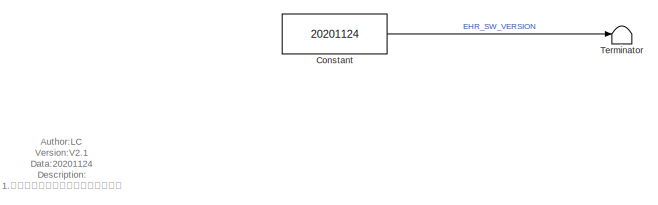
[diagram: root canvas - part 1/9, top left region]
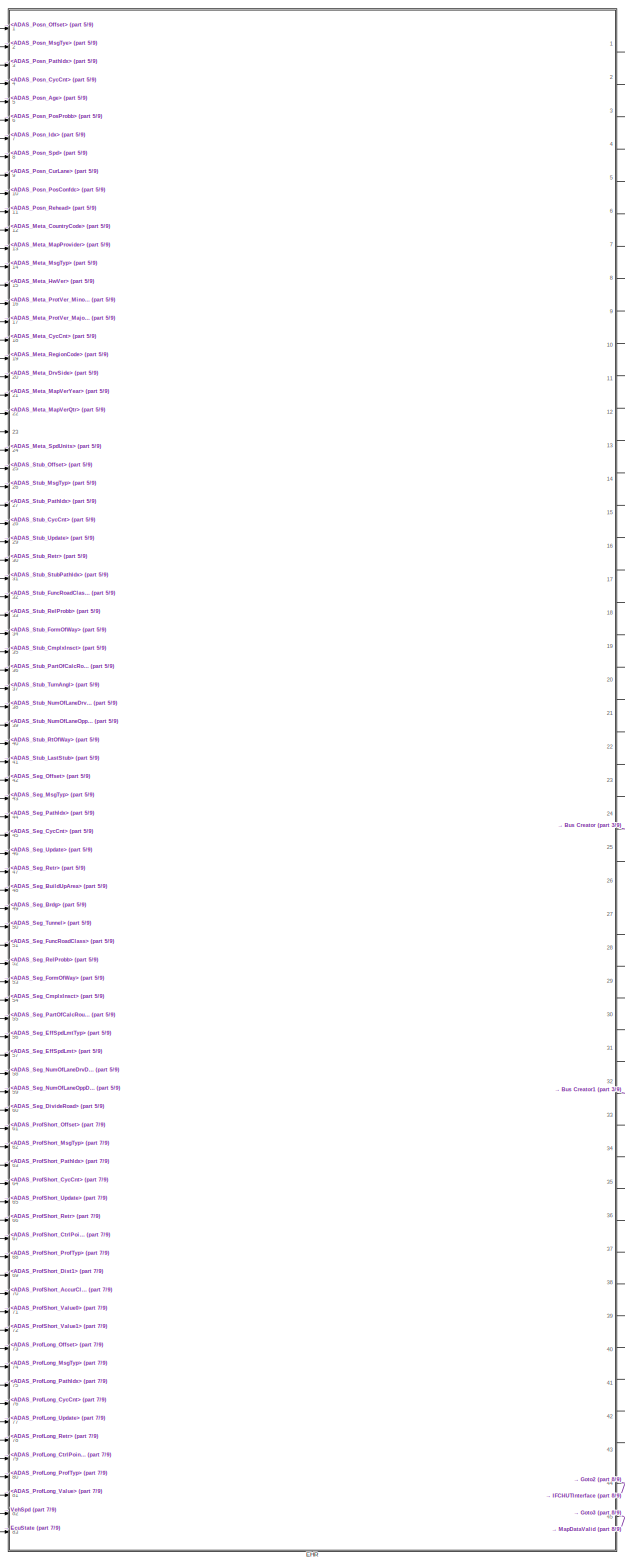
[diagram: root canvas - part 2/9, center side, full height]
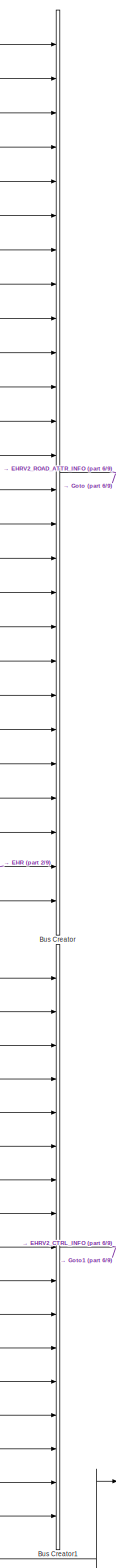
[diagram: root canvas - part 3/9, middle right region]
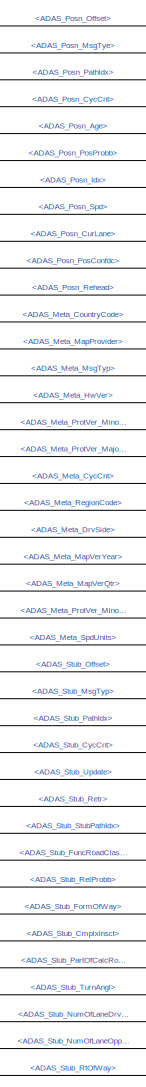
[diagram: root canvas - part 4/9, top left region]
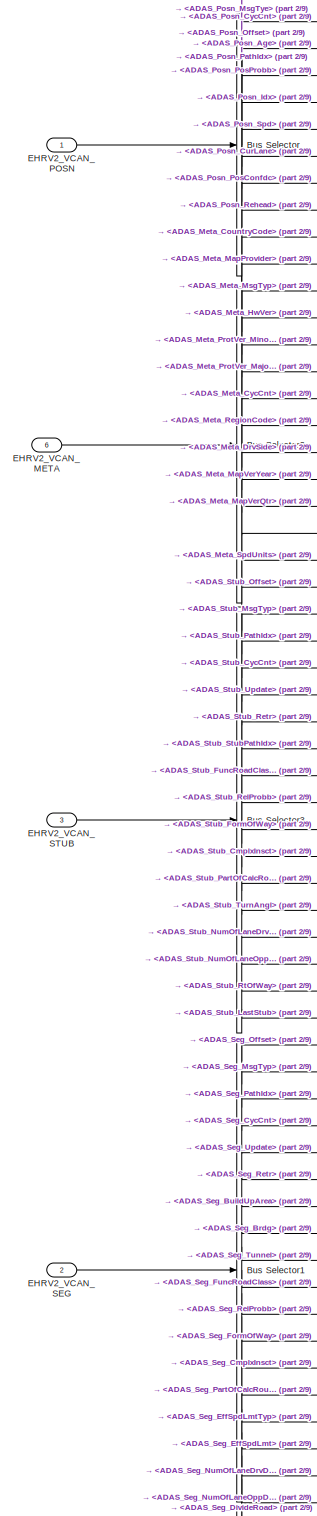
[diagram: root canvas - part 5/9, middle left region]
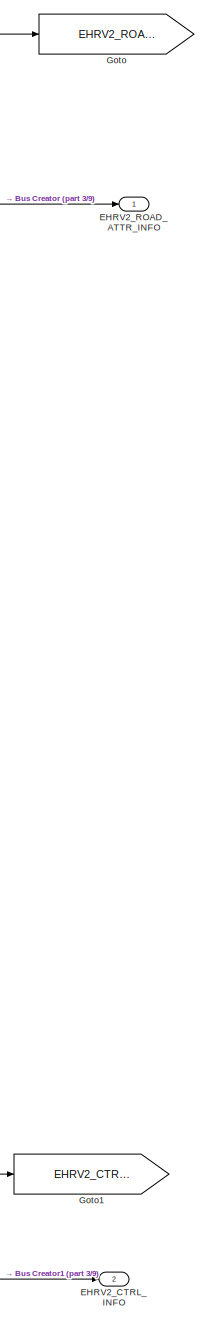
[diagram: root canvas - part 6/9, middle right region]
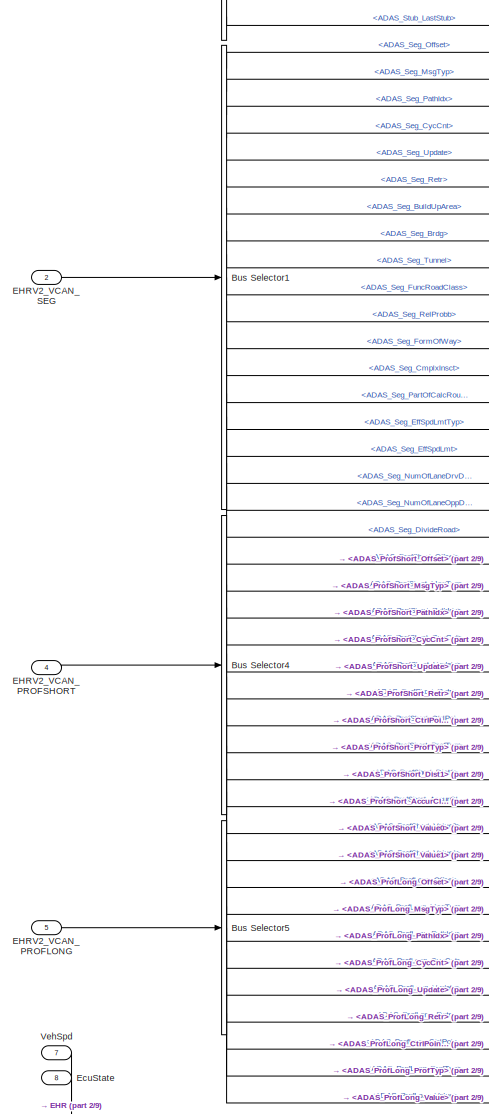
[diagram: root canvas - part 7/9, middle left region]
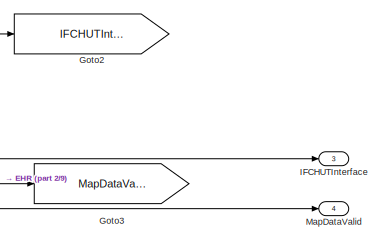
[diagram: root canvas - part 8/9, bottom right region]
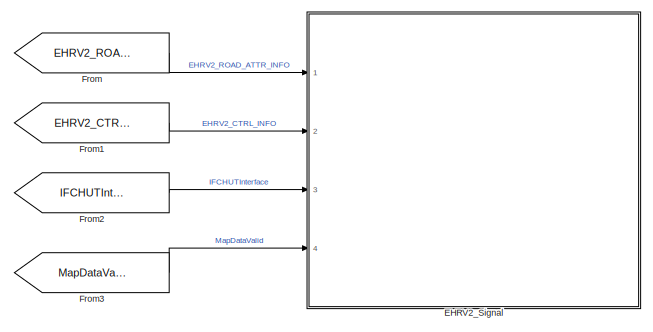
[diagram: root canvas - part 9/9, bottom left region]
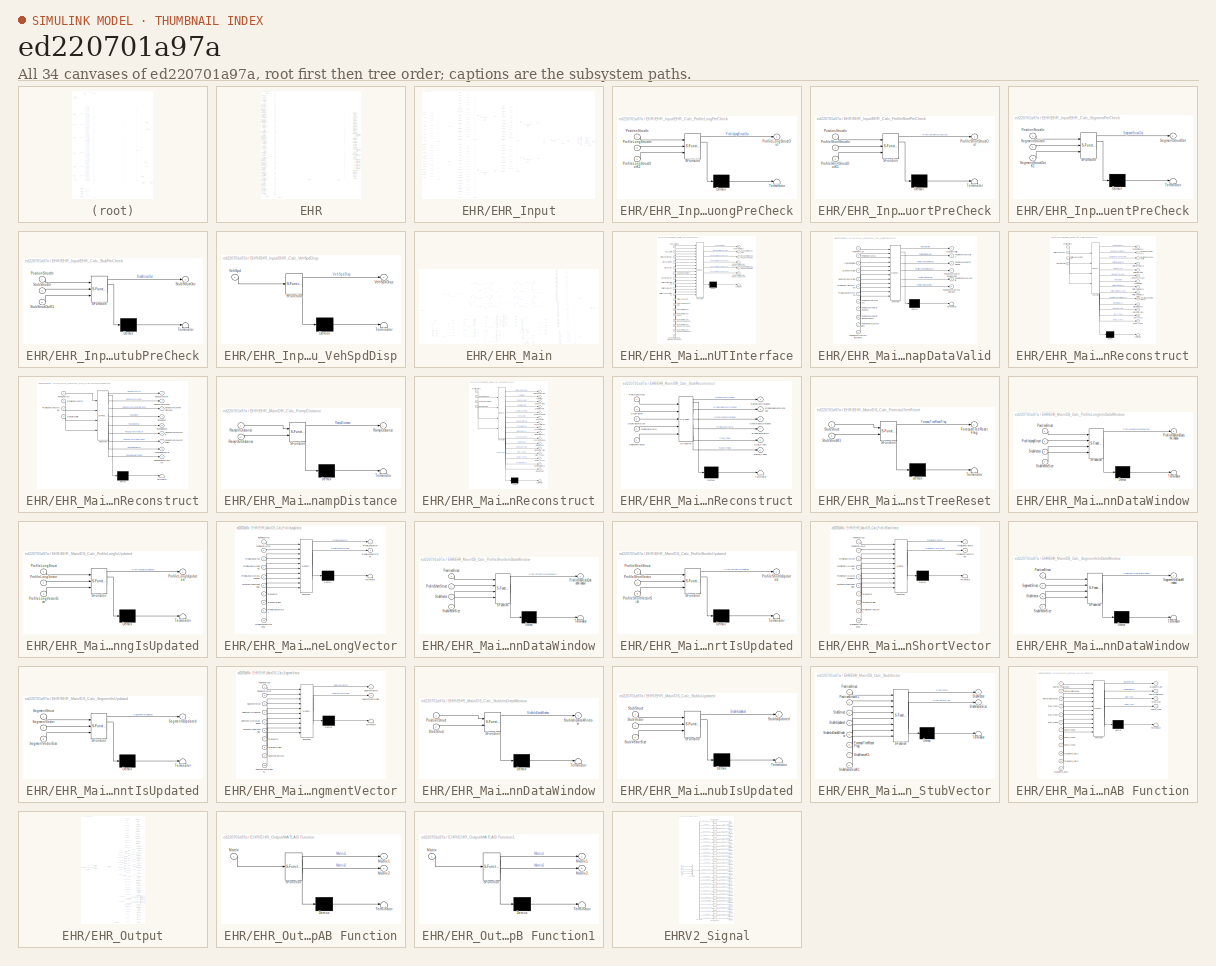
[diagram: thumbnail index - all 34 canvases of the model, root first then tree order]
MODEL slx_ed220701a97a
KIND model
CONFIG AbsTol = auto
CONFIG EnableMultiTasking = off
CONFIG FixedStep = auto
CONFIG InitFcn = , if any(exist('dsmpb_private', 'file') ~= 0), dsmpb_private('dsmpb_mdlclblib', 'Init', bdroot); end,\n
CONFIG MaxStep = auto
CONFIG MinStep = auto
CONFIG PostLoadFcn = if any(exist('dsrtsu_mdlpostloadfcn', 'file') ~= 0), dsrtsu_mdlpostloadfcn('Execute', bdroot); end
CONFIG RelTol = 1e-3
CONFIG SampleTimeConstraint = Unconstrained
CONFIG SolverName = FixedStepAuto
CONFIG StartTime = 0.0
CONFIG StopTime = Inf
BLOCK [BusCreator] Bus Creator
  DisplayOption = bar
  InheritFromInputs = on
  Inputs = 26
  Ports = [26, 1]
BLOCK [BusCreator] Bus Creator1
  DisplayOption = bar
  InheritFromInputs = on
  Inputs = 17
  Ports = [17, 1]
BLOCK [BusSelector] Bus Selector
  OutputSignals = ADAS_Posn_Offset,ADAS_Posn_MsgTye,ADAS_Posn_Pathldx,ADAS_Posn_CycCnt,ADAS_Posn_Age,ADAS_Posn_PosProbb,ADAS_Posn_Idx,ADAS_Posn_Spd,ADAS_Posn_CurLane,ADAS_Posn_PosConfdc,ADAS_Posn_Rehead
  Ports = [1, 11]
BLOCK [BusSelector] Bus Selector1
  OutputSignals = ADAS_Seg_Offset,ADAS_Seg_MsgTyp,ADAS_Seg_PathIdx,ADAS_Seg_CycCnt,ADAS_Seg_Update,ADAS_Seg_Retr,ADAS_Seg_BuildUpArea,ADAS_Seg_Brdg,ADAS_Seg_Tunnel,ADAS_Seg_FuncRoadClass,ADAS_Seg_RelProbb,ADAS_Seg_FormOfWay,ADAS_Seg_CmplxInsct,ADAS_Seg_PartOfCalcRoute,ADAS_Seg_EffSpdLmtTyp,ADAS_Seg_EffSpdLmt,ADAS_Seg_NumOfLaneDrvDir,ADAS_Seg_NumOfLaneOppDir,ADAS_Seg_DivideRoad
  Ports = [1, 19]
BLOCK [BusSelector] Bus Selector2
  OutputSignals = ADAS_Meta_CountryCode,ADAS_Meta_MapProvider,ADAS_Meta_MsgTyp,ADAS_Meta_HwVer,ADAS_Meta_ProtVer_MinorSub,ADAS_Meta_ProtVer_Major,ADAS_Meta_CycCnt,ADAS_Meta_RegionCode,ADAS_Meta_DrvSide,ADAS_Meta_MapVerYear,ADAS_Meta_MapVerQtr,ADAS_Meta_ProtVer_Minor,ADAS_Meta_SpdUnits
  Ports = [1, 13]
BLOCK [BusSelector] Bus Selector3
  OutputSignals = ADAS_Stub_Offset,ADAS_Stub_MsgTyp,ADAS_Stub_PathIdx,ADAS_Stub_CycCnt,ADAS_Stub_Update,ADAS_Stub_Retr,ADAS_Stub_StubPathIdx,ADAS_Stub_FuncRoadClass,ADAS_Stub_RelProbb,ADAS_Stub_FormOfWay,ADAS_Stub_CmplxInsct,ADAS_Stub_PartOfCalcRoute,ADAS_Stub_TurnAngl,ADAS_Stub_NumOfLaneDrvDir,ADAS_Stub_NumOfLaneOppDir,ADAS_Stub_RtOfWay,ADAS_Stub_LastStub
  Ports = [1, 17]
BLOCK [BusSelector] Bus Selector4
  OutputSignals = ADAS_ProfShort_Offset,ADAS_ProfShort_MsgTyp,ADAS_ProfShort_PathIdx,ADAS_ProfShort_CycCnt,ADAS_ProfShort_Update,ADAS_ProfShort_Retr,ADAS_ProfShort_CtrlPoint,ADAS_ProfShort_ProfTyp,ADAS_ProfShort_Dist1,ADAS_ProfShort_AccurClass,ADAS_ProfShort_Value0,ADAS_ProfShort_Value1
  Ports = [1, 12]
BLOCK [BusSelector] Bus Selector5
  OutputSignals = ADAS_ProfLong_Offset,ADAS_ProfLong_MsgTyp,ADAS_ProfLong_PathIdx,ADAS_ProfLong_CycCnt,ADAS_ProfLong_Update,ADAS_ProfLong_Retr,ADAS_ProfLong_CtrlPoint,ADAS_ProfLong_ProfTyp,ADAS_ProfLong_Value
  Ports = [1, 9]
BLOCK [Constant] Constant
  OutDataTypeStr = uint32
  Value = 20201124
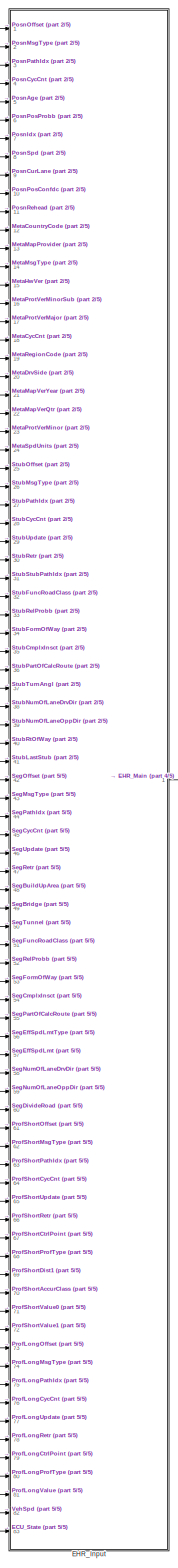
[diagram: EHR - part 1/5, left side, full height]
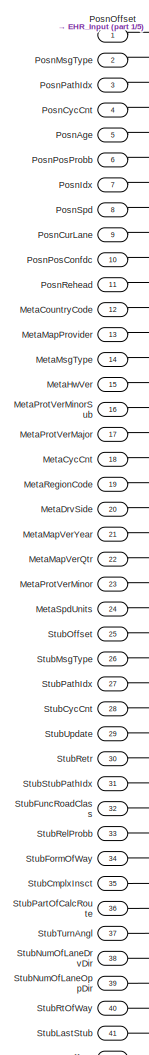
[diagram: EHR - part 2/5, top left region]
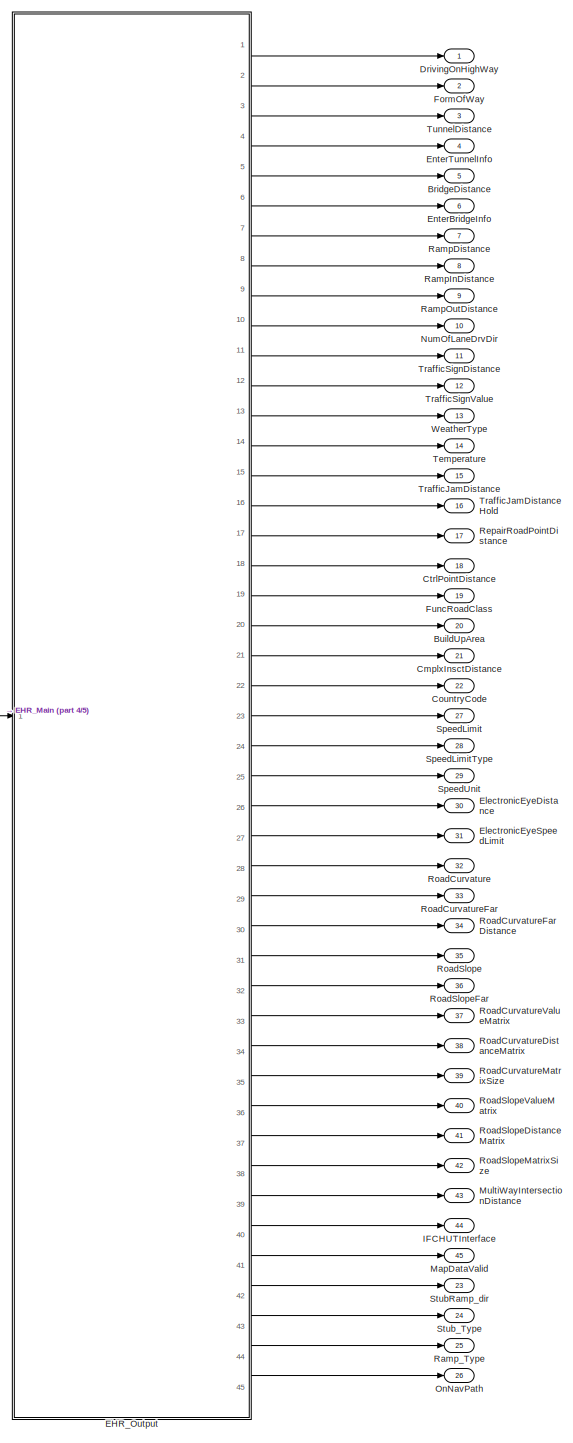
[diagram: EHR - part 3/5, middle right region]
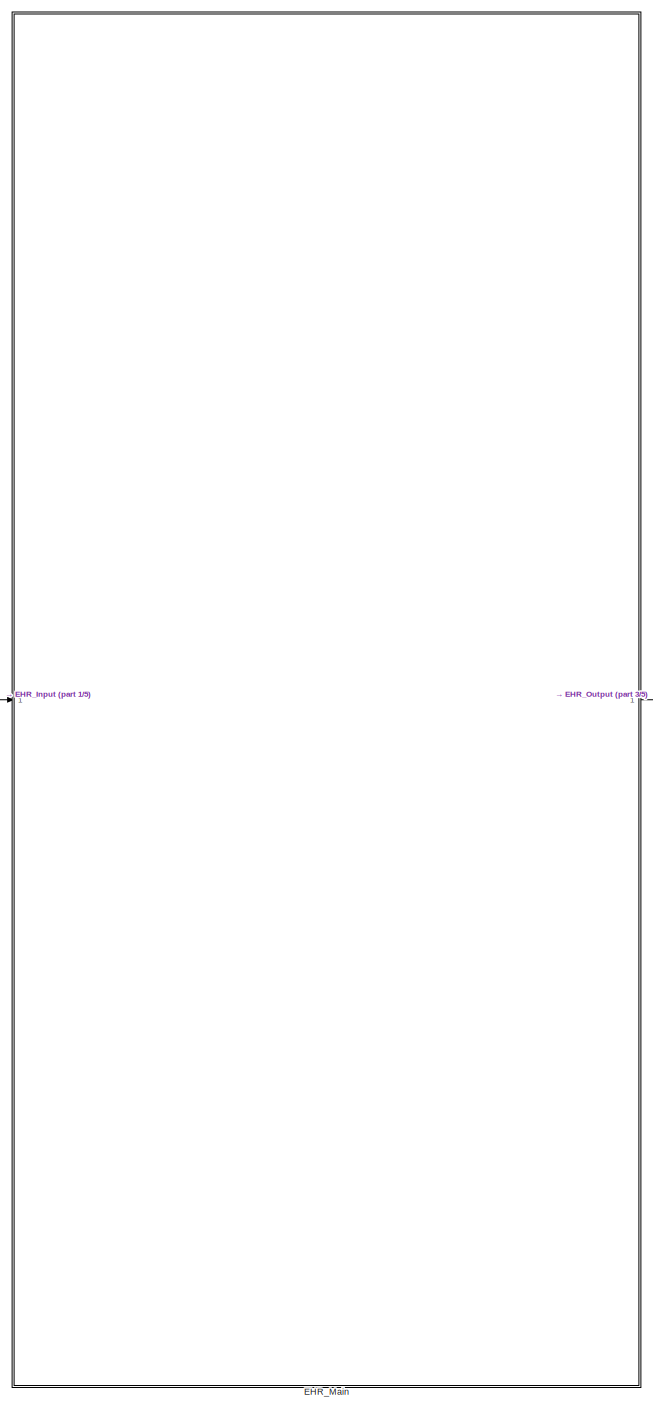
[diagram: EHR - part 4/5, central region]
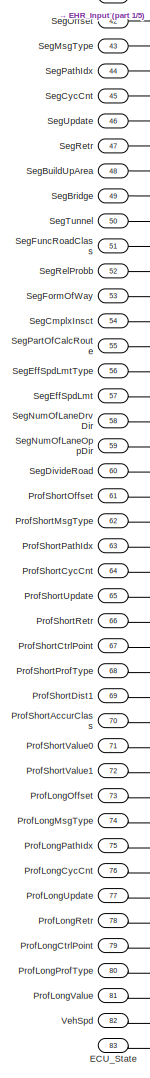
[diagram: EHR - part 5/5, bottom left region]
BLOCK [SubSystem] EHR
  Ports = [83, 45]
  RequestExecContextInheritance = off
BLOCK [Outport] EHR/BridgeDistance
  OutDataTypeStr = uint16
  Port = 5
  PortDimensions = 1
BLOCK [Outport] EHR/BuildUpArea
  OutDataTypeStr = uint8
  Port = 20
  PortDimensions = 1
BLOCK [Outport] EHR/CmplxInsctDistance
  OutDataTypeStr = uint16
  Port = 21
  PortDimensions = 1
BLOCK [Outport] EHR/CountryCode
  OutDataTypeStr = uint16
  Port = 22
  PortDimensions = 1
BLOCK [Outport] EHR/CtrlPointDistance
  OutDataTypeStr = uint16
  Port = 18
  PortDimensions = 1
BLOCK [Outport] EHR/DrivingOnHighWay
  OutDataTypeStr = uint8
  PortDimensions = 1
BLOCK [Inport] EHR/ECU_State
  OutDataTypeStr = uint8
  Port = 83
  PortDimensions = 1
BLOCK [SubSystem] EHR/EHR_Input
  Ports = [83, 1]
  RequestExecContextInheritance = off
BLOCK [BusCreator] EHR/EHR_Input/Bus Creator
  DisplayOption = bar
  InheritFromInputs = on
  Inputs = 7
  Ports = [7, 1]
BLOCK [BusCreator] EHR/EHR_Input/Bus Creator1
  DisplayOption = bar
  InheritFromInputs = on
  Inputs = 11
  NonVirtualBus = on
  OutDataTypeStr = Bus: PositionStruct
  Ports = [11, 1]
BLOCK [BusCreator] EHR/EHR_Input/Bus Creator2
  DisplayOption = bar
  InheritFromInputs = on
  Inputs = 20
  NonVirtualBus = on
  OutDataTypeStr = Bus: SegmentStruct
  Ports = [20, 1]
BLOCK [BusCreator] EHR/EHR_Input/Bus Creator3
  DisplayOption = bar
  InheritFromInputs = on
  Inputs = 18
  NonVirtualBus = on
  OutDataTypeStr = Bus: StubStruct
  Ports = [18, 1]
BLOCK [BusCreator] EHR/EHR_Input/Bus Creator4
  DisplayOption = bar
  InheritFromInputs = on
  Inputs = 13
  NonVirtualBus = on
  OutDataTypeStr = Bus: ProfileShortStruct
  Ports = [13, 1]
BLOCK [BusCreator] EHR/EHR_Input/Bus Creator5
  DisplayOption = bar
  InheritFromInputs = on
  Inputs = 10
  NonVirtualBus = on
  OutDataTypeStr = Bus: ProfileLongStruct
  Ports = [10, 1]
BLOCK [BusCreator] EHR/EHR_Input/Bus Creator6
  DisplayOption = bar
  InheritFromInputs = on
  Inputs = 13
  NonVirtualBus = on
  OutDataTypeStr = Bus: MetaDataStruct
  Ports = [13, 1]
BLOCK [BusCreator] EHR/EHR_Input/Bus Creator8
  DisplayOption = bar
  InheritFromInputs = on
  Inputs = 2
  Ports = [2, 1]
BLOCK [Inport] EHR/EHR_Input/ECU_State
  Port = 83
BLOCK [SubSystem] EHR/EHR_Input/EHR_Calc_ProfileLongPreCheck
  ErrorFcn = Stateflow.Translate.translate
  PermitHierarchicalResolution = ExplicitOnly
  Ports = [3, 1]
  RequestExecContextInheritance = off
  SFBlockType = MATLAB Function
  TreatAsAtomicUnit = on
BLOCK [Demux] EHR/EHR_Input/EHR_Calc_ProfileLongPreCheck/ Demux 
  Outputs = 1
  Ports = [1, 1]
BLOCK [S-Function] EHR/EHR_Input/EHR_Calc_ProfileLongPreCheck/ SFunction 
  EnableBusSupport = on
  FunctionName = sf_sfun
  Parameters = FORWARD_LOOKING_DISTANCE_LIMIT,MSG_TYPE_PROFILE_LONG,OFFSET_INVALID,OFFSET_MAX,REAR_LOOKING_DISTANCE_LIMIT
  PortCounts = [3 2]
  Ports = [3, 2]
  SFcnIsStateOwnerBlock = off
  SFunctionDeploymentMode = off
  Tag = Stateflow S-Function 49
BLOCK [Terminator] EHR/EHR_Input/EHR_Calc_ProfileLongPreCheck/ Terminator 
BLOCK [Inport] EHR/EHR_Input/EHR_Calc_ProfileLongPreCheck/PositionStructIn
BLOCK [Inport] EHR/EHR_Input/EHR_Calc_ProfileLongPreCheck/ProfileLongStructIn
  Port = 2
BLOCK [Outport] EHR/EHR_Input/EHR_Calc_ProfileLongPreCheck/ProfileLongStructOut
BLOCK [Inport] EHR/EHR_Input/EHR_Calc_ProfileLongPreCheck/ProfileLongStructOutK1
  Port = 3
BLOCK [SubSystem] EHR/EHR_Input/EHR_Calc_ProfileShortPreCheck
  ErrorFcn = Stateflow.Translate.translate
  PermitHierarchicalResolution = ExplicitOnly
  Ports = [3, 1]
  RequestExecContextInheritance = off
  SFBlockType = MATLAB Function
  TreatAsAtomicUnit = on
BLOCK [Demux] EHR/EHR_Input/EHR_Calc_ProfileShortPreCheck/ Demux 
  Outputs = 1
  Ports = [1, 1]
BLOCK [S-Function] EHR/EHR_Input/EHR_Calc_ProfileShortPreCheck/ SFunction 
  EnableBusSupport = on
  FunctionName = sf_sfun
  Parameters = FORWARD_LOOKING_DISTANCE_LIMIT,MSG_TYPE_PROFILE_SHORT,OFFSET_INVALID,OFFSET_MAX,REAR_LOOKING_DISTANCE_LIMIT
  PortCounts = [3 2]
  Ports = [3, 2]
  SFcnIsStateOwnerBlock = off
  SFunctionDeploymentMode = off
  Tag = Stateflow S-Function 77
BLOCK [Terminator] EHR/EHR_Input/EHR_Calc_ProfileShortPreCheck/ Terminator 
BLOCK [Inport] EHR/EHR_Input/EHR_Calc_ProfileShortPreCheck/PositionStructIn
BLOCK [Inport] EHR/EHR_Input/EHR_Calc_ProfileShortPreCheck/ProfileShortStructIn
  Port = 2
BLOCK [Outport] EHR/EHR_Input/EHR_Calc_ProfileShortPreCheck/ProfileShortStructOut
BLOCK [Inport] EHR/EHR_Input/EHR_Calc_ProfileShortPreCheck/ProfileShortStructOutK1
  Port = 3
BLOCK [SubSystem] EHR/EHR_Input/EHR_Calc_SegmentPreCheck
  ErrorFcn = Stateflow.Translate.translate
  PermitHierarchicalResolution = ExplicitOnly
  Ports = [3, 1]
  RequestExecContextInheritance = off
  SFBlockType = MATLAB Function
  TreatAsAtomicUnit = on
BLOCK [Demux] EHR/EHR_Input/EHR_Calc_SegmentPreCheck/ Demux 
  Outputs = 1
  Ports = [1, 1]
BLOCK [S-Function] EHR/EHR_Input/EHR_Calc_SegmentPreCheck/ SFunction 
  EnableBusSupport = on
  FunctionName = sf_sfun
  Parameters = FORWARD_LOOKING_DISTANCE_LIMIT,MSG_TYPE_SEGMENT,OFFSET_INVALID,OFFSET_MAX,REAR_LOOKING_DISTANCE_LIMIT
  PortCounts = [3 2]
  Ports = [3, 2]
  SFcnIsStateOwnerBlock = off
  SFunctionDeploymentMode = off
  Tag = Stateflow S-Function 78
BLOCK [Terminator] EHR/EHR_Input/EHR_Calc_SegmentPreCheck/ Terminator 
BLOCK [Inport] EHR/EHR_Input/EHR_Calc_SegmentPreCheck/PositionStructIn
BLOCK [Inport] EHR/EHR_Input/EHR_Calc_SegmentPreCheck/SegmentStructIn
  Port = 2
BLOCK [Outport] EHR/EHR_Input/EHR_Calc_SegmentPreCheck/SegmentStructOut
BLOCK [Inport] EHR/EHR_Input/EHR_Calc_SegmentPreCheck/SegmentStructOutK1
  Port = 3
BLOCK [SubSystem] EHR/EHR_Input/EHR_Calc_StubPreCheck
  ErrorFcn = Stateflow.Translate.translate
  PermitHierarchicalResolution = ExplicitOnly
  Ports = [3, 1]
  RequestExecContextInheritance = off
  SFBlockType = MATLAB Function
  TreatAsAtomicUnit = on
BLOCK [Demux] EHR/EHR_Input/EHR_Calc_StubPreCheck/ Demux 
  Outputs = 1
  Ports = [1, 1]
BLOCK [S-Function] EHR/EHR_Input/EHR_Calc_StubPreCheck/ SFunction 
  EnableBusSupport = on
  FunctionName = sf_sfun
  Parameters = FORWARD_LOOKING_DISTANCE_LIMIT,MSG_TYPE_STUB,OFFSET_INVALID,OFFSET_MAX,REAR_LOOKING_DISTANCE_LIMIT
  PortCounts = [3 2]
  Ports = [3, 2]
  SFcnIsStateOwnerBlock = off
  SFunctionDeploymentMode = off
  Tag = Stateflow S-Function 152
BLOCK [Terminator] EHR/EHR_Input/EHR_Calc_StubPreCheck/ Terminator 
BLOCK [Inport] EHR/EHR_Input/EHR_Calc_StubPreCheck/PositionStructIn
BLOCK [Inport] EHR/EHR_Input/EHR_Calc_StubPreCheck/StubStructIn
  Port = 2
BLOCK [Outport] EHR/EHR_Input/EHR_Calc_StubPreCheck/StubStructOut
BLOCK [Inport] EHR/EHR_Input/EHR_Calc_StubPreCheck/StubStructOutK1
  Port = 3
BLOCK [SubSystem] EHR/EHR_Input/EHR_Calc_VehSpdDisp
  ErrorFcn = Stateflow.Translate.translate
  PermitHierarchicalResolution = ExplicitOnly
  Ports = [1, 1]
  RequestExecContextInheritance = off
  SFBlockType = MATLAB Function
  TreatAsAtomicUnit = on
BLOCK [Demux] EHR/EHR_Input/EHR_Calc_VehSpdDisp/ Demux 
  Outputs = 1
  Ports = [1, 1]
BLOCK [S-Function] EHR/EHR_Input/EHR_Calc_VehSpdDisp/ SFunction 
  EnableBusSupport = on
  FunctionName = sf_sfun
  PortCounts = [1 2]
  Ports = [1, 2]
  SFcnIsStateOwnerBlock = off
  SFunctionDeploymentMode = off
  Tag = Stateflow S-Function 153
BLOCK [Terminator] EHR/EHR_Input/EHR_Calc_VehSpdDisp/ Terminator 
BLOCK [Inport] EHR/EHR_Input/EHR_Calc_VehSpdDisp/VehSpd
BLOCK [Outport] EHR/EHR_Input/EHR_Calc_VehSpdDisp/VehSpdDisp
BLOCK [Outport] EHR/EHR_Input/EHR_InputData
BLOCK [From] EHR/EHR_Input/From
  GotoTag = PositionStruct
BLOCK [From] EHR/EHR_Input/From1
  GotoTag = MetaDataStruct
BLOCK [From] EHR/EHR_Input/From10
  GotoTag = PositionStruct
BLOCK [From] EHR/EHR_Input/From11
  GotoTag = PositionStruct
BLOCK [From] EHR/EHR_Input/From2
  GotoTag = StubStruct
BLOCK [From] EHR/EHR_Input/From3
  GotoTag = SegmentStruct
BLOCK [From] EHR/EHR_Input/From4
  GotoTag = ProfileShortStruct
BLOCK [From] EHR/EHR_Input/From5
  GotoTag = ProfileLongStruct
BLOCK [From] EHR/EHR_Input/From6
  GotoTag = OtherMessageStruct
BLOCK [From] EHR/EHR_Input/From8
  GotoTag = PositionStruct
BLOCK [From] EHR/EHR_Input/From9
  GotoTag = PositionStruct
BLOCK [Goto] EHR/EHR_Input/Goto
  GotoTag = PositionStruct
BLOCK [Goto] EHR/EHR_Input/Goto1
  GotoTag = MetaDataStruct
BLOCK [Goto] EHR/EHR_Input/Goto2
  GotoTag = StubStruct
BLOCK [Goto] EHR/EHR_Input/Goto3
  GotoTag = SegmentStruct
BLOCK [Goto] EHR/EHR_Input/Goto4
  GotoTag = ProfileShortStruct
BLOCK [Goto] EHR/EHR_Input/Goto5
  GotoTag = ProfileLongStruct
BLOCK [Goto] EHR/EHR_Input/Goto6
  GotoTag = OtherMessageStruct
BLOCK [Inport] EHR/EHR_Input/MetaCountryCode
  Port = 12
BLOCK [Inport] EHR/EHR_Input/MetaCycCnt
  Port = 18
BLOCK [Inport] EHR/EHR_Input/MetaDrvSide
  Port = 20
BLOCK [Inport] EHR/EHR_Input/MetaHwVer
  Port = 15
BLOCK [Inport] EHR/EHR_Input/MetaMapProvider
  Port = 13
BLOCK [Inport] EHR/EHR_Input/MetaMapVerQtr
  Port = 22
BLOCK [Inport] EHR/EHR_Input/MetaMapVerYear
  Port = 21
BLOCK [Inport] EHR/EHR_Input/MetaMsgType
  Port = 14
BLOCK [Inport] EHR/EHR_Input/MetaProtVerMajor
  Port = 17
BLOCK [Inport] EHR/EHR_Input/MetaProtVerMinor
  Port = 23
BLOCK [Inport] EHR/EHR_Input/MetaProtVerMinorSub
  Port = 16
BLOCK [Inport] EHR/EHR_Input/MetaRegionCode
  Port = 19
BLOCK [Inport] EHR/EHR_Input/MetaSpdUnits
  Port = 24
BLOCK [Inport] EHR/EHR_Input/PosnAge
  Port = 5
BLOCK [Inport] EHR/EHR_Input/PosnCurLane
  Port = 9
BLOCK [Inport] EHR/EHR_Input/PosnCycCnt
  Port = 4
BLOCK [Inport] EHR/EHR_Input/PosnIdx
  Port = 7
BLOCK [Inport] EHR/EHR_Input/PosnMsgType
  Port = 2
BLOCK [Inport] EHR/EHR_Input/PosnOffset
BLOCK [Inport] EHR/EHR_Input/PosnPathIdx
  Port = 3
BLOCK [Inport] EHR/EHR_Input/PosnPosConfdc
  Port = 10
BLOCK [Inport] EHR/EHR_Input/PosnPosProbb
  Port = 6
BLOCK [Inport] EHR/EHR_Input/PosnRehead
  Port = 11
BLOCK [Inport] EHR/EHR_Input/PosnSpd
  Port = 8
BLOCK [Inport] EHR/EHR_Input/ProfLongCtrlPoint
  Port = 79
BLOCK [Inport] EHR/EHR_Input/ProfLongCycCnt
  Port = 76
BLOCK [Inport] EHR/EHR_Input/ProfLongMsgType
  Port = 74
BLOCK [Inport] EHR/EHR_Input/ProfLongOffset
  Port = 73
BLOCK [Inport] EHR/EHR_Input/ProfLongPathIdx
  Port = 75
BLOCK [Inport] EHR/EHR_Input/ProfLongProfType
  Port = 80
BLOCK [Constant] EHR/EHR_Input/ProfLongRelativeOffset
  OutDataTypeStr = int16
  Value = 0
BLOCK [Inport] EHR/EHR_Input/ProfLongRetr
  Port = 78
BLOCK [Inport] EHR/EHR_Input/ProfLongUpdate
  Port = 77
BLOCK [Inport] EHR/EHR_Input/ProfLongValue
  Port = 81
BLOCK [Inport] EHR/EHR_Input/ProfShortAccurClass
  Port = 70
BLOCK [Inport] EHR/EHR_Input/ProfShortCtrlPoint
  Port = 67
BLOCK [Inport] EHR/EHR_Input/ProfShortCycCnt
  Port = 64
BLOCK [Inport] EHR/EHR_Input/ProfShortDist1
  Port = 69
BLOCK [Inport] EHR/EHR_Input/ProfShortMsgType
  Port = 62
BLOCK [Inport] EHR/EHR_Input/ProfShortOffset
  Port = 61
BLOCK [Inport] EHR/EHR_Input/ProfShortPathIdx
  Port = 63
BLOCK [Inport] EHR/EHR_Input/ProfShortProfType
  Port = 68
BLOCK [Constant] EHR/EHR_Input/ProfShortRelativeOffset
  OutDataTypeStr = int16
  Value = 0
BLOCK [Inport] EHR/EHR_Input/ProfShortRetr
  Port = 66
BLOCK [Inport] EHR/EHR_Input/ProfShortUpdate
  Port = 65
BLOCK [Inport] EHR/EHR_Input/ProfShortValue0
  Port = 71
BLOCK [Inport] EHR/EHR_Input/ProfShortValue1
  Port = 72
BLOCK [Inport] EHR/EHR_Input/SegBridge
  Port = 49
BLOCK [Inport] EHR/EHR_Input/SegBuildUpArea
  Port = 48
BLOCK [Inport] EHR/EHR_Input/SegCmplxInsct
  Port = 54
BLOCK [Inport] EHR/EHR_Input/SegCycCnt
  Port = 45
BLOCK [Inport] EHR/EHR_Input/SegDivideRoad
  Port = 60
BLOCK [Inport] EHR/EHR_Input/SegEffSpdLmt
  Port = 57
BLOCK [Inport] EHR/EHR_Input/SegEffSpdLmtType
  Port = 56
BLOCK [Inport] EHR/EHR_Input/SegFormOfWay
  Port = 53
BLOCK [Inport] EHR/EHR_Input/SegFuncRoadClass
  Port = 51
BLOCK [Inport] EHR/EHR_Input/SegMsgType
  Port = 43
BLOCK [Inport] EHR/EHR_Input/SegNumOfLaneDrvDir
  Port = 58
BLOCK [Inport] EHR/EHR_Input/SegNumOfLaneOppDir
  Port = 59
BLOCK [Inport] EHR/EHR_Input/SegOffset
  Port = 42
BLOCK [Inport] EHR/EHR_Input/SegPartOfCalcRoute
  Port = 55
BLOCK [Inport] EHR/EHR_Input/SegPathIdx
  Port = 44
BLOCK [Inport] EHR/EHR_Input/SegRelProbb
  Port = 52
BLOCK [Constant] EHR/EHR_Input/SegRelativeOffset
  OutDataTypeStr = int16
  Value = 0
BLOCK [Inport] EHR/EHR_Input/SegRetr
  Port = 47
BLOCK [Inport] EHR/EHR_Input/SegTunnel
  Port = 50
BLOCK [Inport] EHR/EHR_Input/SegUpdate
  Port = 46
BLOCK [Inport] EHR/EHR_Input/StubCmplxInsct
  Port = 35
BLOCK [Inport] EHR/EHR_Input/StubCycCnt
  Port = 28
BLOCK [Inport] EHR/EHR_Input/StubFormOfWay
  Port = 34
BLOCK [Inport] EHR/EHR_Input/StubFuncRoadClass
  Port = 32
BLOCK [Inport] EHR/EHR_Input/StubLastStub
  Port = 41
BLOCK [Inport] EHR/EHR_Input/StubMsgType
  Port = 26
BLOCK [Inport] EHR/EHR_Input/StubNumOfLaneDrvDir
  Port = 38
BLOCK [Inport] EHR/EHR_Input/StubNumOfLaneOppDir
  Port = 39
BLOCK [Inport] EHR/EHR_Input/StubOffset
  Port = 25
BLOCK [Inport] EHR/EHR_Input/StubPartOfCalcRoute
  Port = 36
BLOCK [Inport] EHR/EHR_Input/StubPathIdx
  Port = 27
BLOCK [Inport] EHR/EHR_Input/StubRelProbb
  Port = 33
BLOCK [Constant] EHR/EHR_Input/StubRelativeOffset
  OutDataTypeStr = int16
  Value = 0
BLOCK [Inport] EHR/EHR_Input/StubRetr
  Port = 30
BLOCK [Inport] EHR/EHR_Input/StubRtOfWay
  Port = 40
BLOCK [Inport] EHR/EHR_Input/StubStubPathIdx
  Port = 31
BLOCK [Inport] EHR/EHR_Input/StubTurnAngl
  Port = 37
BLOCK [Inport] EHR/EHR_Input/StubUpdate
  Port = 29
BLOCK [UnitDelay] EHR/EHR_Input/Unit Delay
  HasFrameUpgradeWarning = on
  SampleTime = -1
BLOCK [UnitDelay] EHR/EHR_Input/Unit Delay1
  HasFrameUpgradeWarning = on
  SampleTime = -1
BLOCK [UnitDelay] EHR/EHR_Input/Unit Delay2
  HasFrameUpgradeWarning = on
  SampleTime = -1
BLOCK [UnitDelay] EHR/EHR_Input/Unit Delay3
  HasFrameUpgradeWarning = on
  SampleTime = -1
BLOCK [Inport] EHR/EHR_Input/VehSpd
  Port = 82
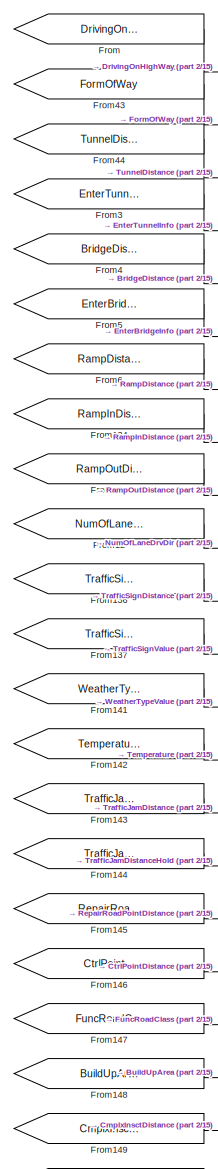
[diagram: EHR/EHR_Main - part 1/15, top right region]
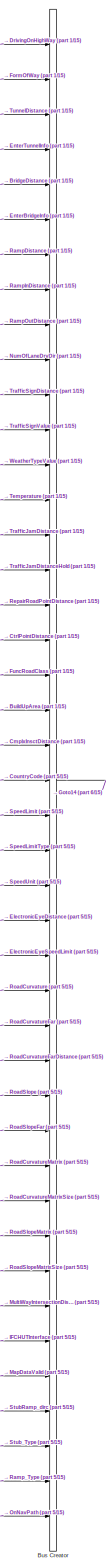
[diagram: EHR/EHR_Main - part 2/15, right side, full height]
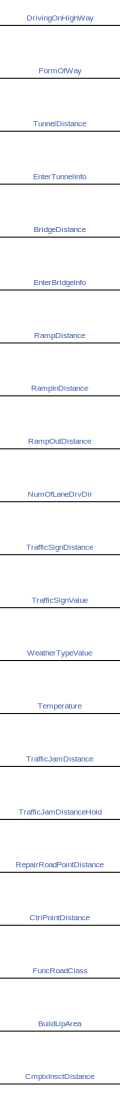
[diagram: EHR/EHR_Main - part 3/15, top right region]
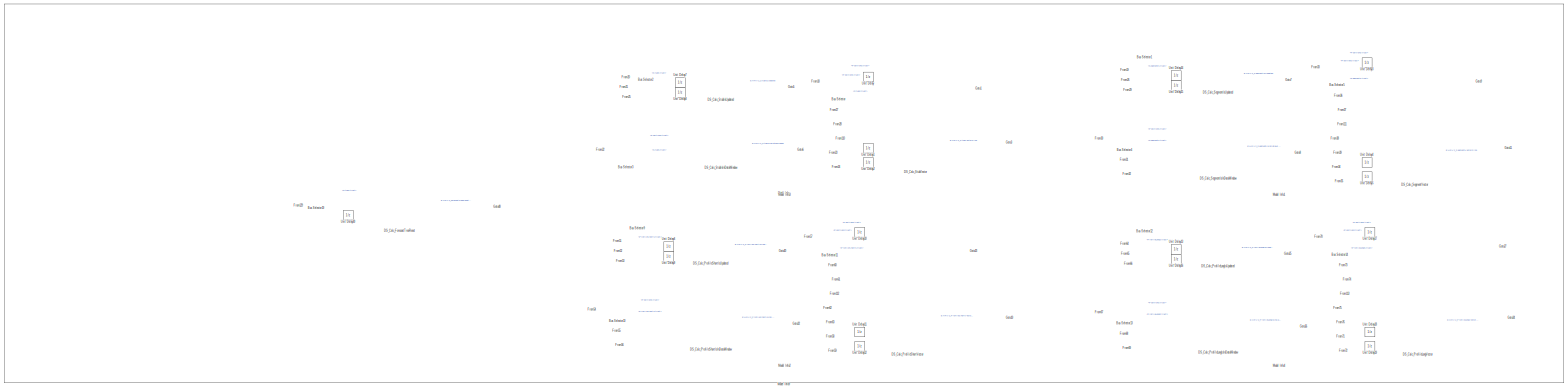
[diagram: EHR/EHR_Main - part 4/15, full width, top band]
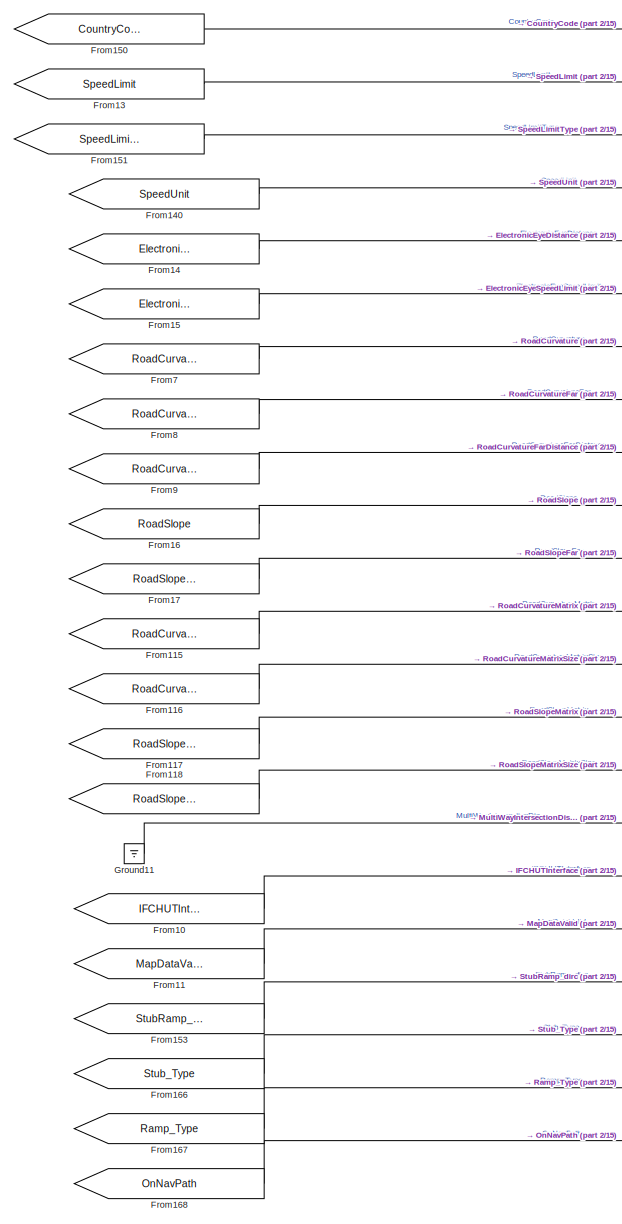
[diagram: EHR/EHR_Main - part 5/15, middle right region]
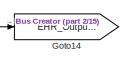
[diagram: EHR/EHR_Main - part 6/15, middle right region]
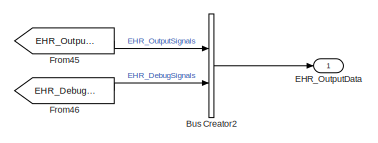
[diagram: EHR/EHR_Main - part 7/15, middle right region]
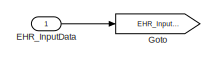
[diagram: EHR/EHR_Main - part 8/15, middle left region]
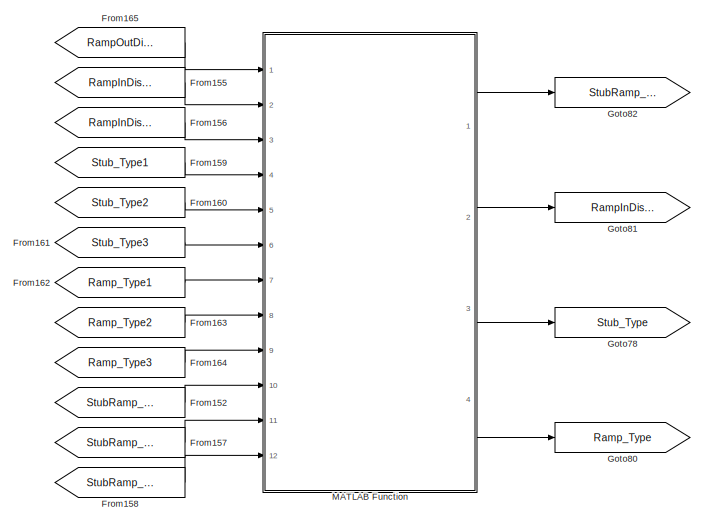
[diagram: EHR/EHR_Main - part 9/15, bottom center region]
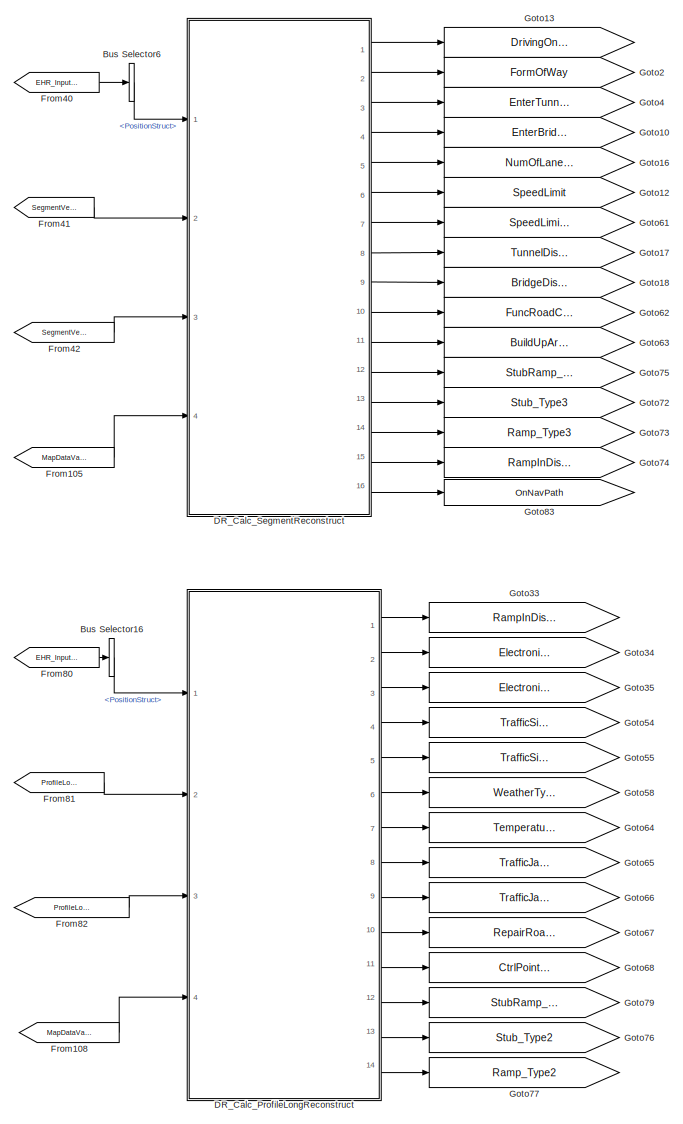
[diagram: EHR/EHR_Main - part 10/15, bottom center region]
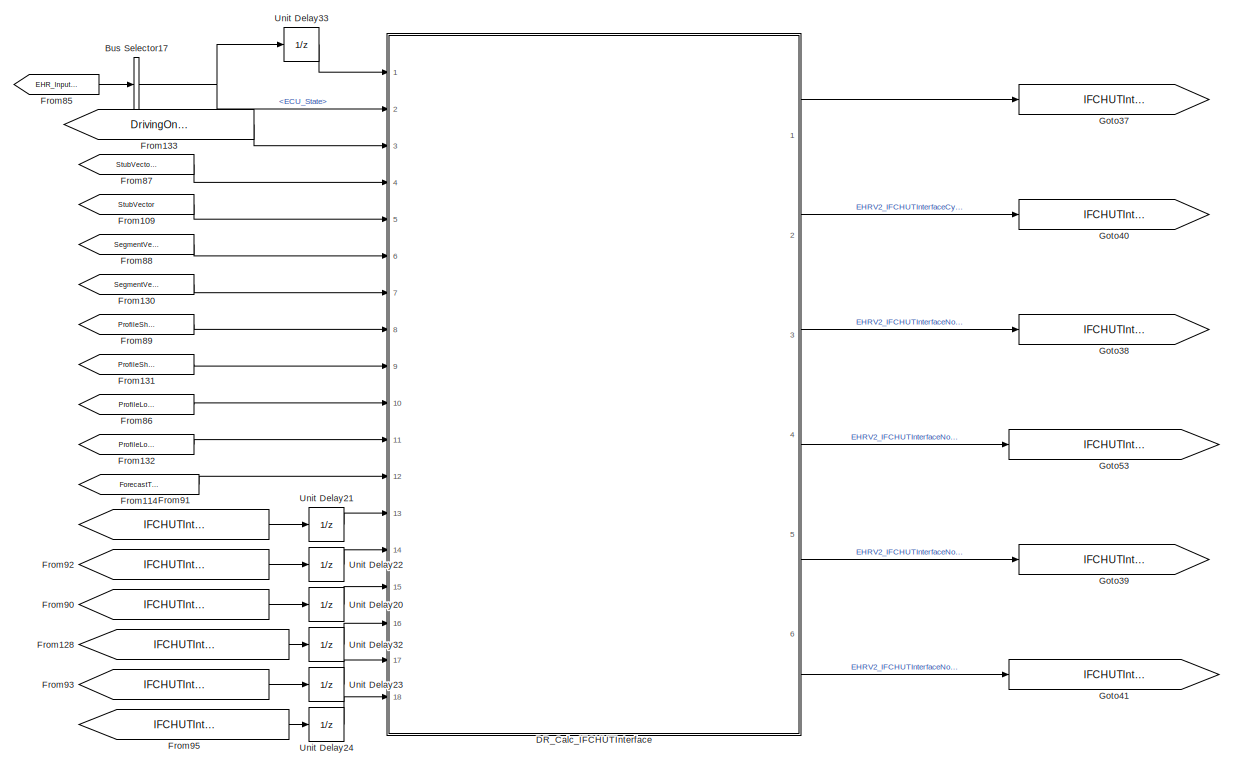
[diagram: EHR/EHR_Main - part 11/15, bottom center region]
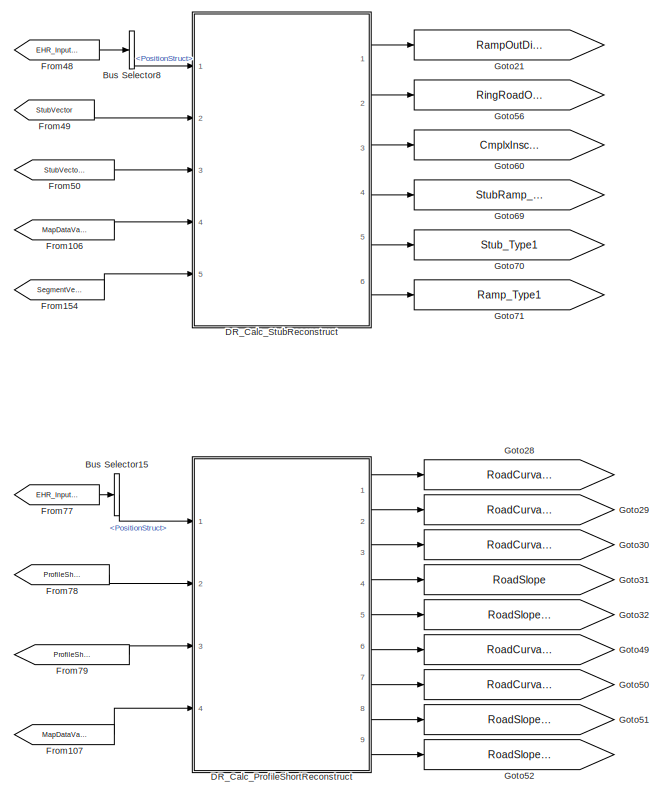
[diagram: EHR/EHR_Main - part 12/15, bottom left region]
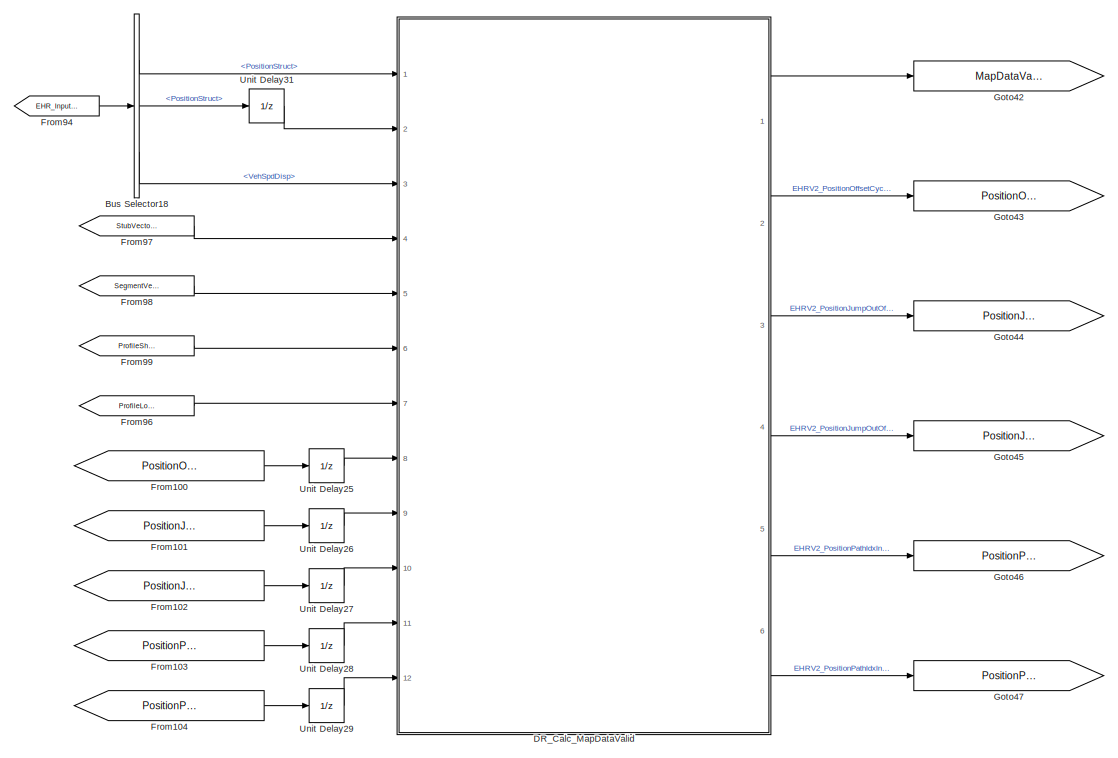
[diagram: EHR/EHR_Main - part 13/15, bottom left region]
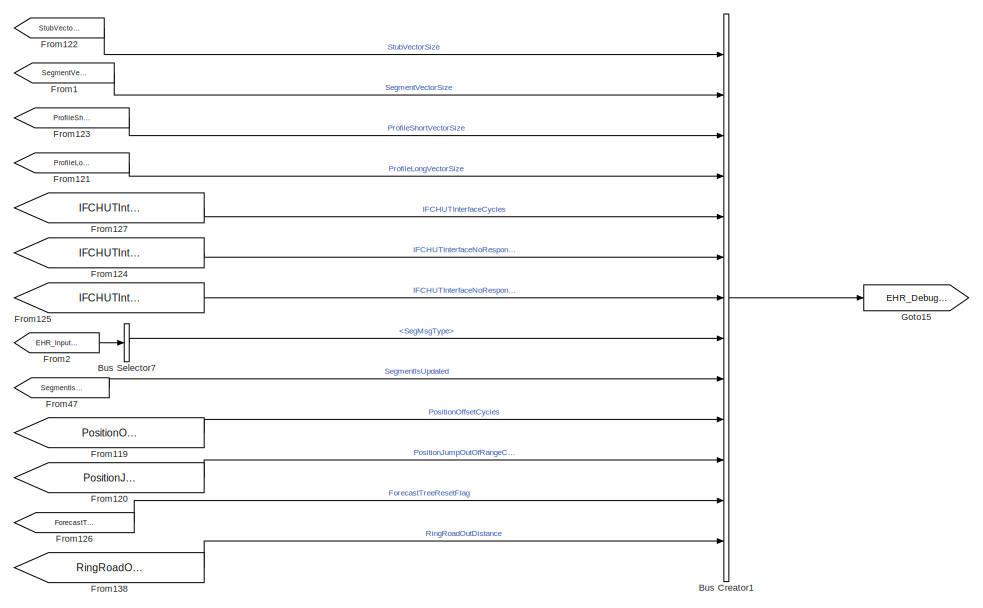
[diagram: EHR/EHR_Main - part 14/15, bottom right region]
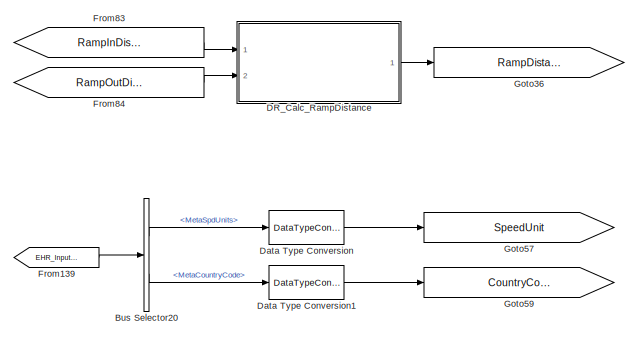
[diagram: EHR/EHR_Main - part 15/15, bottom center region]
BLOCK [SubSystem] EHR/EHR_Main
  Ports = [1, 1]
  RequestExecContextInheritance = off
BLOCK [BusCreator] EHR/EHR_Main/Bus Creator
  DisplayOption = bar
  InheritFromInputs = on
  Inputs = 43
  Ports = [43, 1]
BLOCK [BusCreator] EHR/EHR_Main/Bus Creator1
  DisplayOption = bar
  InheritFromInputs = on
  Inputs = 13
  Ports = [13, 1]
BLOCK [BusCreator] EHR/EHR_Main/Bus Creator2
  DisplayOption = bar
  InheritFromInputs = on
  Inputs = 2
  Ports = [2, 1]
BLOCK [BusSelector] EHR/EHR_Main/Bus Selector
  OutputSignals = PositionStruct,PositionStruct,StubStruct
  Ports = [1, 3]
BLOCK [BusSelector] EHR/EHR_Main/Bus Selector1
  OutputSignals = SegmentStruct
  Ports = [1, 1]
BLOCK [BusSelector] EHR/EHR_Main/Bus Selector10
  OutputSignals = PositionStruct,ProfileShortStruct
  Ports = [1, 2]
BLOCK [BusSelector] EHR/EHR_Main/Bus Selector11
  OutputSignals = PositionStruct,PositionStruct,ProfileShortStruct
  Ports = [1, 3]
BLOCK [BusSelector] EHR/EHR_Main/Bus Selector12
  OutputSignals = ProfileLongStruct
  Ports = [1, 1]
BLOCK [BusSelector] EHR/EHR_Main/Bus Selector13
  OutputSignals = PositionStruct,ProfileLongStruct
  Ports = [1, 2]
BLOCK [BusSelector] EHR/EHR_Main/Bus Selector14
  OutputSignals = PositionStruct,PositionStruct,ProfileLongStruct
  Ports = [1, 3]
BLOCK [BusSelector] EHR/EHR_Main/Bus Selector15
  OutputSignals = PositionStruct
  Ports = [1, 1]
BLOCK [BusSelector] EHR/EHR_Main/Bus Selector16
  OutputSignals = PositionStruct
  Ports = [1, 1]
BLOCK [BusSelector] EHR/EHR_Main/Bus Selector17
  OutputSignals = OtherMessageStruct.ECU_State
  Ports = [1, 1]
BLOCK [BusSelector] EHR/EHR_Main/Bus Selector18
  OutputSignals = PositionStruct,PositionStruct,OtherMessageStruct.VehSpdDisp
  Ports = [1, 3]
BLOCK [BusSelector] EHR/EHR_Main/Bus Selector19
  OutputSignals = StubStruct
  Ports = [1, 1]
BLOCK [BusSelector] EHR/EHR_Main/Bus Selector2
  OutputSignals = StubStruct
  Ports = [1, 1]
BLOCK [BusSelector] EHR/EHR_Main/Bus Selector20
  OutputSignals = MetaDataStruct.MetaSpdUnits,MetaDataStruct.MetaCountryCode
  Ports = [1, 2]
BLOCK [BusSelector] EHR/EHR_Main/Bus Selector3
  OutputSignals = PositionStruct,StubStruct
  Ports = [1, 2]
BLOCK [BusSelector] EHR/EHR_Main/Bus Selector4
  OutputSignals = PositionStruct,SegmentStruct
  Ports = [1, 2]
BLOCK [BusSelector] EHR/EHR_Main/Bus Selector5
  OutputSignals = PositionStruct,PositionStruct,SegmentStruct
  Ports = [1, 3]
BLOCK [BusSelector] EHR/EHR_Main/Bus Selector6
  OutputSignals = PositionStruct
  Ports = [1, 1]
BLOCK [BusSelector] EHR/EHR_Main/Bus Selector7
  OutputSignals = SegmentStruct.SegMsgType
  Ports = [1, 1]
BLOCK [BusSelector] EHR/EHR_Main/Bus Selector8
  OutputSignals = PositionStruct
  Ports = [1, 1]
BLOCK [BusSelector] EHR/EHR_Main/Bus Selector9
  OutputSignals = ProfileShortStruct
  Ports = [1, 1]
BLOCK [SubSystem] EHR/EHR_Main/DR_Calc_IFCHUTInterface
  ErrorFcn = Stateflow.Translate.translate
  PermitHierarchicalResolution = ExplicitOnly
  Ports = [18, 6]
  RequestExecContextInheritance = off
  SFBlockType = MATLAB Function
  TreatAsAtomicUnit = on
BLOCK [Demux] EHR/EHR_Main/DR_Calc_IFCHUTInterface/ Demux 
  Outputs = 1
  Ports = [1, 1]
BLOCK [S-Function] EHR/EHR_Main/DR_Calc_IFCHUTInterface/ SFunction 
  EnableBusSupport = on
  FunctionName = sf_sfun
  Parameters = CAMERA_STATE_INITIAL,CAMERA_STATE_NORMAL,DRIVING_ON_HIGHWAY_YES,EHR_CYCLE,IFC_HUT_INTERFACE_NO_RESPONSE,IFC_HUT_INTERFACE_RESPONSE,P_EHRV2_tIFCHUTNoResponseOfForecastTreeReset,P_EHRV2_tIFCHUTNoResponseOfTimeout,P_EHRV2_tIFCHUTResponseTimeout
  PortCounts = [18 7]
  Ports = [18, 7]
  SFcnIsStateOwnerBlock = off
  SFunctionDeploymentMode = off
  Tag = Stateflow S-Function 154
BLOCK [Terminator] EHR/EHR_Main/DR_Calc_IFCHUTInterface/ Terminator 
BLOCK [Inport] EHR/EHR_Main/DR_Calc_IFCHUTInterface/DrivingOnHighWay
  Port = 3
BLOCK [Inport] EHR/EHR_Main/DR_Calc_IFCHUTInterface/ECU_State
  Port = 2
BLOCK [Inport] EHR/EHR_Main/DR_Calc_IFCHUTInterface/ECU_StateK1
BLOCK [Inport] EHR/EHR_Main/DR_Calc_IFCHUTInterface/ForecastTreeResetFlag
  Port = 12
BLOCK [Outport] EHR/EHR_Main/DR_Calc_IFCHUTInterface/IFCHUTInterface
BLOCK [Outport] EHR/EHR_Main/DR_Calc_IFCHUTInterface/IFCHUTInterfaceCycles
  Port = 2
BLOCK [Inport] EHR/EHR_Main/DR_Calc_IFCHUTInterface/IFCHUTInterfaceCyclesK1
  Port = 14
BLOCK [Inport] EHR/EHR_Main/DR_Calc_IFCHUTInterface/IFCHUTInterfaceK1
  Port = 13
BLOCK [Outport] EHR/EHR_Main/DR_Calc_IFCHUTInterface/IFCHUTInterfaceNoResponseFlag1
  Port = 3
BLOCK [Outport] EHR/EHR_Main/DR_Calc_IFCHUTInterface/IFCHUTInterfaceNoResponseFlag1Cycles
  Port = 4
BLOCK [Inport] EHR/EHR_Main/DR_Calc_IFCHUTInterface/IFCHUTInterfaceNoResponseFlag1CyclesK1
  Port = 16
BLOCK [Inport] EHR/EHR_Main/DR_Calc_IFCHUTInterface/IFCHUTInterfaceNoResponseFlag1K1
  Port = 15
BLOCK [Outport] EHR/EHR_Main/DR_Calc_IFCHUTInterface/IFCHUTInterfaceNoResponseFlag2
  Port = 5
BLOCK [Outport] EHR/EHR_Main/DR_Calc_IFCHUTInterface/IFCHUTInterfaceNoResponseFlag2Cycles
  Port = 6
BLOCK [Inport] EHR/EHR_Main/DR_Calc_IFCHUTInterface/IFCHUTInterfaceNoResponseFlag2CyclesK1
  Port = 18
BLOCK [Inport] EHR/EHR_Main/DR_Calc_IFCHUTInterface/IFCHUTInterfaceNoResponseFlag2K1
  Port = 17
BLOCK [Inport] EHR/EHR_Main/DR_Calc_IFCHUTInterface/ProfileLongVector
  Port = 11
BLOCK [Inport] EHR/EHR_Main/DR_Calc_IFCHUTInterface/ProfileLongVectorSize
  Port = 10
BLOCK [Inport] EHR/EHR_Main/DR_Calc_IFCHUTInterface/ProfileShortVector
  Port = 9
BLOCK [Inport] EHR/EHR_Main/DR_Calc_IFCHUTInterface/ProfileShortVectorSize
  Port = 8
BLOCK [Inport] EHR/EHR_Main/DR_Calc_IFCHUTInterface/SegmentVector
  Port = 7
BLOCK [Inport] EHR/EHR_Main/DR_Calc_IFCHUTInterface/SegmentVectorSize
  Port = 6
BLOCK [Inport] EHR/EHR_Main/DR_Calc_IFCHUTInterface/StubVector
  Port = 5
BLOCK [Inport] EHR/EHR_Main/DR_Calc_IFCHUTInterface/StubVectorSize
  Port = 4
BLOCK [SubSystem] EHR/EHR_Main/DR_Calc_MapDataValid
  ErrorFcn = Stateflow.Translate.translate
  PermitHierarchicalResolution = ExplicitOnly
  Ports = [12, 6]
  RequestExecContextInheritance = off
  SFBlockType = MATLAB Function
  TreatAsAtomicUnit = on
BLOCK [Demux] EHR/EHR_Main/DR_Calc_MapDataValid/ Demux 
  Outputs = 1
  Ports = [1, 1]
BLOCK [S-Function] EHR/EHR_Main/DR_Calc_MapDataValid/ SFunction 
  EnableBusSupport = on
  FunctionName = sf_sfun
  Parameters = EHR_CYCLE,MAP_DATA_VALID_INVALID,MAP_DATA_VALID_VALID,OFFSET_INVALID,P_EHRV2_dPositionJumpOutOfRangeForMapDataValid,P_EHRV2_tPositionJumpOutOfRangeForMapDataValid,P_EHRV2_tPositionOffsetInvalidForMapDataValid,P_EHRV2_tPositionOffsetNotUpdateForMapDataValid,P_EHRV2_tPositionPathIdxInvalidForMapDataValid,P_EHRV2_vVehSpeedHighForMapDataValid
  PortCounts = [12 7]
  Ports = [12, 7]
  SFcnIsStateOwnerBlock = off
  SFunctionDeploymentMode = off
  Tag = Stateflow S-Function 155
BLOCK [Terminator] EHR/EHR_Main/DR_Calc_MapDataValid/ Terminator 
BLOCK [Inport] EHR/EHR_Main/DR_Calc_MapDataValid/IPVehSpdDisp
  Port = 3
BLOCK [Outport] EHR/EHR_Main/DR_Calc_MapDataValid/MapDataValid
BLOCK [Outport] EHR/EHR_Main/DR_Calc_MapDataValid/PositionJumpOutOfRange
  Port = 3
BLOCK [Outport] EHR/EHR_Main/DR_Calc_MapDataValid/PositionJumpOutOfRangeCycles
  Port = 4
BLOCK [Inport] EHR/EHR_Main/DR_Calc_MapDataValid/PositionJumpOutOfRangeCyclesK1
  Port = 10
BLOCK [Inport] EHR/EHR_Main/DR_Calc_MapDataValid/PositionJumpOutOfRangeK1
  Port = 9
BLOCK [Outport] EHR/EHR_Main/DR_Calc_MapDataValid/PositionOffsetCycles
  Port = 2
BLOCK [Inport] EHR/EHR_Main/DR_Calc_MapDataValid/PositionOffsetCyclesK1
  Port = 8
BLOCK [Outport] EHR/EHR_Main/DR_Calc_MapDataValid/PositionPathIdxInvalid
  Port = 5
BLOCK [Outport] EHR/EHR_Main/DR_Calc_MapDataValid/PositionPathIdxInvalidCycles
  Port = 6
BLOCK [Inport] EHR/EHR_Main/DR_Calc_MapDataValid/PositionPathIdxInvalidCyclesK1
  Port = 12
BLOCK [Inport] EHR/EHR_Main/DR_Calc_MapDataValid/PositionPathIdxInvalidK1
  Port = 11
BLOCK [Inport] EHR/EHR_Main/DR_Calc_MapDataValid/PositionStruct
BLOCK [Inport] EHR/EHR_Main/DR_Calc_MapDataValid/PositionStructK1
  Port = 2
BLOCK [Inport] EHR/EHR_Main/DR_Calc_MapDataValid/ProfileLongVectorSize
  Port = 7
BLOCK [Inport] EHR/EHR_Main/DR_Calc_MapDataValid/ProfileShortVectorSize
  Port = 6
BLOCK [Inport] EHR/EHR_Main/DR_Calc_MapDataValid/SegmentVectorSize
  Port = 5
BLOCK [Inport] EHR/EHR_Main/DR_Calc_MapDataValid/StubVectorSize
  Port = 4
BLOCK [SubSystem] EHR/EHR_Main/DR_Calc_ProfileLongReconstruct
  ErrorFcn = Stateflow.Translate.translate
  PermitHierarchicalResolution = ExplicitOnly
  Ports = [4, 14]
  RequestExecContextInheritance = off
  SFBlockType = MATLAB Function
  TreatAsAtomicUnit = on
BLOCK [Demux] EHR/EHR_Main/DR_Calc_ProfileLongReconstruct/ Demux 
  Outputs = 1
  Ports = [1, 1]
BLOCK [S-Function] EHR/EHR_Main/DR_Calc_ProfileLongReconstruct/ SFunction 
  EnableBusSupport = on
  FunctionName = sf_sfun
  Parameters = DISTANCE_UNKONWN,MAP_DATA_VALID_VALID,PROFILE_LONG_TYPE_TRAFFIC_EVENT,PROFILE_LONG_TYPE_TRAFFIC_SIGN,PROFILE_LONG_TYPE_WEATHER_SIGN,PROFILE_LONG_VALUE_ELECTRONIC_EYE,PROFILE_LONG_VALUE_LANE_MERGE_RIGHT,PROFILE_LONG_VALUE_REPAIR_ROAD_POINT,PROFILE_LONG_VALUE_TRAFFIC_JAM,SEGMENT_SPEED_LIMIT_5KMH,SEGMENT_SPEED_LIMIT_7KMH,SEGMENT_SPEED_LIMIT_UNLIMITED,SPEED_LIMIT_UNKNOWN,SPEED_LIMIT_UNLIMITED,TEMPERAT...<+53ch>
  PortCounts = [4 15]
  Ports = [4, 15]
  SFcnIsStateOwnerBlock = off
  SFunctionDeploymentMode = off
  Tag = Stateflow S-Function 157
BLOCK [Terminator] EHR/EHR_Main/DR_Calc_ProfileLongReconstruct/ Terminator 
BLOCK [Outport] EHR/EHR_Main/DR_Calc_ProfileLongReconstruct/CtrlPointDistance
  Port = 11
BLOCK [Outport] EHR/EHR_Main/DR_Calc_ProfileLongReconstruct/ElectronicEyeDistance
  Port = 2
BLOCK [Outport] EHR/EHR_Main/DR_Calc_ProfileLongReconstruct/ElectronicEyeSpeedLimit
  Port = 3
BLOCK [Inport] EHR/EHR_Main/DR_Calc_ProfileLongReconstruct/MapDataValid
  Port = 4
BLOCK [Inport] EHR/EHR_Main/DR_Calc_ProfileLongReconstruct/PositionStruct
BLOCK [Inport] EHR/EHR_Main/DR_Calc_ProfileLongReconstruct/ProfileLongVector
  Port = 2
BLOCK [Inport] EHR/EHR_Main/DR_Calc_ProfileLongReconstruct/ProfileLongVectorSize
  Port = 3
BLOCK [Outport] EHR/EHR_Main/DR_Calc_ProfileLongReconstruct/RampInDistance
BLOCK [Outport] EHR/EHR_Main/DR_Calc_ProfileLongReconstruct/Ramp_Type2
  Port = 14
BLOCK [Outport] EHR/EHR_Main/DR_Calc_ProfileLongReconstruct/RepairRoadPointDistance
  Port = 10
BLOCK [Outport] EHR/EHR_Main/DR_Calc_ProfileLongReconstruct/StubRamp_dirc2
  Port = 12
BLOCK [Outport] EHR/EHR_Main/DR_Calc_ProfileLongReconstruct/Stub_Type2
  Port = 13
BLOCK [Outport] EHR/EHR_Main/DR_Calc_ProfileLongReconstruct/Temperature
  Port = 7
BLOCK [Outport] EHR/EHR_Main/DR_Calc_ProfileLongReconstruct/TrafficJamDistance
  Port = 8
BLOCK [Outport] EHR/EHR_Main/DR_Calc_ProfileLongReconstruct/TrafficJamDistanceHold
  Port = 9
BLOCK [Outport] EHR/EHR_Main/DR_Calc_ProfileLongReconstruct/TrafficSignDistance
  Port = 4
BLOCK [Outport] EHR/EHR_Main/DR_Calc_ProfileLongReconstruct/TrafficSignValue
  Port = 5
BLOCK [Outport] EHR/EHR_Main/DR_Calc_ProfileLongReconstruct/WeatherTypeValue
  Port = 6
BLOCK [SubSystem] EHR/EHR_Main/DR_Calc_ProfileShortReconstruct
  ErrorFcn = Stateflow.Translate.translate
  PermitHierarchicalResolution = ExplicitOnly
  Ports = [4, 9]
  RequestExecContextInheritance = off
  SFBlockType = MATLAB Function
  TreatAsAtomicUnit = on
BLOCK [Demux] EHR/EHR_Main/DR_Calc_ProfileShortReconstruct/ Demux 
  Outputs = 1
  Ports = [1, 1]
BLOCK [S-Function] EHR/EHR_Main/DR_Calc_ProfileShortReconstruct/ SFunction 
  EnableBusSupport = on
  FunctionName = sf_sfun
  Parameters = CURVATURE_UNKNOWN,DISTANCE_UNKONWN,MAP_DATA_VALID_VALID,PROFILE_SHORT_NO_OTHER_VALUE,PROFILE_SHORT_TYPE_CURVATURE,PROFILE_SHORT_TYPE_SLOPE,P_EHRV2_dCurvatureFar,P_EHRV2_dCurvatureMatrix,P_EHRV2_dSlopeFar,P_EHRV2_dSlopeMatrix,SLOPE_UNKNOWN
  PortCounts = [4 10]
  Ports = [4, 10]
  SFcnIsStateOwnerBlock = off
  SFunctionDeploymentMode = off
  Tag = Stateflow S-Function 158
BLOCK [Terminator] EHR/EHR_Main/DR_Calc_ProfileShortReconstruct/ Terminator 
BLOCK [Inport] EHR/EHR_Main/DR_Calc_ProfileShortReconstruct/MapDataValid
  Port = 4
BLOCK [Inport] EHR/EHR_Main/DR_Calc_ProfileShortReconstruct/PositionStruct
BLOCK [Inport] EHR/EHR_Main/DR_Calc_ProfileShortReconstruct/ProfileShortVector
  Port = 2
BLOCK [Inport] EHR/EHR_Main/DR_Calc_ProfileShortReconstruct/ProfileShortVectorSize
  Port = 3
BLOCK [Outport] EHR/EHR_Main/DR_Calc_ProfileShortReconstruct/RoadCurvature
BLOCK [Outport] EHR/EHR_Main/DR_Calc_ProfileShortReconstruct/RoadCurvatureFar
  Port = 2
BLOCK [Outport] EHR/EHR_Main/DR_Calc_ProfileShortReconstruct/RoadCurvatureFarDistance
  Port = 3
BLOCK [Outport] EHR/EHR_Main/DR_Calc_ProfileShortReconstruct/RoadCurvatureMatrix
  Port = 6
BLOCK [Outport] EHR/EHR_Main/DR_Calc_ProfileShortReconstruct/RoadCurvatureMatrixSize
  Port = 7
BLOCK [Outport] EHR/EHR_Main/DR_Calc_ProfileShortReconstruct/RoadSlope
  Port = 4
BLOCK [Outport] EHR/EHR_Main/DR_Calc_ProfileShortReconstruct/RoadSlopeFar
  Port = 5
BLOCK [Outport] EHR/EHR_Main/DR_Calc_ProfileShortReconstruct/RoadSlopeMatrix
  Port = 8
BLOCK [Outport] EHR/EHR_Main/DR_Calc_ProfileShortReconstruct/RoadSlopeMatrixSize
  Port = 9
BLOCK [SubSystem] EHR/EHR_Main/DR_Calc_RampDistance
  ErrorFcn = Stateflow.Translate.translate
  PermitHierarchicalResolution = ExplicitOnly
  Ports = [2, 1]
  RequestExecContextInheritance = off
  SFBlockType = MATLAB Function
  TreatAsAtomicUnit = on
BLOCK [Demux] EHR/EHR_Main/DR_Calc_RampDistance/ Demux 
  Outputs = 1
  Ports = [1, 1]
BLOCK [S-Function] EHR/EHR_Main/DR_Calc_RampDistance/ SFunction 
  EnableBusSupport = on
  FunctionName = sf_sfun
  PortCounts = [2 2]
  Ports = [2, 2]
  SFcnIsStateOwnerBlock = off
  SFunctionDeploymentMode = off
  Tag = Stateflow S-Function 159
BLOCK [Terminator] EHR/EHR_Main/DR_Calc_RampDistance/ Terminator 
BLOCK [Outport] EHR/EHR_Main/DR_Calc_RampDistance/RampDistance
BLOCK [Inport] EHR/EHR_Main/DR_Calc_RampDistance/RampInDistance
BLOCK [Inport] EHR/EHR_Main/DR_Calc_RampDistance/RampOutDistance
  Port = 2
BLOCK [SubSystem] EHR/EHR_Main/DR_Calc_SegmentReconstruct
  ErrorFcn = Stateflow.Translate.translate
  PermitHierarchicalResolution = ExplicitOnly
  Ports = [4, 16]
  RequestExecContextInheritance = off
  SFBlockType = MATLAB Function
  TreatAsAtomicUnit = on
BLOCK [Demux] EHR/EHR_Main/DR_Calc_SegmentReconstruct/ Demux 
  Outputs = 1
  Ports = [1, 1]
BLOCK [S-Function] EHR/EHR_Main/DR_Calc_SegmentReconstruct/ SFunction 
  EnableBusSupport = on
  FunctionName = sf_sfun
  Parameters = BUILD_UP_AREA_UNKNOWN,DISTANCE_UNKONWN,DRIVING_ON_HIGHWAY_NO,DRIVING_ON_HIGHWAY_UNKONWN,DRIVING_ON_HIGHWAY_YES,ENTER_BRIDGE_INFO_NO,ENTER_BRIDGE_INFO_UNKONWN,ENTER_BRIDGE_INFO_YES,ENTER_TUNNEL_INFO_NO,ENTER_TUNNEL_INFO_UNKONWN,ENTER_TUNNEL_INFO_YES,FORM_OF_WAY_NO,FORM_OF_WAY_RING_ROAD,FORM_OF_WAY_UNKONWN,FORM_OF_WAY_YES,FUNC_ROAD_CLASS_UNKNOWN,MAP_DATA_VALID_VALID,NUM_OF_LANE_DRIVER_DIRECTION_UNKN...<+343ch>
  PortCounts = [4 17]
  Ports = [4, 17]
  SFcnIsStateOwnerBlock = off
  SFunctionDeploymentMode = off
  Tag = Stateflow S-Function 160
BLOCK [Terminator] EHR/EHR_Main/DR_Calc_SegmentReconstruct/ Terminator 
BLOCK [Outport] EHR/EHR_Main/DR_Calc_SegmentReconstruct/BridgeDistance
  Port = 9
BLOCK [Outport] EHR/EHR_Main/DR_Calc_SegmentReconstruct/BuildUpArea
  Port = 11
BLOCK [Outport] EHR/EHR_Main/DR_Calc_SegmentReconstruct/DrivingOnHighWay
BLOCK [Outport] EHR/EHR_Main/DR_Calc_SegmentReconstruct/EnterBridgeInfo
  Port = 4
BLOCK [Outport] EHR/EHR_Main/DR_Calc_SegmentReconstruct/EnterTunnelInfo
  Port = 3
BLOCK [Outport] EHR/EHR_Main/DR_Calc_SegmentReconstruct/FormOfWay
  Port = 2
BLOCK [Outport] EHR/EHR_Main/DR_Calc_SegmentReconstruct/FuncRoadClass
  Port = 10
BLOCK [Inport] EHR/EHR_Main/DR_Calc_SegmentReconstruct/MapDataValid
  Port = 4
BLOCK [Outport] EHR/EHR_Main/DR_Calc_SegmentReconstruct/NumOfLaneDrvDir
  Port = 5
BLOCK [Outport] EHR/EHR_Main/DR_Calc_SegmentReconstruct/OnNavPath
  Port = 16
BLOCK [Inport] EHR/EHR_Main/DR_Calc_SegmentReconstruct/PositionStruct
BLOCK [Outport] EHR/EHR_Main/DR_Calc_SegmentReconstruct/RampInDistance
  Port = 15
BLOCK [Outport] EHR/EHR_Main/DR_Calc_SegmentReconstruct/Ramp_Type3
  Port = 14
BLOCK [Inport] EHR/EHR_Main/DR_Calc_SegmentReconstruct/SegmentVector
  Port = 2
BLOCK [Inport] EHR/EHR_Main/DR_Calc_SegmentReconstruct/SegmentVectorSize
  Port = 3
BLOCK [Outport] EHR/EHR_Main/DR_Calc_SegmentReconstruct/SpeedLimit
  Port = 6
BLOCK [Outport] EHR/EHR_Main/DR_Calc_SegmentReconstruct/SpeedLimitType
  Port = 7
BLOCK [Outport] EHR/EHR_Main/DR_Calc_SegmentReconstruct/StubRamp_dirc3
  Port = 12
BLOCK [Outport] EHR/EHR_Main/DR_Calc_SegmentReconstruct/Stub_Type3
  Port = 13
BLOCK [Outport] EHR/EHR_Main/DR_Calc_SegmentReconstruct/TunnelDistance
  Port = 8
BLOCK [SubSystem] EHR/EHR_Main/DR_Calc_StubReconstruct
  ErrorFcn = Stateflow.Translate.translate
  PermitHierarchicalResolution = ExplicitOnly
  Ports = [5, 6]
  RequestExecContextInheritance = off
  SFBlockType = MATLAB Function
  TreatAsAtomicUnit = on
BLOCK [Demux] EHR/EHR_Main/DR_Calc_StubReconstruct/ Demux 
  Outputs = 1
  Ports = [1, 1]
BLOCK [S-Function] EHR/EHR_Main/DR_Calc_StubReconstruct/ SFunction 
  EnableBusSupport = on
  FunctionName = sf_sfun
  Parameters = DISTANCE_UNKONWN,MAP_DATA_VALID_VALID,STUB_CMPLX_INSCT,STUB_FORM_OF_WAY_HIGH_RING_ROAD,STUB_FORM_OF_WAY_NORMAL_RING_ROAD
  PortCounts = [5 7]
  Ports = [5, 7]
  SFcnIsStateOwnerBlock = off
  SFunctionDeploymentMode = off
  Tag = Stateflow S-Function 161
BLOCK [Terminator] EHR/EHR_Main/DR_Calc_StubReconstruct/ Terminator 
BLOCK [Outport] EHR/EHR_Main/DR_Calc_StubReconstruct/CmplxInsctDistance
  Port = 3
BLOCK [Inport] EHR/EHR_Main/DR_Calc_StubReconstruct/MapDataValid
  Port = 4
BLOCK [Inport] EHR/EHR_Main/DR_Calc_StubReconstruct/PositionStruct
BLOCK [Outport] EHR/EHR_Main/DR_Calc_StubReconstruct/RampOutDistance
BLOCK [Outport] EHR/EHR_Main/DR_Calc_StubReconstruct/Ramp_Type1
  Port = 6
BLOCK [Outport] EHR/EHR_Main/DR_Calc_StubReconstruct/RingRoadOutDistance
  Port = 2
BLOCK [Inport] EHR/EHR_Main/DR_Calc_StubReconstruct/SegmentVector
  Port = 5
BLOCK [Outport] EHR/EHR_Main/DR_Calc_StubReconstruct/StubRamp_dirc1
  Port = 4
BLOCK [Inport] EHR/EHR_Main/DR_Calc_StubReconstruct/StubVector
  Port = 2
BLOCK [Inport] EHR/EHR_Main/DR_Calc_StubReconstruct/StubVectorSize
  Port = 3
BLOCK [Outport] EHR/EHR_Main/DR_Calc_StubReconstruct/Stub_Type1
  Port = 5
BLOCK [SubSystem] EHR/EHR_Main/DS_Calc_ForecastTreeReset
  ErrorFcn = Stateflow.Translate.translate
  PermitHierarchicalResolution = ExplicitOnly
  Ports = [2, 1]
  RequestExecContextInheritance = off
  SFBlockType = MATLAB Function
  TreatAsAtomicUnit = on
BLOCK [Demux] EHR/EHR_Main/DS_Calc_ForecastTreeReset/ Demux 
  Outputs = 1
  Ports = [1, 1]
BLOCK [S-Function] EHR/EHR_Main/DS_Calc_ForecastTreeReset/ SFunction 
  EnableBusSupport = on
  FunctionName = sf_sfun
  Parameters = OFFSET_INVALID
  PortCounts = [2 2]
  Ports = [2, 2]
  SFcnIsStateOwnerBlock = off
  SFunctionDeploymentMode = off
  Tag = Stateflow S-Function 163
BLOCK [Terminator] EHR/EHR_Main/DS_Calc_ForecastTreeReset/ Terminator 
BLOCK [Outport] EHR/EHR_Main/DS_Calc_ForecastTreeReset/ForecastTreeResetFlag
BLOCK [Inport] EHR/EHR_Main/DS_Calc_ForecastTreeReset/StubStruct
BLOCK [Inport] EHR/EHR_Main/DS_Calc_ForecastTreeReset/StubStructK1
  Port = 2
BLOCK [SubSystem] EHR/EHR_Main/DS_Calc_ProfileLongIsInDataWindow
  ErrorFcn = Stateflow.Translate.translate
  PermitHierarchicalResolution = ExplicitOnly
  Ports = [4, 1]
  RequestExecContextInheritance = off
  SFBlockType = MATLAB Function
  TreatAsAtomicUnit = on
BLOCK [Demux] EHR/EHR_Main/DS_Calc_ProfileLongIsInDataWindow/ Demux 
  Outputs = 1
  Ports = [1, 1]
BLOCK [S-Function] EHR/EHR_Main/DS_Calc_ProfileLongIsInDataWindow/ SFunction 
  EnableBusSupport = on
  FunctionName = sf_sfun
  Parameters = P_EHRV2_dVehForwardLooking,P_EHRV2_dVehRearLooking
  PortCounts = [4 2]
  Ports = [4, 2]
  SFcnIsStateOwnerBlock = off
  SFunctionDeploymentMode = off
  Tag = Stateflow S-Function 164
BLOCK [Terminator] EHR/EHR_Main/DS_Calc_ProfileLongIsInDataWindow/ Terminator 
BLOCK [Inport] EHR/EHR_Main/DS_Calc_ProfileLongIsInDataWindow/PositionStruct
BLOCK [Outport] EHR/EHR_Main/DS_Calc_ProfileLongIsInDataWindow/ProfileLongIsInDataWindow
BLOCK [Inport] EHR/EHR_Main/DS_Calc_ProfileLongIsInDataWindow/ProfileLongStruct
  Port = 2
BLOCK [Inport] EHR/EHR_Main/DS_Calc_ProfileLongIsInDataWindow/StubVector
  Port = 3
BLOCK [Inport] EHR/EHR_Main/DS_Calc_ProfileLongIsInDataWindow/StubVectorSize
  Port = 4
BLOCK [SubSystem] EHR/EHR_Main/DS_Calc_ProfileLongIsUpdated
  ErrorFcn = Stateflow.Translate.translate
  PermitHierarchicalResolution = ExplicitOnly
  Ports = [3, 1]
  RequestExecContextInheritance = off
  SFBlockType = MATLAB Function
  TreatAsAtomicUnit = on
BLOCK [Demux] EHR/EHR_Main/DS_Calc_ProfileLongIsUpdated/ Demux 
  Outputs = 1
  Ports = [1, 1]
BLOCK [S-Function] EHR/EHR_Main/DS_Calc_ProfileLongIsUpdated/ SFunction 
  EnableBusSupport = on
  FunctionName = sf_sfun
  PortCounts = [3 2]
  Ports = [3, 2]
  SFcnIsStateOwnerBlock = off
  SFunctionDeploymentMode = off
  Tag = Stateflow S-Function 165
BLOCK [Terminator] EHR/EHR_Main/DS_Calc_ProfileLongIsUpdated/ Terminator 
BLOCK [Outport] EHR/EHR_Main/DS_Calc_ProfileLongIsUpdated/ProfileLongIsUpdated
BLOCK [Inport] EHR/EHR_Main/DS_Calc_ProfileLongIsUpdated/ProfileLongStruct
BLOCK [Inport] EHR/EHR_Main/DS_Calc_ProfileLongIsUpdated/ProfileLongVector
  Port = 2
BLOCK [Inport] EHR/EHR_Main/DS_Calc_ProfileLongIsUpdated/ProfileLongVectorSize
  Port = 3
BLOCK [SubSystem] EHR/EHR_Main/DS_Calc_ProfileLongVector
  ErrorFcn = Stateflow.Translate.translate
  PermitHierarchicalResolution = ExplicitOnly
  Ports = [10, 2]
  RequestExecContextInheritance = off
  SFBlockType = MATLAB Function
  TreatAsAtomicUnit = on
BLOCK [Demux] EHR/EHR_Main/DS_Calc_ProfileLongVector/ Demux 
  Outputs = 1
  Ports = [1, 1]
BLOCK [S-Function] EHR/EHR_Main/DS_Calc_ProfileLongVector/ SFunction 
  EnableBusSupport = on
  FunctionName = sf_sfun
  Parameters = FORWARD_LOOKING_DISTANCE_LIMIT,OFFSET_INVALID,OFFSET_MAX,P_EHRV2_dVehForwardLooking,P_EHRV2_dVehRearLooking,REAR_LOOKING_DISTANCE_LIMIT
  PortCounts = [10 3]
  Ports = [10, 3]
  SFcnIsStateOwnerBlock = off
  SFunctionDeploymentMode = off
  Tag = Stateflow S-Function 167
BLOCK [Terminator] EHR/EHR_Main/DS_Calc_ProfileLongVector/ Terminator 
BLOCK [Inport] EHR/EHR_Main/DS_Calc_ProfileLongVector/ForecastTreeResetFlag
  Port = 6
BLOCK [Inport] EHR/EHR_Main/DS_Calc_ProfileLongVector/PositionStruct
BLOCK [Inport] EHR/EHR_Main/DS_Calc_ProfileLongVector/PositionStructK1
  Port = 2
BLOCK [Inport] EHR/EHR_Main/DS_Calc_ProfileLongVector/ProfileLongIsInDataWindow
  Port = 5
BLOCK [Inport] EHR/EHR_Main/DS_Calc_ProfileLongVector/ProfileLongIsUpdated
  Port = 4
BLOCK [Inport] EHR/EHR_Main/DS_Calc_ProfileLongVector/ProfileLongStruct
  Port = 3
BLOCK [Outport] EHR/EHR_Main/DS_Calc_ProfileLongVector/ProfileLongVector
BLOCK [Inport] EHR/EHR_Main/DS_Calc_ProfileLongVector/ProfileLongVectorK1
  Port = 9
BLOCK [Outport] EHR/EHR_Main/DS_Calc_ProfileLongVector/ProfileLongVectorSize
  Port = 2
BLOCK [Inport] EHR/EHR_Main/DS_Calc_ProfileLongVector/ProfileLongVectorSizeK1
  Port = 10
BLOCK [Inport] EHR/EHR_Main/DS_Calc_ProfileLongVector/StubVector
  Port = 7
BLOCK [Inport] EHR/EHR_Main/DS_Calc_ProfileLongVector/StubVectorSize
  Port = 8
BLOCK [SubSystem] EHR/EHR_Main/DS_Calc_ProfileShortIsInDataWindow
  ErrorFcn = Stateflow.Translate.translate
  PermitHierarchicalResolution = ExplicitOnly
  Ports = [4, 1]
  RequestExecContextInheritance = off
  SFBlockType = MATLAB Function
  TreatAsAtomicUnit = on
BLOCK [Demux] EHR/EHR_Main/DS_Calc_ProfileShortIsInDataWindow/ Demux 
  Outputs = 1
  Ports = [1, 1]
BLOCK [S-Function] EHR/EHR_Main/DS_Calc_ProfileShortIsInDataWindow/ SFunction 
  EnableBusSupport = on
  FunctionName = sf_sfun
  Parameters = P_EHRV2_dVehForwardLooking,P_EHRV2_dVehRearLooking
  PortCounts = [4 2]
  Ports = [4, 2]
  SFcnIsStateOwnerBlock = off
  SFunctionDeploymentMode = off
  Tag = Stateflow S-Function 168
BLOCK [Terminator] EHR/EHR_Main/DS_Calc_ProfileShortIsInDataWindow/ Terminator 
BLOCK [Inport] EHR/EHR_Main/DS_Calc_ProfileShortIsInDataWindow/PositionStruct
BLOCK [Outport] EHR/EHR_Main/DS_Calc_ProfileShortIsInDataWindow/ProfileShortIsInDataWindow
BLOCK [Inport] EHR/EHR_Main/DS_Calc_ProfileShortIsInDataWindow/ProfileShortStruct
  Port = 2
BLOCK [Inport] EHR/EHR_Main/DS_Calc_ProfileShortIsInDataWindow/StubVector
  Port = 3
BLOCK [Inport] EHR/EHR_Main/DS_Calc_ProfileShortIsInDataWindow/StubVectorSize
  Port = 4
BLOCK [SubSystem] EHR/EHR_Main/DS_Calc_ProfileShortIsUpdated
  ErrorFcn = Stateflow.Translate.translate
  PermitHierarchicalResolution = ExplicitOnly
  Ports = [3, 1]
  RequestExecContextInheritance = off
  SFBlockType = MATLAB Function
  TreatAsAtomicUnit = on
BLOCK [Demux] EHR/EHR_Main/DS_Calc_ProfileShortIsUpdated/ Demux 
  Outputs = 1
  Ports = [1, 1]
BLOCK [S-Function] EHR/EHR_Main/DS_Calc_ProfileShortIsUpdated/ SFunction 
  EnableBusSupport = on
  FunctionName = sf_sfun
  PortCounts = [3 2]
  Ports = [3, 2]
  SFcnIsStateOwnerBlock = off
  SFunctionDeploymentMode = off
  Tag = Stateflow S-Function 170
BLOCK [Terminator] EHR/EHR_Main/DS_Calc_ProfileShortIsUpdated/ Terminator 
BLOCK [Outport] EHR/EHR_Main/DS_Calc_ProfileShortIsUpdated/ProfileShortIsUpdated
BLOCK [Inport] EHR/EHR_Main/DS_Calc_ProfileShortIsUpdated/ProfileShortStruct
BLOCK [Inport] EHR/EHR_Main/DS_Calc_ProfileShortIsUpdated/ProfileShortVector
  Port = 2
BLOCK [Inport] EHR/EHR_Main/DS_Calc_ProfileShortIsUpdated/ProfileShortVectorSize
  Port = 3
BLOCK [SubSystem] EHR/EHR_Main/DS_Calc_ProfileShortVector
  ErrorFcn = Stateflow.Translate.translate
  PermitHierarchicalResolution = ExplicitOnly
  Ports = [10, 2]
  RequestExecContextInheritance = off
  SFBlockType = MATLAB Function
  TreatAsAtomicUnit = on
BLOCK [Demux] EHR/EHR_Main/DS_Calc_ProfileShortVector/ Demux 
  Outputs = 1
  Ports = [1, 1]
BLOCK [S-Function] EHR/EHR_Main/DS_Calc_ProfileShortVector/ SFunction 
  EnableBusSupport = on
  FunctionName = sf_sfun
  Parameters = FORWARD_LOOKING_DISTANCE_LIMIT,OFFSET_INVALID,OFFSET_MAX,P_EHRV2_dVehForwardLooking,P_EHRV2_dVehRearLooking,REAR_LOOKING_DISTANCE_LIMIT
  PortCounts = [10 3]
  Ports = [10, 3]
  SFcnIsStateOwnerBlock = off
  SFunctionDeploymentMode = off
  Tag = Stateflow S-Function 172
BLOCK [Terminator] EHR/EHR_Main/DS_Calc_ProfileShortVector/ Terminator 
BLOCK [Inport] EHR/EHR_Main/DS_Calc_ProfileShortVector/ForecastTreeResetFlag
  Port = 6
BLOCK [Inport] EHR/EHR_Main/DS_Calc_ProfileShortVector/PositionStruct
BLOCK [Inport] EHR/EHR_Main/DS_Calc_ProfileShortVector/PositionStructK1
  Port = 2
BLOCK [Inport] EHR/EHR_Main/DS_Calc_ProfileShortVector/ProfileShortIsInDataWindow
  Port = 5
BLOCK [Inport] EHR/EHR_Main/DS_Calc_ProfileShortVector/ProfileShortIsUpdated
  Port = 4
BLOCK [Inport] EHR/EHR_Main/DS_Calc_ProfileShortVector/ProfileShortStruct
  Port = 3
BLOCK [Outport] EHR/EHR_Main/DS_Calc_ProfileShortVector/ProfileShortVector
BLOCK [Inport] EHR/EHR_Main/DS_Calc_ProfileShortVector/ProfileShortVectorK1
  Port = 9
BLOCK [Outport] EHR/EHR_Main/DS_Calc_ProfileShortVector/ProfileShortVectorSize
  Port = 2
BLOCK [Inport] EHR/EHR_Main/DS_Calc_ProfileShortVector/ProfileShortVectorSizeK1
  Port = 10
BLOCK [Inport] EHR/EHR_Main/DS_Calc_ProfileShortVector/StubVector
  Port = 7
BLOCK [Inport] EHR/EHR_Main/DS_Calc_ProfileShortVector/StubVectorSize
  Port = 8
BLOCK [SubSystem] EHR/EHR_Main/DS_Calc_SegmentIsInDataWindow
  ErrorFcn = Stateflow.Translate.translate
  PermitHierarchicalResolution = ExplicitOnly
  Ports = [4, 1]
  RequestExecContextInheritance = off
  SFBlockType = MATLAB Function
  TreatAsAtomicUnit = on
BLOCK [Demux] EHR/EHR_Main/DS_Calc_SegmentIsInDataWindow/ Demux 
  Outputs = 1
  Ports = [1, 1]
BLOCK [S-Function] EHR/EHR_Main/DS_Calc_SegmentIsInDataWindow/ SFunction 
  EnableBusSupport = on
  FunctionName = sf_sfun
  Parameters = P_EHRV2_dVehForwardLooking,P_EHRV2_dVehRearLooking
  PortCounts = [4 2]
  Ports = [4, 2]
  SFcnIsStateOwnerBlock = off
  SFunctionDeploymentMode = off
  Tag = Stateflow S-Function 175
BLOCK [Terminator] EHR/EHR_Main/DS_Calc_SegmentIsInDataWindow/ Terminator 
BLOCK [Inport] EHR/EHR_Main/DS_Calc_SegmentIsInDataWindow/PositionStruct
BLOCK [Outport] EHR/EHR_Main/DS_Calc_SegmentIsInDataWindow/SegmentIsInDataWindow
BLOCK [Inport] EHR/EHR_Main/DS_Calc_SegmentIsInDataWindow/SegmentStruct
  Port = 2
BLOCK [Inport] EHR/EHR_Main/DS_Calc_SegmentIsInDataWindow/StubVector
  Port = 3
BLOCK [Inport] EHR/EHR_Main/DS_Calc_SegmentIsInDataWindow/StubVectorSize
  Port = 4
BLOCK [SubSystem] EHR/EHR_Main/DS_Calc_SegmentIsUpdated
  ErrorFcn = Stateflow.Translate.translate
  PermitHierarchicalResolution = ExplicitOnly
  Ports = [3, 1]
  RequestExecContextInheritance = off
  SFBlockType = MATLAB Function
  TreatAsAtomicUnit = on
BLOCK [Demux] EHR/EHR_Main/DS_Calc_SegmentIsUpdated/ Demux 
  Outputs = 1
  Ports = [1, 1]
BLOCK [S-Function] EHR/EHR_Main/DS_Calc_SegmentIsUpdated/ SFunction 
  EnableBusSupport = on
  FunctionName = sf_sfun
  PortCounts = [3 2]
  Ports = [3, 2]
  SFcnIsStateOwnerBlock = off
  SFunctionDeploymentMode = off
  Tag = Stateflow S-Function 176
BLOCK [Terminator] EHR/EHR_Main/DS_Calc_SegmentIsUpdated/ Terminator 
BLOCK [Outport] EHR/EHR_Main/DS_Calc_SegmentIsUpdated/SegmentIsUpdated
BLOCK [Inport] EHR/EHR_Main/DS_Calc_SegmentIsUpdated/SegmentStruct
BLOCK [Inport] EHR/EHR_Main/DS_Calc_SegmentIsUpdated/SegmentVector
  Port = 2
BLOCK [Inport] EHR/EHR_Main/DS_Calc_SegmentIsUpdated/SegmentVectorSize
  Port = 3
BLOCK [SubSystem] EHR/EHR_Main/DS_Calc_SegmentVector
  ErrorFcn = Stateflow.Translate.translate
  PermitHierarchicalResolution = ExplicitOnly
  Ports = [10, 2]
  RequestExecContextInheritance = off
  SFBlockType = MATLAB Function
  TreatAsAtomicUnit = on
BLOCK [Demux] EHR/EHR_Main/DS_Calc_SegmentVector/ Demux 
  Outputs = 1
  Ports = [1, 1]
BLOCK [S-Function] EHR/EHR_Main/DS_Calc_SegmentVector/ SFunction 
  EnableBusSupport = on
  FunctionName = sf_sfun
  Parameters = FORWARD_LOOKING_DISTANCE_LIMIT,OFFSET_INVALID,OFFSET_MAX,P_EHRV2_dVehForwardLooking,P_EHRV2_dVehRearLooking,REAR_LOOKING_DISTANCE_LIMIT
  PortCounts = [10 3]
  Ports = [10, 3]
  SFcnIsStateOwnerBlock = off
  SFunctionDeploymentMode = off
  Tag = Stateflow S-Function 177
BLOCK [Terminator] EHR/EHR_Main/DS_Calc_SegmentVector/ Terminator 
BLOCK [Inport] EHR/EHR_Main/DS_Calc_SegmentVector/ForecastTreeResetFlag
  Port = 6
BLOCK [Inport] EHR/EHR_Main/DS_Calc_SegmentVector/PositionStruct
BLOCK [Inport] EHR/EHR_Main/DS_Calc_SegmentVector/PositionStructK1
  Port = 2
BLOCK [Inport] EHR/EHR_Main/DS_Calc_SegmentVector/SegmentIsInDataWindow
  Port = 5
BLOCK [Inport] EHR/EHR_Main/DS_Calc_SegmentVector/SegmentIsUpdated
  Port = 4
BLOCK [Inport] EHR/EHR_Main/DS_Calc_SegmentVector/SegmentStruct
  Port = 3
BLOCK [Outport] EHR/EHR_Main/DS_Calc_SegmentVector/SegmentVector
BLOCK [Inport] EHR/EHR_Main/DS_Calc_SegmentVector/SegmentVectorK1
  Port = 9
BLOCK [Outport] EHR/EHR_Main/DS_Calc_SegmentVector/SegmentVectorSize
  Port = 2
BLOCK [Inport] EHR/EHR_Main/DS_Calc_SegmentVector/SegmentVectorSizeK1
  Port = 10
BLOCK [Inport] EHR/EHR_Main/DS_Calc_SegmentVector/StubVector
  Port = 7
BLOCK [Inport] EHR/EHR_Main/DS_Calc_SegmentVector/StubVectorSize
  Port = 8
BLOCK [SubSystem] EHR/EHR_Main/DS_Calc_StubIsInDataWindow
  ErrorFcn = Stateflow.Translate.translate
  PermitHierarchicalResolution = ExplicitOnly
  Ports = [2, 1]
  RequestExecContextInheritance = off
  SFBlockType = MATLAB Function
  TreatAsAtomicUnit = on
BLOCK [Demux] EHR/EHR_Main/DS_Calc_StubIsInDataWindow/ Demux 
  Outputs = 1
  Ports = [1, 1]
BLOCK [S-Function] EHR/EHR_Main/DS_Calc_StubIsInDataWindow/ SFunction 
  EnableBusSupport = on
  FunctionName = sf_sfun
  Parameters = P_EHRV2_dVehForwardLooking,P_EHRV2_dVehRearLooking
  PortCounts = [2 2]
  Ports = [2, 2]
  SFcnIsStateOwnerBlock = off
  SFunctionDeploymentMode = off
  Tag = Stateflow S-Function 178
BLOCK [Terminator] EHR/EHR_Main/DS_Calc_StubIsInDataWindow/ Terminator 
BLOCK [Inport] EHR/EHR_Main/DS_Calc_StubIsInDataWindow/PositionStruct
BLOCK [Outport] EHR/EHR_Main/DS_Calc_StubIsInDataWindow/StubIsInDataWindow
BLOCK [Inport] EHR/EHR_Main/DS_Calc_StubIsInDataWindow/StubStruct
  Port = 2
BLOCK [SubSystem] EHR/EHR_Main/DS_Calc_StubIsUpdated
  ErrorFcn = Stateflow.Translate.translate
  PermitHierarchicalResolution = ExplicitOnly
  Ports = [3, 1]
  RequestExecContextInheritance = off
  SFBlockType = MATLAB Function
  TreatAsAtomicUnit = on
BLOCK [Demux] EHR/EHR_Main/DS_Calc_StubIsUpdated/ Demux 
  Outputs = 1
  Ports = [1, 1]
BLOCK [S-Function] EHR/EHR_Main/DS_Calc_StubIsUpdated/ SFunction 
  EnableBusSupport = on
  FunctionName = sf_sfun
  PortCounts = [3 2]
  Ports = [3, 2]
  SFcnIsStateOwnerBlock = off
  SFunctionDeploymentMode = off
  Tag = Stateflow S-Function 179
BLOCK [Terminator] EHR/EHR_Main/DS_Calc_StubIsUpdated/ Terminator 
BLOCK [Outport] EHR/EHR_Main/DS_Calc_StubIsUpdated/StubIsUpdated
BLOCK [Inport] EHR/EHR_Main/DS_Calc_StubIsUpdated/StubStruct
BLOCK [Inport] EHR/EHR_Main/DS_Calc_StubIsUpdated/StubVector
  Port = 2
BLOCK [Inport] EHR/EHR_Main/DS_Calc_StubIsUpdated/StubVectorSize
  Port = 3
BLOCK [SubSystem] EHR/EHR_Main/DS_Calc_StubVector
  ErrorFcn = Stateflow.Translate.translate
  PermitHierarchicalResolution = ExplicitOnly
  Ports = [8, 2]
  RequestExecContextInheritance = off
  SFBlockType = MATLAB Function
  TreatAsAtomicUnit = on
BLOCK [Demux] EHR/EHR_Main/DS_Calc_StubVector/ Demux 
  Outputs = 1
  Ports = [1, 1]
BLOCK [S-Function] EHR/EHR_Main/DS_Calc_StubVector/ SFunction 
  EnableBusSupport = on
  FunctionName = sf_sfun
  Parameters = FORWARD_LOOKING_DISTANCE_LIMIT,OFFSET_INVALID,OFFSET_MAX,P_EHRV2_dVehForwardLooking,P_EHRV2_dVehRearLooking,REAR_LOOKING_DISTANCE_LIMIT
  PortCounts = [8 3]
  Ports = [8, 3]
  SFcnIsStateOwnerBlock = off
  SFunctionDeploymentMode = off
  Tag = Stateflow S-Function 180
BLOCK [Terminator] EHR/EHR_Main/DS_Calc_StubVector/ Terminator 
BLOCK [Inport] EHR/EHR_Main/DS_Calc_StubVector/ForecastTreeResetFlag
  Port = 6
BLOCK [Inport] EHR/EHR_Main/DS_Calc_StubVector/PositionStruct
BLOCK [Inport] EHR/EHR_Main/DS_Calc_StubVector/PositionStructK1
  Port = 2
BLOCK [Inport] EHR/EHR_Main/DS_Calc_StubVector/StubIsInDataWindow
  Port = 5
BLOCK [Inport] EHR/EHR_Main/DS_Calc_StubVector/StubIsUpdated
  Port = 4
BLOCK [Inport] EHR/EHR_Main/DS_Calc_StubVector/StubStruct
  Port = 3
BLOCK [Outport] EHR/EHR_Main/DS_Calc_StubVector/StubVector
BLOCK [Inport] EHR/EHR_Main/DS_Calc_StubVector/StubVectorK1
  Port = 7
BLOCK [Outport] EHR/EHR_Main/DS_Calc_StubVector/StubVectorSize
  Port = 2
BLOCK [Inport] EHR/EHR_Main/DS_Calc_StubVector/StubVectorSizeK1
  Port = 8
BLOCK [DataTypeConversion] EHR/EHR_Main/Data Type Conversion
  OutDataTypeStr = uint8
  RndMeth = Floor
  SaturateOnIntegerOverflow = off
BLOCK [DataTypeConversion] EHR/EHR_Main/Data Type Conversion1
  OutDataTypeStr = uint16
  RndMeth = Floor
  SaturateOnIntegerOverflow = off
BLOCK [Inport] EHR/EHR_Main/EHR_InputData
BLOCK [Outport] EHR/EHR_Main/EHR_OutputData
BLOCK [From] EHR/EHR_Main/From
  GotoTag = DrivingOnHighWay
BLOCK [From] EHR/EHR_Main/From1
  GotoTag = SegmentVectorSize
BLOCK [From] EHR/EHR_Main/From10
  GotoTag = IFCHUTInterface
BLOCK [From] EHR/EHR_Main/From100
  GotoTag = PositionOffsetCycles
BLOCK [From] EHR/EHR_Main/From101
  GotoTag = PositionJumpOutOfRange
BLOCK [From] EHR/EHR_Main/From102
  GotoTag = PositionJumpOutOfRangeCycles
BLOCK [From] EHR/EHR_Main/From103
  GotoTag = PositionPathIdxInvalid
BLOCK [From] EHR/EHR_Main/From104
  GotoTag = PositionPathIdxInvalidCycles
BLOCK [From] EHR/EHR_Main/From105
  GotoTag = MapDataValid
BLOCK [From] EHR/EHR_Main/From106
  GotoTag = MapDataValid
BLOCK [From] EHR/EHR_Main/From107
  GotoTag = MapDataValid
BLOCK [From] EHR/EHR_Main/From108
  GotoTag = MapDataValid
BLOCK [From] EHR/EHR_Main/From109
  GotoTag = StubVector
BLOCK [From] EHR/EHR_Main/From11
  GotoTag = MapDataValid
BLOCK [From] EHR/EHR_Main/From110
  GotoTag = ForecastTreeResetFlag
BLOCK [From] EHR/EHR_Main/From111
  GotoTag = ForecastTreeResetFlag
BLOCK [From] EHR/EHR_Main/From112
  GotoTag = ForecastTreeResetFlag
BLOCK [From] EHR/EHR_Main/From113
  GotoTag = ForecastTreeResetFlag
BLOCK [From] EHR/EHR_Main/From114
  GotoTag = ForecastTreeResetFlag
BLOCK [From] EHR/EHR_Main/From115
  GotoTag = RoadCurvatureMatrix
BLOCK [From] EHR/EHR_Main/From116
  GotoTag = RoadCurvatureMatrixSize
BLOCK [From] EHR/EHR_Main/From117
  GotoTag = RoadSlopeMatrix
BLOCK [From] EHR/EHR_Main/From118
  GotoTag = RoadSlopeMatrixSize
BLOCK [From] EHR/EHR_Main/From119
  GotoTag = PositionOffsetCycles
BLOCK [From] EHR/EHR_Main/From12
  GotoTag = NumOfLaneDrvDir
BLOCK [From] EHR/EHR_Main/From120
  GotoTag = PositionJumpOutOfRangeCycles
BLOCK [From] EHR/EHR_Main/From121
  GotoTag = ProfileLongVectorSize
BLOCK [From] EHR/EHR_Main/From122
  GotoTag = StubVectorSize
BLOCK [From] EHR/EHR_Main/From123
  GotoTag = ProfileShortVectorSize
BLOCK [From] EHR/EHR_Main/From124
  GotoTag = IFCHUTInterfaceNoResponseFlag1
BLOCK [From] EHR/EHR_Main/From125
  GotoTag = IFCHUTInterfaceNoResponseFlag2
BLOCK [From] EHR/EHR_Main/From126
  GotoTag = ForecastTreeResetFlag
BLOCK [From] EHR/EHR_Main/From127
  GotoTag = IFCHUTInterfaceCycles
BLOCK [From] EHR/EHR_Main/From128
  GotoTag = IFCHUTInterfaceNoResponseFlag1Cycles
BLOCK [From] EHR/EHR_Main/From129
  GotoTag = EHR_InputData
BLOCK [From] EHR/EHR_Main/From13
  GotoTag = SpeedLimit
BLOCK [From] EHR/EHR_Main/From130
  GotoTag = SegmentVector
BLOCK [From] EHR/EHR_Main/From131
  GotoTag = ProfileShortVector
BLOCK [From] EHR/EHR_Main/From132
  GotoTag = ProfileLongVector
BLOCK [From] EHR/EHR_Main/From133
  GotoTag = DrivingOnHighWay
BLOCK [From] EHR/EHR_Main/From134
  GotoTag = RampInDistance
BLOCK [From] EHR/EHR_Main/From135
  GotoTag = RampOutDistance
BLOCK [From] EHR/EHR_Main/From136
  GotoTag = TrafficSignDistance
BLOCK [From] EHR/EHR_Main/From137
  GotoTag = TrafficSignValue
BLOCK [From] EHR/EHR_Main/From138
  GotoTag = RingRoadOutDistance
BLOCK [From] EHR/EHR_Main/From139
  GotoTag = EHR_InputData
BLOCK [From] EHR/EHR_Main/From14
  GotoTag = ElectronicEyeDistance
BLOCK [From] EHR/EHR_Main/From140
  GotoTag = SpeedUnit
BLOCK [From] EHR/EHR_Main/From141
  GotoTag = WeatherTypeValue
BLOCK [From] EHR/EHR_Main/From142
  GotoTag = Temperature
BLOCK [From] EHR/EHR_Main/From143
  GotoTag = TrafficJamDistance
BLOCK [From] EHR/EHR_Main/From144
  GotoTag = TrafficJamDistanceHold
BLOCK [From] EHR/EHR_Main/From145
  GotoTag = RepairRoadPointDistance
BLOCK [From] EHR/EHR_Main/From146
  GotoTag = CtrlPointDistance
BLOCK [From] EHR/EHR_Main/From147
  GotoTag = FuncRoadClass
BLOCK [From] EHR/EHR_Main/From148
  GotoTag = BuildUpArea
BLOCK [From] EHR/EHR_Main/From149
  GotoTag = CmplxInsctDistance
BLOCK [From] EHR/EHR_Main/From15
  GotoTag = ElectronicEyeSpeedLimit
BLOCK [From] EHR/EHR_Main/From150
  GotoTag = CountryCode
BLOCK [From] EHR/EHR_Main/From151
  GotoTag = SpeedLimitType
BLOCK [From] EHR/EHR_Main/From152
  GotoTag = StubRamp_dirc1
BLOCK [From] EHR/EHR_Main/From153
  GotoTag = StubRamp_dirc
BLOCK [From] EHR/EHR_Main/From154
  GotoTag = SegmentVector
BLOCK [From] EHR/EHR_Main/From155
  GotoTag = RampInDistance1
BLOCK [From] EHR/EHR_Main/From156
  GotoTag = RampInDistance2
BLOCK [From] EHR/EHR_Main/From157
  GotoTag = StubRamp_dirc2
BLOCK [From] EHR/EHR_Main/From158
  GotoTag = StubRamp_dirc3
BLOCK [From] EHR/EHR_Main/From159
  GotoTag = Stub_Type1
BLOCK [From] EHR/EHR_Main/From16
  GotoTag = RoadSlope
BLOCK [From] EHR/EHR_Main/From160
  GotoTag = Stub_Type2
BLOCK [From] EHR/EHR_Main/From161
  GotoTag = Stub_Type3
BLOCK [From] EHR/EHR_Main/From162
  GotoTag = Ramp_Type1
BLOCK [From] EHR/EHR_Main/From163
  GotoTag = Ramp_Type2
BLOCK [From] EHR/EHR_Main/From164
  GotoTag = Ramp_Type3
BLOCK [From] EHR/EHR_Main/From165
  GotoTag = RampOutDistance
BLOCK [From] EHR/EHR_Main/From166
  GotoTag = Stub_Type
BLOCK [From] EHR/EHR_Main/From167
  GotoTag = Ramp_Type
BLOCK [From] EHR/EHR_Main/From168
  GotoTag = OnNavPath
BLOCK [From] EHR/EHR_Main/From17
  GotoTag = RoadSlopeFar
BLOCK [From] EHR/EHR_Main/From18
  GotoTag = EHR_InputData
BLOCK [From] EHR/EHR_Main/From19
  GotoTag = EHR_InputData
BLOCK [From] EHR/EHR_Main/From2
  GotoTag = EHR_InputData
BLOCK [From] EHR/EHR_Main/From20
  GotoTag = EHR_InputData
BLOCK [From] EHR/EHR_Main/From21
  GotoTag = StubVector
BLOCK [From] EHR/EHR_Main/From22
  GotoTag = EHR_InputData
BLOCK [From] EHR/EHR_Main/From23
  GotoTag = StubVector
BLOCK [From] EHR/EHR_Main/From24
  GotoTag = StubVectorSize
BLOCK [From] EHR/EHR_Main/From25
  GotoTag = StubVectorSize
BLOCK [From] EHR/EHR_Main/From26
  GotoTag = SegmentVector
BLOCK [From] EHR/EHR_Main/From27
  GotoTag = StubIsUpdated
BLOCK [From] EHR/EHR_Main/From28
  GotoTag = StubIsInDataWindow
BLOCK [From] EHR/EHR_Main/From29
  GotoTag = SegmentVectorSize
BLOCK [From] EHR/EHR_Main/From3
  GotoTag = EnterTunnelInfo
BLOCK [From] EHR/EHR_Main/From30
  GotoTag = EHR_InputData
BLOCK [From] EHR/EHR_Main/From31
  GotoTag = StubVector
BLOCK [From] EHR/EHR_Main/From32
  GotoTag = StubVectorSize
BLOCK [From] EHR/EHR_Main/From33
  GotoTag = EHR_InputData
BLOCK [From] EHR/EHR_Main/From34
  GotoTag = SegmentVector
BLOCK [From] EHR/EHR_Main/From35
  GotoTag = SegmentVectorSize
BLOCK [From] EHR/EHR_Main/From36
  GotoTag = SegmentIsUpdated
BLOCK [From] EHR/EHR_Main/From37
  GotoTag = SegmentIsInDataWindow
BLOCK [From] EHR/EHR_Main/From38
  GotoTag = StubVector
BLOCK [From] EHR/EHR_Main/From39
  GotoTag = StubVectorSize
BLOCK [From] EHR/EHR_Main/From4
  GotoTag = BridgeDistance
BLOCK [From] EHR/EHR_Main/From40
  GotoTag = EHR_InputData
BLOCK [From] EHR/EHR_Main/From41
  GotoTag = SegmentVector
BLOCK [From] EHR/EHR_Main/From42
  GotoTag = SegmentVectorSize
BLOCK [From] EHR/EHR_Main/From43
  GotoTag = FormOfWay
BLOCK [From] EHR/EHR_Main/From44
  GotoTag = TunnelDistance
BLOCK [From] EHR/EHR_Main/From45
  GotoTag = EHR_OutputSignals
BLOCK [From] EHR/EHR_Main/From46
  GotoTag = EHR_DebugSignals
BLOCK [From] EHR/EHR_Main/From47
  GotoTag = SegmentIsUpdated
BLOCK [From] EHR/EHR_Main/From48
  GotoTag = EHR_InputData
BLOCK [From] EHR/EHR_Main/From49
  GotoTag = StubVector
BLOCK [From] EHR/EHR_Main/From5
  GotoTag = EnterBridgeInfo
BLOCK [From] EHR/EHR_Main/From50
  GotoTag = StubVectorSize
BLOCK [From] EHR/EHR_Main/From51
  GotoTag = EHR_InputData
BLOCK [From] EHR/EHR_Main/From52
  GotoTag = ProfileShortVector
BLOCK [From] EHR/EHR_Main/From53
  GotoTag = ProfileShortVectorSize
BLOCK [From] EHR/EHR_Main/From54
  GotoTag = EHR_InputData
BLOCK [From] EHR/EHR_Main/From55
  GotoTag = StubVector
BLOCK [From] EHR/EHR_Main/From56
  GotoTag = StubVectorSize
BLOCK [From] EHR/EHR_Main/From57
  GotoTag = EHR_InputData
BLOCK [From] EHR/EHR_Main/From58
  GotoTag = ProfileShortVector
BLOCK [From] EHR/EHR_Main/From59
  GotoTag = ProfileShortVectorSize
BLOCK [From] EHR/EHR_Main/From6
  GotoTag = RampDistance
BLOCK [From] EHR/EHR_Main/From60
  GotoTag = ProfileShortIsUpdated
BLOCK [From] EHR/EHR_Main/From61
  GotoTag = ProfileShortIsInDataWindow
BLOCK [From] EHR/EHR_Main/From62
  GotoTag = StubVector
BLOCK [From] EHR/EHR_Main/From63
  GotoTag = StubVectorSize
BLOCK [From] EHR/EHR_Main/From64
  GotoTag = EHR_InputData
BLOCK [From] EHR/EHR_Main/From65
  GotoTag = ProfileLongVector
BLOCK [From] EHR/EHR_Main/From66
  GotoTag = ProfileLongVectorSize
BLOCK [From] EHR/EHR_Main/From67
  GotoTag = EHR_InputData
BLOCK [From] EHR/EHR_Main/From68
  GotoTag = StubVector
BLOCK [From] EHR/EHR_Main/From69
  GotoTag = StubVectorSize
BLOCK [From] EHR/EHR_Main/From7
  GotoTag = RoadCurvature
BLOCK [From] EHR/EHR_Main/From70
  GotoTag = EHR_InputData
BLOCK [From] EHR/EHR_Main/From71
  GotoTag = ProfileLongVector
BLOCK [From] EHR/EHR_Main/From72
  GotoTag = ProfileLongVectorSize
BLOCK [From] EHR/EHR_Main/From73
  GotoTag = ProfileLongIsUpdated
BLOCK [From] EHR/EHR_Main/From74
  GotoTag = ProfileLongIsInDataWindow
BLOCK [From] EHR/EHR_Main/From75
  GotoTag = StubVector
BLOCK [From] EHR/EHR_Main/From76
  GotoTag = StubVectorSize
BLOCK [From] EHR/EHR_Main/From77
  GotoTag = EHR_InputData
BLOCK [From] EHR/EHR_Main/From78
  GotoTag = ProfileShortVector
BLOCK [From] EHR/EHR_Main/From79
  GotoTag = ProfileShortVectorSize
BLOCK [From] EHR/EHR_Main/From8
  GotoTag = RoadCurvatureFar
BLOCK [From] EHR/EHR_Main/From80
  GotoTag = EHR_InputData
BLOCK [From] EHR/EHR_Main/From81
  GotoTag = ProfileLongVector
BLOCK [From] EHR/EHR_Main/From82
  GotoTag = ProfileLongVectorSize
BLOCK [From] EHR/EHR_Main/From83
  GotoTag = RampInDistance
BLOCK [From] EHR/EHR_Main/From84
  GotoTag = RampOutDistance
BLOCK [From] EHR/EHR_Main/From85
  GotoTag = EHR_InputData
BLOCK [From] EHR/EHR_Main/From86
  GotoTag = ProfileLongVectorSize
BLOCK [From] EHR/EHR_Main/From87
  GotoTag = StubVectorSize
BLOCK [From] EHR/EHR_Main/From88
  GotoTag = SegmentVectorSize
BLOCK [From] EHR/EHR_Main/From89
  GotoTag = ProfileShortVectorSize
BLOCK [From] EHR/EHR_Main/From9
  GotoTag = RoadCurvatureFarDistance
BLOCK [From] EHR/EHR_Main/From90
  GotoTag = IFCHUTInterfaceNoResponseFlag1
BLOCK [From] EHR/EHR_Main/From91
  GotoTag = IFCHUTInterface
BLOCK [From] EHR/EHR_Main/From92
  GotoTag = IFCHUTInterfaceCycles
BLOCK [From] EHR/EHR_Main/From93
  GotoTag = IFCHUTInterfaceNoResponseFlag2
BLOCK [From] EHR/EHR_Main/From94
  GotoTag = EHR_InputData
BLOCK [From] EHR/EHR_Main/From95
  GotoTag = IFCHUTInterfaceNoResponseFlag2Cycles
BLOCK [From] EHR/EHR_Main/From96
  GotoTag = ProfileLongVectorSize
BLOCK [From] EHR/EHR_Main/From97
  GotoTag = StubVectorSize
BLOCK [From] EHR/EHR_Main/From98
  GotoTag = SegmentVectorSize
BLOCK [From] EHR/EHR_Main/From99
  GotoTag = ProfileShortVectorSize
BLOCK [Goto] EHR/EHR_Main/Goto
  GotoTag = EHR_InputData
BLOCK [Goto] EHR/EHR_Main/Goto1
  GotoTag = StubVector
BLOCK [Goto] EHR/EHR_Main/Goto10
  GotoTag = EnterBridgeInfo
BLOCK [Goto] EHR/EHR_Main/Goto11
  GotoTag = SegmentVectorSize
BLOCK [Goto] EHR/EHR_Main/Goto12
  GotoTag = SpeedLimit
BLOCK [Goto] EHR/EHR_Main/Goto13
  GotoTag = DrivingOnHighWay
BLOCK [Goto] EHR/EHR_Main/Goto14
  GotoTag = EHR_OutputSignals
BLOCK [Goto] EHR/EHR_Main/Goto15
  GotoTag = EHR_DebugSignals
BLOCK [Goto] EHR/EHR_Main/Goto16
  GotoTag = NumOfLaneDrvDir
BLOCK [Goto] EHR/EHR_Main/Goto17
  GotoTag = TunnelDistance
BLOCK [Goto] EHR/EHR_Main/Goto18
  GotoTag = BridgeDistance
BLOCK [Goto] EHR/EHR_Main/Goto19
  GotoTag = ProfileShortVectorSize
BLOCK [Goto] EHR/EHR_Main/Goto2
  GotoTag = FormOfWay
BLOCK [Goto] EHR/EHR_Main/Goto20
  GotoTag = ProfileShortIsUpdated
BLOCK [Goto] EHR/EHR_Main/Goto21
  GotoTag = RampOutDistance
BLOCK [Goto] EHR/EHR_Main/Goto22
  GotoTag = ProfileShortIsInDataWindow
BLOCK [Goto] EHR/EHR_Main/Goto23
  GotoTag = ProfileShortVector
BLOCK [Goto] EHR/EHR_Main/Goto24
  GotoTag = ProfileLongVectorSize
BLOCK [Goto] EHR/EHR_Main/Goto25
  GotoTag = ProfileLongIsUpdated
BLOCK [Goto] EHR/EHR_Main/Goto26
  GotoTag = ProfileLongIsInDataWindow
BLOCK [Goto] EHR/EHR_Main/Goto27
  GotoTag = ProfileLongVector
BLOCK [Goto] EHR/EHR_Main/Goto28
  GotoTag = RoadCurvature
BLOCK [Goto] EHR/EHR_Main/Goto29
  GotoTag = RoadCurvatureFar
BLOCK [Goto] EHR/EHR_Main/Goto3
  GotoTag = StubVectorSize
BLOCK [Goto] EHR/EHR_Main/Goto30
  GotoTag = RoadCurvatureFarDistance
BLOCK [Goto] EHR/EHR_Main/Goto31
  GotoTag = RoadSlope
BLOCK [Goto] EHR/EHR_Main/Goto32
  GotoTag = RoadSlopeFar
BLOCK [Goto] EHR/EHR_Main/Goto33
  GotoTag = RampInDistance2
BLOCK [Goto] EHR/EHR_Main/Goto34
  GotoTag = ElectronicEyeDistance
BLOCK [Goto] EHR/EHR_Main/Goto35
  GotoTag = ElectronicEyeSpeedLimit
BLOCK [Goto] EHR/EHR_Main/Goto36
  GotoTag = RampDistance
BLOCK [Goto] EHR/EHR_Main/Goto37
  GotoTag = IFCHUTInterface
BLOCK [Goto] EHR/EHR_Main/Goto38
  GotoTag = IFCHUTInterfaceNoResponseFlag1
BLOCK [Goto] EHR/EHR_Main/Goto39
  GotoTag = IFCHUTInterfaceNoResponseFlag2
BLOCK [Goto] EHR/EHR_Main/Goto4
  GotoTag = EnterTunnelInfo
BLOCK [Goto] EHR/EHR_Main/Goto40
  GotoTag = IFCHUTInterfaceCycles
BLOCK [Goto] EHR/EHR_Main/Goto41
  GotoTag = IFCHUTInterfaceNoResponseFlag2Cycles
BLOCK [Goto] EHR/EHR_Main/Goto42
  GotoTag = MapDataValid
BLOCK [Goto] EHR/EHR_Main/Goto43
  GotoTag = PositionOffsetCycles
BLOCK [Goto] EHR/EHR_Main/Goto44
  GotoTag = PositionJumpOutOfRange
BLOCK [Goto] EHR/EHR_Main/Goto45
  GotoTag = PositionJumpOutOfRangeCycles
BLOCK [Goto] EHR/EHR_Main/Goto46
  GotoTag = PositionPathIdxInvalid
BLOCK [Goto] EHR/EHR_Main/Goto47
  GotoTag = PositionPathIdxInvalidCycles
BLOCK [Goto] EHR/EHR_Main/Goto48
  GotoTag = ForecastTreeResetFlag
BLOCK [Goto] EHR/EHR_Main/Goto49
  GotoTag = RoadCurvatureMatrix
BLOCK [Goto] EHR/EHR_Main/Goto5
  GotoTag = StubIsUpdated
BLOCK [Goto] EHR/EHR_Main/Goto50
  GotoTag = RoadCurvatureMatrixSize
BLOCK [Goto] EHR/EHR_Main/Goto51
  GotoTag = RoadSlopeMatrix
BLOCK [Goto] EHR/EHR_Main/Goto52
  GotoTag = RoadSlopeMatrixSize
BLOCK [Goto] EHR/EHR_Main/Goto53
  GotoTag = IFCHUTInterfaceNoResponseFlag1Cycles
BLOCK [Goto] EHR/EHR_Main/Goto54
  GotoTag = TrafficSignDistance
BLOCK [Goto] EHR/EHR_Main/Goto55
  GotoTag = TrafficSignValue
BLOCK [Goto] EHR/EHR_Main/Goto56
  GotoTag = RingRoadOutDistance
BLOCK [Goto] EHR/EHR_Main/Goto57
  GotoTag = SpeedUnit
BLOCK [Goto] EHR/EHR_Main/Goto58
  GotoTag = WeatherTypeValue
BLOCK [Goto] EHR/EHR_Main/Goto59
  GotoTag = CountryCode
BLOCK [Goto] EHR/EHR_Main/Goto6
  GotoTag = StubIsInDataWindow
BLOCK [Goto] EHR/EHR_Main/Goto60
  GotoTag = CmplxInsctDistance
BLOCK [Goto] EHR/EHR_Main/Goto61
  GotoTag = SpeedLimitType
BLOCK [Goto] EHR/EHR_Main/Goto62
  GotoTag = FuncRoadClass
BLOCK [Goto] EHR/EHR_Main/Goto63
  GotoTag = BuildUpArea
BLOCK [Goto] EHR/EHR_Main/Goto64
  GotoTag = Temperature
BLOCK [Goto] EHR/EHR_Main/Goto65
  GotoTag = TrafficJamDistance
BLOCK [Goto] EHR/EHR_Main/Goto66
  GotoTag = TrafficJamDistanceHold
BLOCK [Goto] EHR/EHR_Main/Goto67
  GotoTag = RepairRoadPointDistance
BLOCK [Goto] EHR/EHR_Main/Goto68
  GotoTag = CtrlPointDistance
BLOCK [Goto] EHR/EHR_Main/Goto69
  GotoTag = StubRamp_dirc1
BLOCK [Goto] EHR/EHR_Main/Goto7
  GotoTag = SegmentIsUpdated
BLOCK [Goto] EHR/EHR_Main/Goto70
  GotoTag = Stub_Type1
BLOCK [Goto] EHR/EHR_Main/Goto71
  GotoTag = Ramp_Type1
BLOCK [Goto] EHR/EHR_Main/Goto72
  GotoTag = Stub_Type3
BLOCK [Goto] EHR/EHR_Main/Goto73
  GotoTag = Ramp_Type3
BLOCK [Goto] EHR/EHR_Main/Goto74
  GotoTag = RampInDistance1
BLOCK [Goto] EHR/EHR_Main/Goto75
  GotoTag = StubRamp_dirc3
BLOCK [Goto] EHR/EHR_Main/Goto76
  GotoTag = Stub_Type2
BLOCK [Goto] EHR/EHR_Main/Goto77
  GotoTag = Ramp_Type2
BLOCK [Goto] EHR/EHR_Main/Goto78
  GotoTag = Stub_Type
BLOCK [Goto] EHR/EHR_Main/Goto79
  GotoTag = StubRamp_dirc2
BLOCK [Goto] EHR/EHR_Main/Goto8
  GotoTag = SegmentIsInDataWindow
BLOCK [Goto] EHR/EHR_Main/Goto80
  GotoTag = Ramp_Type
BLOCK [Goto] EHR/EHR_Main/Goto81
  GotoTag = RampInDistance
BLOCK [Goto] EHR/EHR_Main/Goto82
  GotoTag = StubRamp_dirc
BLOCK [Goto] EHR/EHR_Main/Goto83
  GotoTag = OnNavPath
BLOCK [Goto] EHR/EHR_Main/Goto9
  GotoTag = SegmentVector
BLOCK [Ground] EHR/EHR_Main/Ground11
BLOCK [SubSystem] EHR/EHR_Main/MATLAB Function
  ErrorFcn = Stateflow.Translate.translate
  PermitHierarchicalResolution = ExplicitOnly
  Ports = [12, 4]
  RequestExecContextInheritance = off
  SFBlockType = MATLAB Function
  TreatAsAtomicUnit = on
BLOCK [Demux] EHR/EHR_Main/MATLAB Function/ Demux 
  Outputs = 1
  Ports = [1, 1]
BLOCK [S-Function] EHR/EHR_Main/MATLAB Function/ SFunction 
  EnableBusSupport = on
  FunctionName = sf_sfun
  Parameters = DISTANCE_UNKONWN
  PortCounts = [12 5]
  Ports = [12, 5]
  SFcnIsStateOwnerBlock = off
  SFunctionDeploymentMode = off
  Tag = Stateflow S-Function 2
BLOCK [Terminator] EHR/EHR_Main/MATLAB Function/ Terminator 
BLOCK [Outport] EHR/EHR_Main/MATLAB Function/RampInDistance
  Port = 2
BLOCK [Inport] EHR/EHR_Main/MATLAB Function/RampInDistance1
  Port = 2
BLOCK [Inport] EHR/EHR_Main/MATLAB Function/RampInDistance2
  Port = 3
BLOCK [Inport] EHR/EHR_Main/MATLAB Function/RampOutDistance
BLOCK [Outport] EHR/EHR_Main/MATLAB Function/Ramp_Type
  Port = 4
BLOCK [Inport] EHR/EHR_Main/MATLAB Function/Ramp_Type1
  Port = 7
BLOCK [Inport] EHR/EHR_Main/MATLAB Function/Ramp_Type2
  Port = 8
BLOCK [Inport] EHR/EHR_Main/MATLAB Function/Ramp_Type3
  Port = 9
BLOCK [Outport] EHR/EHR_Main/MATLAB Function/StubRamp_dirc
BLOCK [Inport] EHR/EHR_Main/MATLAB Function/StubRamp_dirc1
  Port = 10
BLOCK [Inport] EHR/EHR_Main/MATLAB Function/StubRamp_dirc2
  Port = 11
BLOCK [Inport] EHR/EHR_Main/MATLAB Function/StubRamp_dirc3
  Port = 12
BLOCK [Outport] EHR/EHR_Main/MATLAB Function/Stub_Type
  Port = 3
BLOCK [Inport] EHR/EHR_Main/MATLAB Function/Stub_Type1
  Port = 4
BLOCK [Inport] EHR/EHR_Main/MATLAB Function/Stub_Type2
  Port = 5
BLOCK [Inport] EHR/EHR_Main/MATLAB Function/Stub_Type3
  Port = 6
BLOCK [Reference] EHR/EHR_Main/Model Info1  REF=simulink/Model-Wide
Utilities/Model Info
  Ports = []
  SourceBlock = simulink/Model-Wide\nUtilities/Model Info
  SourceProductBaseCode = SL
  SourceType = CMBlock
BLOCK [Reference] EHR/EHR_Main/Model Info2  REF=simulink/Model-Wide
Utilities/Model Info
  Ports = []
  SourceBlock = simulink/Model-Wide\nUtilities/Model Info
  SourceProductBaseCode = SL
  SourceType = CMBlock
BLOCK [Reference] EHR/EHR_Main/Model Info3  REF=simulink/Model-Wide
Utilities/Model Info
  Ports = []
  SourceBlock = simulink/Model-Wide\nUtilities/Model Info
  SourceProductBaseCode = SL
  SourceType = CMBlock
BLOCK [Reference] EHR/EHR_Main/Model Info4  REF=simulink/Model-Wide
Utilities/Model Info
  Ports = []
  SourceBlock = simulink/Model-Wide\nUtilities/Model Info
  SourceProductBaseCode = SL
  SourceType = CMBlock
BLOCK [Reference] EHR/EHR_Main/Model Info9  REF=simulink/Model-Wide
Utilities/Model Info
  Ports = []
  SourceBlock = simulink/Model-Wide\nUtilities/Model Info
  SourceProductBaseCode = SL
  SourceType = CMBlock
BLOCK [UnitDelay] EHR/EHR_Main/Unit Delay
  HasFrameUpgradeWarning = on
  SampleTime = -1
BLOCK [UnitDelay] EHR/EHR_Main/Unit Delay1
  HasFrameUpgradeWarning = on
  SampleTime = -1
BLOCK [UnitDelay] EHR/EHR_Main/Unit Delay10
  HasFrameUpgradeWarning = on
  SampleTime = -1
BLOCK [UnitDelay] EHR/EHR_Main/Unit Delay11
  HasFrameUpgradeWarning = on
  SampleTime = -1
BLOCK [UnitDelay] EHR/EHR_Main/Unit Delay12
  HasFrameUpgradeWarning = on
  SampleTime = -1
BLOCK [UnitDelay] EHR/EHR_Main/Unit Delay13
  HasFrameUpgradeWarning = on
  SampleTime = -1
BLOCK [UnitDelay] EHR/EHR_Main/Unit Delay14
  HasFrameUpgradeWarning = on
  SampleTime = -1
BLOCK [UnitDelay] EHR/EHR_Main/Unit Delay15
  HasFrameUpgradeWarning = on
  SampleTime = -1
BLOCK [UnitDelay] EHR/EHR_Main/Unit Delay16
  HasFrameUpgradeWarning = on
  SampleTime = -1
BLOCK [UnitDelay] EHR/EHR_Main/Unit Delay17
  HasFrameUpgradeWarning = on
  SampleTime = -1
BLOCK [UnitDelay] EHR/EHR_Main/Unit Delay18
  HasFrameUpgradeWarning = on
  SampleTime = -1
BLOCK [UnitDelay] EHR/EHR_Main/Unit Delay19
  HasFrameUpgradeWarning = on
  SampleTime = -1
BLOCK [UnitDelay] EHR/EHR_Main/Unit Delay2
  HasFrameUpgradeWarning = on
  SampleTime = -1
BLOCK [UnitDelay] EHR/EHR_Main/Unit Delay20
  HasFrameUpgradeWarning = on
  SampleTime = -1
BLOCK [UnitDelay] EHR/EHR_Main/Unit Delay21
  HasFrameUpgradeWarning = on
  SampleTime = -1
BLOCK [UnitDelay] EHR/EHR_Main/Unit Delay22
  HasFrameUpgradeWarning = on
  SampleTime = -1
BLOCK [UnitDelay] EHR/EHR_Main/Unit Delay23
  HasFrameUpgradeWarning = on
  SampleTime = -1
BLOCK [UnitDelay] EHR/EHR_Main/Unit Delay24
  HasFrameUpgradeWarning = on
  SampleTime = -1
BLOCK [UnitDelay] EHR/EHR_Main/Unit Delay25
  HasFrameUpgradeWarning = on
  SampleTime = -1
BLOCK [UnitDelay] EHR/EHR_Main/Unit Delay26
  HasFrameUpgradeWarning = on
  SampleTime = -1
BLOCK [UnitDelay] EHR/EHR_Main/Unit Delay27
  HasFrameUpgradeWarning = on
  SampleTime = -1
BLOCK [UnitDelay] EHR/EHR_Main/Unit Delay28
  HasFrameUpgradeWarning = on
  SampleTime = -1
BLOCK [UnitDelay] EHR/EHR_Main/Unit Delay29
  HasFrameUpgradeWarning = on
  SampleTime = -1
BLOCK [UnitDelay] EHR/EHR_Main/Unit Delay3
  HasFrameUpgradeWarning = on
  SampleTime = -1
BLOCK [UnitDelay] EHR/EHR_Main/Unit Delay30
  HasFrameUpgradeWarning = on
  SampleTime = -1
BLOCK [UnitDelay] EHR/EHR_Main/Unit Delay31
  HasFrameUpgradeWarning = on
  SampleTime = -1
BLOCK [UnitDelay] EHR/EHR_Main/Unit Delay32
  HasFrameUpgradeWarning = on
  SampleTime = -1
BLOCK [UnitDelay] EHR/EHR_Main/Unit Delay33
  HasFrameUpgradeWarning = on
  SampleTime = -1
BLOCK [UnitDelay] EHR/EHR_Main/Unit Delay4
  HasFrameUpgradeWarning = on
  SampleTime = -1
BLOCK [UnitDelay] EHR/EHR_Main/Unit Delay5
  HasFrameUpgradeWarning = on
  SampleTime = -1
BLOCK [UnitDelay] EHR/EHR_Main/Unit Delay6
  HasFrameUpgradeWarning = on
  SampleTime = -1
BLOCK [UnitDelay] EHR/EHR_Main/Unit Delay7
  HasFrameUpgradeWarning = on
  SampleTime = -1
BLOCK [UnitDelay] EHR/EHR_Main/Unit Delay8
  HasFrameUpgradeWarning = on
  SampleTime = -1
BLOCK [UnitDelay] EHR/EHR_Main/Unit Delay9
  HasFrameUpgradeWarning = on
  SampleTime = -1
BLOCK [SubSystem] EHR/EHR_Output
  Ports = [1, 45]
  RequestExecContextInheritance = off
BLOCK [Outport] EHR/EHR_Output/BridgeDistance
  Port = 5
BLOCK [Outport] EHR/EHR_Output/BuildUpArea
  Port = 20
BLOCK [BusSelector] EHR/EHR_Output/Bus Selector
  OutputSignals = DrivingOnHighWay,FormOfWay,TunnelDistance,EnterTunnelInfo,BridgeDistance,EnterBridgeInfo,RampDistance,RampInDistance,RampOutDistance,NumOfLaneDrvDir,TrafficSignDistance,TrafficSignValue,WeatherTypeValue,Temperature,TrafficJamDistance,TrafficJamDistanceHold,RepairRoadPointDistance,CtrlPointDistance,FuncRoadClass,BuildUpArea,CmplxInsctDistance,CountryCode,SpeedLimit,SpeedLimitType,SpeedUnit,Electron...<+298ch>
  Ports = [1, 43]
BLOCK [BusSelector] EHR/EHR_Output/Bus Selector1
  OutputSignals = EHR_OutputSignals,EHR_DebugSignals
  Ports = [1, 2]
BLOCK [Outport] EHR/EHR_Output/CmplxInsctDistance
  Port = 21
BLOCK [Outport] EHR/EHR_Output/CountryCode
  Port = 22
BLOCK [Outport] EHR/EHR_Output/CtrlPointDistance
  Port = 18
BLOCK [Outport] EHR/EHR_Output/DrivingOnHighWay
BLOCK [Inport] EHR/EHR_Output/EHR_OutputData
BLOCK [Outport] EHR/EHR_Output/ElectronicEyeDistance
  Port = 26
BLOCK [Outport] EHR/EHR_Output/ElectronicEyeSpeedLimit
  Port = 27
BLOCK [Outport] EHR/EHR_Output/EnterBridgeInfo
  Port = 6
BLOCK [Outport] EHR/EHR_Output/EnterTunnelInfo
  Port = 4
BLOCK [Outport] EHR/EHR_Output/FormOfWay
  Port = 2
BLOCK [From] EHR/EHR_Output/From
  GotoTag = EHR_OutputSignals
BLOCK [Outport] EHR/EHR_Output/FuncRoadClass
  Port = 19
BLOCK [Goto] EHR/EHR_Output/Goto1
  GotoTag = EHR_DebugSignals
BLOCK [Goto] EHR/EHR_Output/Goto14
  GotoTag = EHR_OutputSignals
BLOCK [Ground] EHR/EHR_Output/Ground1
BLOCK [Ground] EHR/EHR_Output/Ground10
BLOCK [Ground] EHR/EHR_Output/Ground2
BLOCK [Ground] EHR/EHR_Output/Ground3
BLOCK [Ground] EHR/EHR_Output/Ground4
BLOCK [Ground] EHR/EHR_Output/Ground5
BLOCK [Ground] EHR/EHR_Output/Ground6
BLOCK [Ground] EHR/EHR_Output/Ground7
BLOCK [Ground] EHR/EHR_Output/Ground8
BLOCK [Ground] EHR/EHR_Output/Ground9
BLOCK [Outport] EHR/EHR_Output/IFCHUTInterface
  Port = 40
BLOCK [SubSystem] EHR/EHR_Output/MATLAB Function
  ErrorFcn = Stateflow.Translate.translate
  PermitHierarchicalResolution = ExplicitOnly
  Ports = [1, 2]
  RequestExecContextInheritance = off
  SFBlockType = MATLAB Function
  TreatAsAtomicUnit = on
BLOCK [Demux] EHR/EHR_Output/MATLAB Function/ Demux 
  Outputs = 1
  Ports = [1, 1]
BLOCK [S-Function] EHR/EHR_Output/MATLAB Function/ SFunction 
  EnableBusSupport = on
  FunctionName = sf_sfun
  PortCounts = [1 3]
  Ports = [1, 3]
  SFcnIsStateOwnerBlock = off
  SFunctionDeploymentMode = off
  Tag = Stateflow S-Function 181
BLOCK [Terminator] EHR/EHR_Output/MATLAB Function/ Terminator 
BLOCK [Inport] EHR/EHR_Output/MATLAB Function/Matrix
BLOCK [Outport] EHR/EHR_Output/MATLAB Function/Matrix1
BLOCK [Outport] EHR/EHR_Output/MATLAB Function/Matrix2
  Port = 2
BLOCK [SubSystem] EHR/EHR_Output/MATLAB Function1
  ErrorFcn = Stateflow.Translate.translate
  PermitHierarchicalResolution = ExplicitOnly
  Ports = [1, 2]
  RequestExecContextInheritance = off
  SFBlockType = MATLAB Function
  TreatAsAtomicUnit = on
BLOCK [Demux] EHR/EHR_Output/MATLAB Function1/ Demux 
  Outputs = 1
  Ports = [1, 1]
BLOCK [S-Function] EHR/EHR_Output/MATLAB Function1/ SFunction 
  EnableBusSupport = on
  FunctionName = sf_sfun
  PortCounts = [1 3]
  Ports = [1, 3]
  SFcnIsStateOwnerBlock = off
  SFunctionDeploymentMode = off
  Tag = Stateflow S-Function 1
BLOCK [Terminator] EHR/EHR_Output/MATLAB Function1/ Terminator 
BLOCK [Inport] EHR/EHR_Output/MATLAB Function1/Matrix
BLOCK [Outport] EHR/EHR_Output/MATLAB Function1/Matrix1
BLOCK [Outport] EHR/EHR_Output/MATLAB Function1/Matrix2
  Port = 2
BLOCK [Outport] EHR/EHR_Output/MapDataValid
  Port = 41
BLOCK [Outport] EHR/EHR_Output/MultiWayIntersectionDistance
  Port = 39
BLOCK [Outport] EHR/EHR_Output/NumOfLaneDrvDir
  Port = 10
BLOCK [Outport] EHR/EHR_Output/OnNavPath
  Port = 45
BLOCK [Outport] EHR/EHR_Output/RampDistance
  Port = 7
BLOCK [Outport] EHR/EHR_Output/RampInDistance
  Port = 8
BLOCK [Outport] EHR/EHR_Output/RampOutDistance
  Port = 9
BLOCK [Outport] EHR/EHR_Output/Ramp_Type
  Port = 44
BLOCK [Outport] EHR/EHR_Output/RepairRoadPointDistance
  Port = 17
BLOCK [Outport] EHR/EHR_Output/RoadCurvature
  Port = 28
BLOCK [Outport] EHR/EHR_Output/RoadCurvatureDistanceMatrix
  Port = 34
BLOCK [Outport] EHR/EHR_Output/RoadCurvatureFar
  Port = 29
BLOCK [Outport] EHR/EHR_Output/RoadCurvatureFarDistance
  Port = 30
BLOCK [Outport] EHR/EHR_Output/RoadCurvatureMatrixSize
  Port = 35
BLOCK [Outport] EHR/EHR_Output/RoadCurvatureValueMatrix
  Port = 33
BLOCK [Outport] EHR/EHR_Output/RoadSlope
  Port = 31
BLOCK [Outport] EHR/EHR_Output/RoadSlopeDistanceMatrix
  Port = 37
BLOCK [Outport] EHR/EHR_Output/RoadSlopeFar
  Port = 32
BLOCK [Outport] EHR/EHR_Output/RoadSlopeMatrixSize
  Port = 38
BLOCK [Outport] EHR/EHR_Output/RoadSlopeValueMatrix
  Port = 36
BLOCK [Outport] EHR/EHR_Output/SpeedLimit
  Port = 23
BLOCK [Outport] EHR/EHR_Output/SpeedLimitType
  Port = 24
BLOCK [Outport] EHR/EHR_Output/SpeedUnit
  Port = 25
BLOCK [Outport] EHR/EHR_Output/StubRamp_dirc
  Port = 42
BLOCK [Outport] EHR/EHR_Output/Stub_Type
  Port = 43
BLOCK [Outport] EHR/EHR_Output/Temperature
  Port = 14
BLOCK [Terminator] EHR/EHR_Output/Terminator1
BLOCK [Terminator] EHR/EHR_Output/Terminator10
BLOCK [Terminator] EHR/EHR_Output/Terminator2
BLOCK [Terminator] EHR/EHR_Output/Terminator3
BLOCK [Terminator] EHR/EHR_Output/Terminator4
BLOCK [Terminator] EHR/EHR_Output/Terminator5
BLOCK [Terminator] EHR/EHR_Output/Terminator6
BLOCK [Terminator] EHR/EHR_Output/Terminator7
BLOCK [Terminator] EHR/EHR_Output/Terminator8
BLOCK [Terminator] EHR/EHR_Output/Terminator9
BLOCK [Outport] EHR/EHR_Output/TrafficJamDistance
  Port = 15
BLOCK [Outport] EHR/EHR_Output/TrafficJamDistanceHold
  Port = 16
BLOCK [Outport] EHR/EHR_Output/TrafficSignDistance
  Port = 11
BLOCK [Outport] EHR/EHR_Output/TrafficSignValue
  Port = 12
BLOCK [Outport] EHR/EHR_Output/TunnelDistance
  Port = 3
BLOCK [Outport] EHR/EHR_Output/WeatherTypeValue
  Port = 13
BLOCK [Outport] EHR/ElectronicEyeDistance
  OutDataTypeStr = uint16
  Port = 30
  PortDimensions = 1
BLOCK [Outport] EHR/ElectronicEyeSpeedLimit
  OutDataTypeStr = uint8
  Port = 31
  PortDimensions = 1
BLOCK [Outport] EHR/EnterBridgeInfo
  OutDataTypeStr = uint8
  Port = 6
  PortDimensions = 1
BLOCK [Outport] EHR/EnterTunnelInfo
  OutDataTypeStr = uint8
  Port = 4
  PortDimensions = 1
BLOCK [Outport] EHR/FormOfWay
  OutDataTypeStr = uint8
  Port = 2
  PortDimensions = 1
BLOCK [Outport] EHR/FuncRoadClass
  OutDataTypeStr = uint8
  Port = 19
  PortDimensions = 1
BLOCK [Outport] EHR/IFCHUTInterface
  OutDataTypeStr = uint8
  Port = 44
  PortDimensions = 1
BLOCK [Outport] EHR/MapDataValid
  OutDataTypeStr = uint8
  Port = 45
  PortDimensions = 1
BLOCK [Inport] EHR/MetaCountryCode
  OutDataTypeStr = uint16
  Port = 12
  PortDimensions = 1
BLOCK [Inport] EHR/MetaCycCnt
  OutDataTypeStr = uint8
  Port = 18
  PortDimensions = 1
BLOCK [Inport] EHR/MetaDrvSide
  OutDataTypeStr = boolean
  Port = 20
  PortDimensions = 1
BLOCK [Inport] EHR/MetaHwVer
  OutDataTypeStr = uint16
  Port = 15
  PortDimensions = 1
BLOCK [Inport] EHR/MetaMapProvider
  OutDataTypeStr = uint8
  Port = 13
  PortDimensions = 1
BLOCK [Inport] EHR/MetaMapVerQtr
  OutDataTypeStr = uint8
  Port = 22
  PortDimensions = 1
BLOCK [Inport] EHR/MetaMapVerYear
  OutDataTypeStr = uint8
  Port = 21
  PortDimensions = 1
BLOCK [Inport] EHR/MetaMsgType
  OutDataTypeStr = uint8
  Port = 14
  PortDimensions = 1
BLOCK [Inport] EHR/MetaProtVerMajor
  OutDataTypeStr = uint8
  Port = 17
  PortDimensions = 1
BLOCK [Inport] EHR/MetaProtVerMinor
  OutDataTypeStr = uint8
  Port = 23
  PortDimensions = 1
BLOCK [Inport] EHR/MetaProtVerMinorSub
  OutDataTypeStr = uint8
  Port = 16
  PortDimensions = 1
BLOCK [Inport] EHR/MetaRegionCode
  OutDataTypeStr = uint16
  Port = 19
  PortDimensions = 1
BLOCK [Inport] EHR/MetaSpdUnits
  OutDataTypeStr = boolean
  Port = 24
  PortDimensions = 1
BLOCK [Outport] EHR/MultiWayIntersectionDistance
  OutDataTypeStr = uint16
  Port = 43
  PortDimensions = 1
BLOCK [Outport] EHR/NumOfLaneDrvDir
  OutDataTypeStr = uint8
  Port = 10
  PortDimensions = 1
BLOCK [Outport] EHR/OnNavPath
  OutDataTypeStr = uint8
  Port = 26
  PortDimensions = 1
BLOCK [Inport] EHR/PosnAge
  OutDataTypeStr = uint16
  Port = 5
  PortDimensions = 1
BLOCK [Inport] EHR/PosnCurLane
  OutDataTypeStr = uint8
  Port = 9
  PortDimensions = 1
BLOCK [Inport] EHR/PosnCycCnt
  OutDataTypeStr = uint8
  Port = 4
  PortDimensions = 1
BLOCK [Inport] EHR/PosnIdx
  OutDataTypeStr = uint8
  Port = 7
  PortDimensions = 1
BLOCK [Inport] EHR/PosnMsgType
  OutDataTypeStr = uint8
  Port = 2
  PortDimensions = 1
BLOCK [Inport] EHR/PosnOffset
  OutDataTypeStr = uint16
  PortDimensions = 1
BLOCK [Inport] EHR/PosnPathIdx
  OutDataTypeStr = uint8
  Port = 3
  PortDimensions = 1
BLOCK [Inport] EHR/PosnPosConfdc
  OutDataTypeStr = uint8
  Port = 10
  PortDimensions = 1
BLOCK [Inport] EHR/PosnPosProbb
  OutDataTypeStr = single
  Port = 6
  PortDimensions = 1
BLOCK [Inport] EHR/PosnRehead
  OutDataTypeStr = single
  Port = 11
  PortDimensions = 1
BLOCK [Inport] EHR/PosnSpd
  OutDataTypeStr = single
  Port = 8
  PortDimensions = 1
BLOCK [Inport] EHR/ProfLongCtrlPoint
  OutDataTypeStr = boolean
  Port = 79
  PortDimensions = 1
BLOCK [Inport] EHR/ProfLongCycCnt
  OutDataTypeStr = uint8
  Port = 76
  PortDimensions = 1
BLOCK [Inport] EHR/ProfLongMsgType
  OutDataTypeStr = uint8
  Port = 74
  PortDimensions = 1
BLOCK [Inport] EHR/ProfLongOffset
  OutDataTypeStr = uint16
  Port = 73
  PortDimensions = 1
BLOCK [Inport] EHR/ProfLongPathIdx
  OutDataTypeStr = uint8
  Port = 75
  PortDimensions = 1
BLOCK [Inport] EHR/ProfLongProfType
  OutDataTypeStr = uint8
  Port = 80
  PortDimensions = 1
BLOCK [Inport] EHR/ProfLongRetr
  OutDataTypeStr = boolean
  Port = 78
  PortDimensions = 1
BLOCK [Inport] EHR/ProfLongUpdate
  OutDataTypeStr = boolean
  Port = 77
  PortDimensions = 1
BLOCK [Inport] EHR/ProfLongValue
  OutDataTypeStr = uint32
  Port = 81
  PortDimensions = 1
BLOCK [Inport] EHR/ProfShortAccurClass
  OutDataTypeStr = uint8
  Port = 70
  PortDimensions = 1
BLOCK [Inport] EHR/ProfShortCtrlPoint
  OutDataTypeStr = boolean
  Port = 67
  PortDimensions = 1
BLOCK [Inport] EHR/ProfShortCycCnt
  OutDataTypeStr = uint8
  Port = 64
  PortDimensions = 1
BLOCK [Inport] EHR/ProfShortDist1
  OutDataTypeStr = uint16
  Port = 69
  PortDimensions = 1
BLOCK [Inport] EHR/ProfShortMsgType
  OutDataTypeStr = uint8
  Port = 62
  PortDimensions = 1
BLOCK [Inport] EHR/ProfShortOffset
  OutDataTypeStr = uint16
  Port = 61
  PortDimensions = 1
BLOCK [Inport] EHR/ProfShortPathIdx
  OutDataTypeStr = uint8
  Port = 63
  PortDimensions = 1
BLOCK [Inport] EHR/ProfShortProfType
  OutDataTypeStr = uint8
  Port = 68
  PortDimensions = 1
BLOCK [Inport] EHR/ProfShortRetr
  OutDataTypeStr = boolean
  Port = 66
  PortDimensions = 1
BLOCK [Inport] EHR/ProfShortUpdate
  OutDataTypeStr = boolean
  Port = 65
  PortDimensions = 1
BLOCK [Inport] EHR/ProfShortValue0
  OutDataTypeStr = uint16
  Port = 71
  PortDimensions = 1
BLOCK [Inport] EHR/ProfShortValue1
  OutDataTypeStr = uint16
  Port = 72
  PortDimensions = 1
BLOCK [Outport] EHR/RampDistance
  OutDataTypeStr = uint16
  Port = 7
  PortDimensions = 1
BLOCK [Outport] EHR/RampInDistance
  OutDataTypeStr = uint16
  Port = 8
  PortDimensions = 1
BLOCK [Outport] EHR/RampOutDistance
  OutDataTypeStr = uint16
  Port = 9
  PortDimensions = 1
BLOCK [Outport] EHR/Ramp_Type
  OutDataTypeStr = uint8
  Port = 25
  PortDimensions = 1
BLOCK [Outport] EHR/RepairRoadPointDistance
  OutDataTypeStr = uint16
  Port = 17
  PortDimensions = 1
BLOCK [Outport] EHR/RoadCurvature
  OutDataTypeStr = single
  Port = 32
  PortDimensions = 1
BLOCK [Outport] EHR/RoadCurvatureDistanceMatrix
  OutDataTypeStr = single
  Port = 38
  PortDimensions = 10
BLOCK [Outport] EHR/RoadCurvatureFar
  OutDataTypeStr = single
  Port = 33
  PortDimensions = 1
BLOCK [Outport] EHR/RoadCurvatureFarDistance
  OutDataTypeStr = uint16
  Port = 34
  PortDimensions = 1
BLOCK [Outport] EHR/RoadCurvatureMatrixSize
  OutDataTypeStr = uint8
  Port = 39
  PortDimensions = 1
BLOCK [Outport] EHR/RoadCurvatureValueMatrix
  OutDataTypeStr = single
  Port = 37
  PortDimensions = 10
BLOCK [Outport] EHR/RoadSlope
  OutDataTypeStr = single
  Port = 35
  PortDimensions = 1
BLOCK [Outport] EHR/RoadSlopeDistanceMatrix
  OutDataTypeStr = single
  Port = 41
  PortDimensions = 10
BLOCK [Outport] EHR/RoadSlopeFar
  OutDataTypeStr = single
  Port = 36
  PortDimensions = 1
BLOCK [Outport] EHR/RoadSlopeMatrixSize
  OutDataTypeStr = uint8
  Port = 42
  PortDimensions = 1
BLOCK [Outport] EHR/RoadSlopeValueMatrix
  OutDataTypeStr = single
  Port = 40
  PortDimensions = 10
BLOCK [Inport] EHR/SegBridge
  OutDataTypeStr = uint8
  Port = 49
  PortDimensions = 1
BLOCK [Inport] EHR/SegBuildUpArea
  OutDataTypeStr = uint8
  Port = 48
  PortDimensions = 1
BLOCK [Inport] EHR/SegCmplxInsct
  OutDataTypeStr = uint8
  Port = 54
  PortDimensions = 1
BLOCK [Inport] EHR/SegCycCnt
  OutDataTypeStr = uint8
  Port = 45
  PortDimensions = 1
BLOCK [Inport] EHR/SegDivideRoad
  OutDataTypeStr = uint8
  Port = 60
  PortDimensions = 1
BLOCK [Inport] EHR/SegEffSpdLmt
  OutDataTypeStr = uint8
  Port = 57
  PortDimensions = 1
BLOCK [Inport] EHR/SegEffSpdLmtType
  OutDataTypeStr = uint8
  Port = 56
  PortDimensions = 1
BLOCK [Inport] EHR/SegFormOfWay
  OutDataTypeStr = uint8
  Port = 53
  PortDimensions = 1
BLOCK [Inport] EHR/SegFuncRoadClass
  OutDataTypeStr = uint8
  Port = 51
  PortDimensions = 1
BLOCK [Inport] EHR/SegMsgType
  OutDataTypeStr = uint8
  Port = 43
  PortDimensions = 1
BLOCK [Inport] EHR/SegNumOfLaneDrvDir
  OutDataTypeStr = uint8
  Port = 58
  PortDimensions = 1
BLOCK [Inport] EHR/SegNumOfLaneOppDir
  OutDataTypeStr = uint8
  Port = 59
  PortDimensions = 1
BLOCK [Inport] EHR/SegOffset
  OutDataTypeStr = uint16
  Port = 42
  PortDimensions = 1
BLOCK [Inport] EHR/SegPartOfCalcRoute
  OutDataTypeStr = uint8
  Port = 55
  PortDimensions = 1
BLOCK [Inport] EHR/SegPathIdx
  OutDataTypeStr = uint8
  Port = 44
  PortDimensions = 1
BLOCK [Inport] EHR/SegRelProbb
  OutDataTypeStr = single
  Port = 52
  PortDimensions = 1
BLOCK [Inport] EHR/SegRetr
  OutDataTypeStr = boolean
  Port = 47
  PortDimensions = 1
BLOCK [Inport] EHR/SegTunnel
  OutDataTypeStr = uint8
  Port = 50
  PortDimensions = 1
BLOCK [Inport] EHR/SegUpdate
  OutDataTypeStr = boolean
  Port = 46
  PortDimensions = 1
BLOCK [Outport] EHR/SpeedLimit
  OutDataTypeStr = uint8
  Port = 27
  PortDimensions = 1
BLOCK [Outport] EHR/SpeedLimitType
  OutDataTypeStr = uint8
  Port = 28
  PortDimensions = 1
BLOCK [Outport] EHR/SpeedUnit
  OutDataTypeStr = uint8
  Port = 29
  PortDimensions = 1
BLOCK [Inport] EHR/StubCmplxInsct
  OutDataTypeStr = uint8
  Port = 35
  PortDimensions = 1
BLOCK [Inport] EHR/StubCycCnt
  OutDataTypeStr = uint8
  Port = 28
  PortDimensions = 1
BLOCK [Inport] EHR/StubFormOfWay
  OutDataTypeStr = uint8
  Port = 34
  PortDimensions = 1
BLOCK [Inport] EHR/StubFuncRoadClass
  OutDataTypeStr = uint8
  Port = 32
  PortDimensions = 1
BLOCK [Inport] EHR/StubLastStub
  OutDataTypeStr = boolean
  Port = 41
  PortDimensions = 1
BLOCK [Inport] EHR/StubMsgType
  OutDataTypeStr = uint8
  Port = 26
  PortDimensions = 1
BLOCK [Inport] EHR/StubNumOfLaneDrvDir
  OutDataTypeStr = uint8
  Port = 38
  PortDimensions = 1
BLOCK [Inport] EHR/StubNumOfLaneOppDir
  OutDataTypeStr = uint8
  Port = 39
  PortDimensions = 1
BLOCK [Inport] EHR/StubOffset
  OutDataTypeStr = uint16
  Port = 25
  PortDimensions = 1
BLOCK [Inport] EHR/StubPartOfCalcRoute
  OutDataTypeStr = uint8
  Port = 36
  PortDimensions = 1
BLOCK [Inport] EHR/StubPathIdx
  OutDataTypeStr = uint8
  Port = 27
  PortDimensions = 1
BLOCK [Outport] EHR/StubRamp_dir
  OutDataTypeStr = uint8
  Port = 23
  PortDimensions = 1
BLOCK [Inport] EHR/StubRelProbb
  OutDataTypeStr = single
  Port = 33
  PortDimensions = 1
BLOCK [Inport] EHR/StubRetr
  OutDataTypeStr = boolean
  Port = 30
  PortDimensions = 1
BLOCK [Inport] EHR/StubRtOfWay
  OutDataTypeStr = uint8
  Port = 40
  PortDimensions = 1
BLOCK [Inport] EHR/StubStubPathIdx
  OutDataTypeStr = uint8
  Port = 31
  PortDimensions = 1
BLOCK [Inport] EHR/StubTurnAngl
  OutDataTypeStr = single
  Port = 37
  PortDimensions = 1
BLOCK [Inport] EHR/StubUpdate
  OutDataTypeStr = boolean
  Port = 29
  PortDimensions = 1
BLOCK [Outport] EHR/Stub_Type
  OutDataTypeStr = uint8
  Port = 24
  PortDimensions = 1
BLOCK [Outport] EHR/Temperature
  OutDataTypeStr = int8
  Port = 14
  PortDimensions = 1
BLOCK [Outport] EHR/TrafficJamDistance
  OutDataTypeStr = uint16
  Port = 15
  PortDimensions = 1
BLOCK [Outport] EHR/TrafficJamDistanceHold
  OutDataTypeStr = uint16
  Port = 16
  PortDimensions = 1
BLOCK [Outport] EHR/TrafficSignDistance
  OutDataTypeStr = uint16
  Port = 11
  PortDimensions = 1
BLOCK [Outport] EHR/TrafficSignValue
  OutDataTypeStr = uint8
  Port = 12
  PortDimensions = 1
BLOCK [Outport] EHR/TunnelDistance
  OutDataTypeStr = uint16
  Port = 3
  PortDimensions = 1
BLOCK [Inport] EHR/VehSpd
  OutDataTypeStr = single
  Port = 82
  PortDimensions = 1
BLOCK [Outport] EHR/WeatherType
  OutDataTypeStr = uint8
  Port = 13
  PortDimensions = 1
BLOCK [Outport] EHRV2_CTRL_INFO
  BusOutputAsStruct = on
  OutDataTypeStr = Bus: EHRV2_CTRL_INFO_BUS
  Port = 2
  PortDimensions = 1
BLOCK [Outport] EHRV2_ROAD_ATTR_INFO
  BusOutputAsStruct = on
  OutDataTypeStr = Bus: EHRV2_ROAD_ATTR_INFO_BUS
  PortDimensions = 1
BLOCK [SubSystem] EHRV2_Signal
  Ports = [4]
  RequestExecContextInheritance = off
BLOCK [BusCreator] EHRV2_Signal/Bus Creator2
  DisplayOption = bar
  InheritFromInputs = on
  Inputs = 4
  Ports = [4, 1]
BLOCK [BusSelector] EHRV2_Signal/Bus Selector
  OutputSignals = EHRV2_ROAD_ATTR_INFO.DrivingOnHighWay,EHRV2_ROAD_ATTR_INFO.FormOfWay,EHRV2_ROAD_ATTR_INFO.TunnelDistance,EHRV2_ROAD_ATTR_INFO.EnterTunnelInfo,EHRV2_ROAD_ATTR_INFO.BridgeDistance,EHRV2_ROAD_ATTR_INFO.EnterBridgeInfo,EHRV2_ROAD_ATTR_INFO.RampDistance,EHRV2_ROAD_ATTR_INFO.RampInDistance,EHRV2_ROAD_ATTR_INFO.RampOutDistance,EHRV2_ROAD_ATTR_INFO.NumOfLaneDrvDir,EHRV2_ROAD_ATTR_INFO.TrafficSignDistance,...<+594ch>
  Ports = [1, 29]
BLOCK [Inport] EHRV2_Signal/In1
BLOCK [Inport] EHRV2_Signal/In2
  Port = 2
BLOCK [Inport] EHRV2_Signal/In3
  Port = 3
BLOCK [Inport] EHRV2_Signal/In4
  Port = 4
BLOCK [SignalConversion] EHRV2_Signal/Signal Conversion
  OverrideOpt = off
BLOCK [SignalConversion] EHRV2_Signal/Signal Conversion1
  OverrideOpt = off
BLOCK [SignalConversion] EHRV2_Signal/Signal Conversion10
  OverrideOpt = off
BLOCK [SignalConversion] EHRV2_Signal/Signal Conversion11
  OverrideOpt = off
BLOCK [SignalConversion] EHRV2_Signal/Signal Conversion12
  OverrideOpt = off
BLOCK [SignalConversion] EHRV2_Signal/Signal Conversion13
  OverrideOpt = off
BLOCK [SignalConversion] EHRV2_Signal/Signal Conversion14
  OverrideOpt = off
BLOCK [SignalConversion] EHRV2_Signal/Signal Conversion15
  OverrideOpt = off
BLOCK [SignalConversion] EHRV2_Signal/Signal Conversion16
  OverrideOpt = off
BLOCK [SignalConversion] EHRV2_Signal/Signal Conversion17
  OverrideOpt = off
BLOCK [SignalConversion] EHRV2_Signal/Signal Conversion18
  OverrideOpt = off
BLOCK [SignalConversion] EHRV2_Signal/Signal Conversion19
  OverrideOpt = off
BLOCK [SignalConversion] EHRV2_Signal/Signal Conversion2
  OverrideOpt = off
BLOCK [SignalConversion] EHRV2_Signal/Signal Conversion20
  OverrideOpt = off
BLOCK [SignalConversion] EHRV2_Signal/Signal Conversion24
  OverrideOpt = off
BLOCK [SignalConversion] EHRV2_Signal/Signal Conversion25
  OverrideOpt = off
BLOCK [SignalConversion] EHRV2_Signal/Signal Conversion26
  OverrideOpt = off
BLOCK [SignalConversion] EHRV2_Signal/Signal Conversion27
  OverrideOpt = off
BLOCK [SignalConversion] EHRV2_Signal/Signal Conversion28
  OverrideOpt = off
BLOCK [SignalConversion] EHRV2_Signal/Signal Conversion29
  OverrideOpt = off
BLOCK [SignalConversion] EHRV2_Signal/Signal Conversion3
  OverrideOpt = off
BLOCK [SignalConversion] EHRV2_Signal/Signal Conversion30
  OverrideOpt = off
BLOCK [SignalConversion] EHRV2_Signal/Signal Conversion31
  OverrideOpt = off
BLOCK [SignalConversion] EHRV2_Signal/Signal Conversion4
  OverrideOpt = off
BLOCK [SignalConversion] EHRV2_Signal/Signal Conversion5
  OverrideOpt = off
BLOCK [SignalConversion] EHRV2_Signal/Signal Conversion6
  OverrideOpt = off
BLOCK [SignalConversion] EHRV2_Signal/Signal Conversion7
  OverrideOpt = off
BLOCK [SignalConversion] EHRV2_Signal/Signal Conversion8
  OverrideOpt = off
BLOCK [SignalConversion] EHRV2_Signal/Signal Conversion9
  OverrideOpt = off
BLOCK [Terminator] EHRV2_Signal/Terminator
BLOCK [Terminator] EHRV2_Signal/Terminator1
BLOCK [Terminator] EHRV2_Signal/Terminator10
BLOCK [Terminator] EHRV2_Signal/Terminator11
BLOCK [Terminator] EHRV2_Signal/Terminator12
BLOCK [Terminator] EHRV2_Signal/Terminator13
BLOCK [Terminator] EHRV2_Signal/Terminator14
BLOCK [Terminator] EHRV2_Signal/Terminator15
BLOCK [Terminator] EHRV2_Signal/Terminator16
BLOCK [Terminator] EHRV2_Signal/Terminator17
BLOCK [Terminator] EHRV2_Signal/Terminator18
BLOCK [Terminator] EHRV2_Signal/Terminator19
BLOCK [Terminator] EHRV2_Signal/Terminator2
BLOCK [Terminator] EHRV2_Signal/Terminator20
BLOCK [Terminator] EHRV2_Signal/Terminator24
BLOCK [Terminator] EHRV2_Signal/Terminator25
BLOCK [Terminator] EHRV2_Signal/Terminator26
BLOCK [Terminator] EHRV2_Signal/Terminator27
BLOCK [Terminator] EHRV2_Signal/Terminator28
BLOCK [Terminator] EHRV2_Signal/Terminator29
BLOCK [Terminator] EHRV2_Signal/Terminator3
BLOCK [Terminator] EHRV2_Signal/Terminator30
BLOCK [Terminator] EHRV2_Signal/Terminator31
BLOCK [Terminator] EHRV2_Signal/Terminator4
BLOCK [Terminator] EHRV2_Signal/Terminator5
BLOCK [Terminator] EHRV2_Signal/Terminator6
BLOCK [Terminator] EHRV2_Signal/Terminator7
BLOCK [Terminator] EHRV2_Signal/Terminator8
BLOCK [Terminator] EHRV2_Signal/Terminator9
BLOCK [Inport] EHRV2_VCAN_META
  BusOutputAsStruct = on
  OutDataTypeStr = Bus: EHRV2_VCAN_META_BUS
  Port = 6
  PortDimensions = 1
BLOCK [Inport] EHRV2_VCAN_POSN
  BusOutputAsStruct = on
  OutDataTypeStr = Bus: EHRV2_VCAN_POSN_BUS
  PortDimensions = 1
BLOCK [Inport] EHRV2_VCAN_PROFLONG
  BusOutputAsStruct = on
  OutDataTypeStr = Bus: EHRV2_VCAN_PROFLONG_BUS
  Port = 5
  PortDimensions = 1
BLOCK [Inport] EHRV2_VCAN_PROFSHORT
  BusOutputAsStruct = on
  OutDataTypeStr = Bus: EHRV2_VCAN_PROFSHORT_BUS
  Port = 4
  PortDimensions = 1
BLOCK [Inport] EHRV2_VCAN_SEG
  BusOutputAsStruct = on
  OutDataTypeStr = Bus: EHRV2_VCAN_SEG_BUS
  Port = 2
  PortDimensions = 1
BLOCK [Inport] EHRV2_VCAN_STUB
  BusOutputAsStruct = on
  OutDataTypeStr = Bus: EHRV2_VCAN_STUB_BUS
  Port = 3
  PortDimensions = 1
BLOCK [Inport] EcuState
  BusOutputAsStruct = on
  OutDataTypeStr = uint8
  Port = 8
  PortDimensions = 1
BLOCK [From] From
  GotoTag = EHRV2_ROAD_ATTR_INFO
BLOCK [From] From1
  GotoTag = EHRV2_CTRL_INFO
BLOCK [From] From2
  GotoTag = IFCHUTInterface
BLOCK [From] From3
  GotoTag = MapDataValid
BLOCK [Goto] Goto
  GotoTag = EHRV2_ROAD_ATTR_INFO
BLOCK [Goto] Goto1
  GotoTag = EHRV2_CTRL_INFO
BLOCK [Goto] Goto2
  GotoTag = IFCHUTInterface
BLOCK [Goto] Goto3
  GotoTag = MapDataValid
BLOCK [Outport] IFCHUTInterface
  BusOutputAsStruct = on
  OutDataTypeStr = uint8
  Port = 3
  PortDimensions = 1
BLOCK [Outport] MapDataValid
  BusOutputAsStruct = on
  OutDataTypeStr = uint8
  Port = 4
  PortDimensions = 1
BLOCK [Terminator] Terminator
BLOCK [Inport] VehSpd
  BusOutputAsStruct = on
  OutDataTypeStr = single
  Port = 7
  PortDimensions = 1
ANNOTATION (root): Author:LC Version:V2.1 Data:20201124 Description: 1.新增五个输出信号，优化控制策略；
NET Bus Creator1:1 -> EHRV2_CTRL_INFO:1, Goto1:1
NET Bus Creator:1 -> EHRV2_ROAD_ATTR_INFO:1, Goto:1
LINE Bus Selector1:1 -> EHR:42
LINE Bus Selector1:10 -> EHR:51
LINE Bus Selector1:11 -> EHR:52
LINE Bus Selector1:12 -> EHR:53
LINE Bus Selector1:13 -> EHR:54
LINE Bus Selector1:14 -> EHR:55
LINE Bus Selector1:15 -> EHR:56
LINE Bus Selector1:16 -> EHR:57
LINE Bus Selector1:17 -> EHR:58
LINE Bus Selector1:18 -> EHR:59
LINE Bus Selector1:19 -> EHR:60
LINE Bus Selector1:2 -> EHR:43
LINE Bus Selector1:3 -> EHR:44
LINE Bus Selector1:4 -> EHR:45
LINE Bus Selector1:5 -> EHR:46
LINE Bus Selector1:6 -> EHR:47
LINE Bus Selector1:7 -> EHR:48
LINE Bus Selector1:8 -> EHR:49
LINE Bus Selector1:9 -> EHR:50
LINE Bus Selector2:1 -> EHR:12
LINE Bus Selector2:10 -> EHR:21
LINE Bus Selector2:11 -> EHR:22
LINE Bus Selector2:12 -> EHR:23
LINE Bus Selector2:13 -> EHR:24
LINE Bus Selector2:2 -> EHR:13
LINE Bus Selector2:3 -> EHR:14
LINE Bus Selector2:4 -> EHR:15
LINE Bus Selector2:5 -> EHR:16
LINE Bus Selector2:6 -> EHR:17
LINE Bus Selector2:7 -> EHR:18
LINE Bus Selector2:8 -> EHR:19
LINE Bus Selector2:9 -> EHR:20
LINE Bus Selector3:1 -> EHR:25
LINE Bus Selector3:10 -> EHR:34
LINE Bus Selector3:11 -> EHR:35
LINE Bus Selector3:12 -> EHR:36
LINE Bus Selector3:13 -> EHR:37
LINE Bus Selector3:14 -> EHR:38
LINE Bus Selector3:15 -> EHR:39
LINE Bus Selector3:16 -> EHR:40
LINE Bus Selector3:17 -> EHR:41
LINE Bus Selector3:2 -> EHR:26
LINE Bus Selector3:3 -> EHR:27
LINE Bus Selector3:4 -> EHR:28
LINE Bus Selector3:5 -> EHR:29
LINE Bus Selector3:6 -> EHR:30
LINE Bus Selector3:7 -> EHR:31
LINE Bus Selector3:8 -> EHR:32
LINE Bus Selector3:9 -> EHR:33
LINE Bus Selector4:1 -> EHR:61
LINE Bus Selector4:10 -> EHR:70
LINE Bus Selector4:11 -> EHR:71
LINE Bus Selector4:12 -> EHR:72
LINE Bus Selector4:2 -> EHR:62
LINE Bus Selector4:3 -> EHR:63
LINE Bus Selector4:4 -> EHR:64
LINE Bus Selector4:5 -> EHR:65
LINE Bus Selector4:6 -> EHR:66
LINE Bus Selector4:7 -> EHR:67
LINE Bus Selector4:8 -> EHR:68
LINE Bus Selector4:9 -> EHR:69
LINE Bus Selector5:1 -> EHR:73
LINE Bus Selector5:2 -> EHR:74
LINE Bus Selector5:3 -> EHR:75
LINE Bus Selector5:4 -> EHR:76
LINE Bus Selector5:5 -> EHR:77
LINE Bus Selector5:6 -> EHR:78
LINE Bus Selector5:7 -> EHR:79
LINE Bus Selector5:8 -> EHR:80
LINE Bus Selector5:9 -> EHR:81
LINE Bus Selector:1 -> EHR:1
LINE Bus Selector:10 -> EHR:10
LINE Bus Selector:11 -> EHR:11
LINE Bus Selector:2 -> EHR:2
LINE Bus Selector:3 -> EHR:3
LINE Bus Selector:4 -> EHR:4
LINE Bus Selector:5 -> EHR:5
LINE Bus Selector:6 -> EHR:6
LINE Bus Selector:7 -> EHR:7
LINE Bus Selector:8 -> EHR:8
LINE Bus Selector:9 -> EHR:9
LINE Constant:1 -> Terminator:1
LINE EHR/ECU_State:1 -> EHR/EHR_Input:83
LINE EHR/EHR_Input/Bus Creator1:1 -> EHR/EHR_Input/Goto:1
LINE EHR/EHR_Input/Bus Creator2:1 -> EHR/EHR_Input/EHR_Calc_SegmentPreCheck:2
LINE EHR/EHR_Input/Bus Creator3:1 -> EHR/EHR_Input/EHR_Calc_StubPreCheck:2
LINE EHR/EHR_Input/Bus Creator4:1 -> EHR/EHR_Input/EHR_Calc_ProfileShortPreCheck:2
LINE EHR/EHR_Input/Bus Creator5:1 -> EHR/EHR_Input/EHR_Calc_ProfileLongPreCheck:2
LINE EHR/EHR_Input/Bus Creator6:1 -> EHR/EHR_Input/Goto1:1
LINE EHR/EHR_Input/Bus Creator8:1 -> EHR/EHR_Input/Goto6:1
LINE EHR/EHR_Input/Bus Creator:1 -> EHR/EHR_Input/EHR_InputData:1
LINE EHR/EHR_Input/ECU_State:1 -> EHR/EHR_Input/Bus Creator8:2
NET EHR/EHR_Input/EHR_Calc_ProfileLongPreCheck:1 -> EHR/EHR_Input/Goto5:1, EHR/EHR_Input/Unit Delay3:1
NET EHR/EHR_Input/EHR_Calc_ProfileShortPreCheck:1 -> EHR/EHR_Input/Goto4:1, EHR/EHR_Input/Unit Delay2:1
NET EHR/EHR_Input/EHR_Calc_SegmentPreCheck:1 -> EHR/EHR_Input/Goto3:1, EHR/EHR_Input/Unit Delay:1
NET EHR/EHR_Input/EHR_Calc_StubPreCheck:1 -> EHR/EHR_Input/Goto2:1, EHR/EHR_Input/Unit Delay1:1
LINE EHR/EHR_Input/EHR_Calc_VehSpdDisp:1 -> EHR/EHR_Input/Bus Creator8:1
LINE EHR/EHR_Input/From10:1 -> EHR/EHR_Input/EHR_Calc_ProfileShortPreCheck:1
LINE EHR/EHR_Input/From11:1 -> EHR/EHR_Input/EHR_Calc_ProfileLongPreCheck:1
LINE EHR/EHR_Input/From1:1 -> EHR/EHR_Input/Bus Creator:2
LINE EHR/EHR_Input/From2:1 -> EHR/EHR_Input/Bus Creator:3
LINE EHR/EHR_Input/From3:1 -> EHR/EHR_Input/Bus Creator:4
LINE EHR/EHR_Input/From4:1 -> EHR/EHR_Input/Bus Creator:5
LINE EHR/EHR_Input/From5:1 -> EHR/EHR_Input/Bus Creator:6
LINE EHR/EHR_Input/From6:1 -> EHR/EHR_Input/Bus Creator:7
LINE EHR/EHR_Input/From8:1 -> EHR/EHR_Input/EHR_Calc_SegmentPreCheck:1
LINE EHR/EHR_Input/From9:1 -> EHR/EHR_Input/EHR_Calc_StubPreCheck:1
LINE EHR/EHR_Input/From:1 -> EHR/EHR_Input/Bus Creator:1
LINE EHR/EHR_Input/MetaCountryCode:1 -> EHR/EHR_Input/Bus Creator6:1
LINE EHR/EHR_Input/MetaCycCnt:1 -> EHR/EHR_Input/Bus Creator6:7
LINE EHR/EHR_Input/MetaDrvSide:1 -> EHR/EHR_Input/Bus Creator6:9
LINE EHR/EHR_Input/MetaHwVer:1 -> EHR/EHR_Input/Bus Creator6:4
LINE EHR/EHR_Input/MetaMapProvider:1 -> EHR/EHR_Input/Bus Creator6:2
LINE EHR/EHR_Input/MetaMapVerQtr:1 -> EHR/EHR_Input/Bus Creator6:11
LINE EHR/EHR_Input/MetaMapVerYear:1 -> EHR/EHR_Input/Bus Creator6:10
LINE EHR/EHR_Input/MetaMsgType:1 -> EHR/EHR_Input/Bus Creator6:3
LINE EHR/EHR_Input/MetaProtVerMajor:1 -> EHR/EHR_Input/Bus Creator6:6
LINE EHR/EHR_Input/MetaProtVerMinor:1 -> EHR/EHR_Input/Bus Creator6:12
LINE EHR/EHR_Input/MetaProtVerMinorSub:1 -> EHR/EHR_Input/Bus Creator6:5
LINE EHR/EHR_Input/MetaRegionCode:1 -> EHR/EHR_Input/Bus Creator6:8
LINE EHR/EHR_Input/MetaSpdUnits:1 -> EHR/EHR_Input/Bus Creator6:13
LINE EHR/EHR_Input/PosnAge:1 -> EHR/EHR_Input/Bus Creator1:5
LINE EHR/EHR_Input/PosnCurLane:1 -> EHR/EHR_Input/Bus Creator1:9
LINE EHR/EHR_Input/PosnCycCnt:1 -> EHR/EHR_Input/Bus Creator1:4
LINE EHR/EHR_Input/PosnIdx:1 -> EHR/EHR_Input/Bus Creator1:7
LINE EHR/EHR_Input/PosnMsgType:1 -> EHR/EHR_Input/Bus Creator1:2
LINE EHR/EHR_Input/PosnOffset:1 -> EHR/EHR_Input/Bus Creator1:1
LINE EHR/EHR_Input/PosnPathIdx:1 -> EHR/EHR_Input/Bus Creator1:3
LINE EHR/EHR_Input/PosnPosConfdc:1 -> EHR/EHR_Input/Bus Creator1:10
LINE EHR/EHR_Input/PosnPosProbb:1 -> EHR/EHR_Input/Bus Creator1:6
LINE EHR/EHR_Input/PosnRehead:1 -> EHR/EHR_Input/Bus Creator1:11
LINE EHR/EHR_Input/PosnSpd:1 -> EHR/EHR_Input/Bus Creator1:8
LINE EHR/EHR_Input/ProfLongCtrlPoint:1 -> EHR/EHR_Input/Bus Creator5:7
LINE EHR/EHR_Input/ProfLongCycCnt:1 -> EHR/EHR_Input/Bus Creator5:4
LINE EHR/EHR_Input/ProfLongMsgType:1 -> EHR/EHR_Input/Bus Creator5:2
LINE EHR/EHR_Input/ProfLongOffset:1 -> EHR/EHR_Input/Bus Creator5:1
LINE EHR/EHR_Input/ProfLongPathIdx:1 -> EHR/EHR_Input/Bus Creator5:3
LINE EHR/EHR_Input/ProfLongProfType:1 -> EHR/EHR_Input/Bus Creator5:8
LINE EHR/EHR_Input/ProfLongRelativeOffset:1 -> EHR/EHR_Input/Bus Creator5:10
LINE EHR/EHR_Input/ProfLongRetr:1 -> EHR/EHR_Input/Bus Creator5:6
LINE EHR/EHR_Input/ProfLongUpdate:1 -> EHR/EHR_Input/Bus Creator5:5
LINE EHR/EHR_Input/ProfLongValue:1 -> EHR/EHR_Input/Bus Creator5:9
LINE EHR/EHR_Input/ProfShortAccurClass:1 -> EHR/EHR_Input/Bus Creator4:10
LINE EHR/EHR_Input/ProfShortCtrlPoint:1 -> EHR/EHR_Input/Bus Creator4:7
LINE EHR/EHR_Input/ProfShortCycCnt:1 -> EHR/EHR_Input/Bus Creator4:4
LINE EHR/EHR_Input/ProfShortDist1:1 -> EHR/EHR_Input/Bus Creator4:9
LINE EHR/EHR_Input/ProfShortMsgType:1 -> EHR/EHR_Input/Bus Creator4:2
LINE EHR/EHR_Input/ProfShortOffset:1 -> EHR/EHR_Input/Bus Creator4:1
LINE EHR/EHR_Input/ProfShortPathIdx:1 -> EHR/EHR_Input/Bus Creator4:3
LINE EHR/EHR_Input/ProfShortProfType:1 -> EHR/EHR_Input/Bus Creator4:8
LINE EHR/EHR_Input/ProfShortRelativeOffset:1 -> EHR/EHR_Input/Bus Creator4:13
LINE EHR/EHR_Input/ProfShortRetr:1 -> EHR/EHR_Input/Bus Creator4:6
LINE EHR/EHR_Input/ProfShortUpdate:1 -> EHR/EHR_Input/Bus Creator4:5
LINE EHR/EHR_Input/ProfShortValue0:1 -> EHR/EHR_Input/Bus Creator4:11
LINE EHR/EHR_Input/ProfShortValue1:1 -> EHR/EHR_Input/Bus Creator4:12
LINE EHR/EHR_Input/SegBridge:1 -> EHR/EHR_Input/Bus Creator2:8
LINE EHR/EHR_Input/SegBuildUpArea:1 -> EHR/EHR_Input/Bus Creator2:7
LINE EHR/EHR_Input/SegCmplxInsct:1 -> EHR/EHR_Input/Bus Creator2:13
LINE EHR/EHR_Input/SegCycCnt:1 -> EHR/EHR_Input/Bus Creator2:4
LINE EHR/EHR_Input/SegDivideRoad:1 -> EHR/EHR_Input/Bus Creator2:19
LINE EHR/EHR_Input/SegEffSpdLmt:1 -> EHR/EHR_Input/Bus Creator2:16
LINE EHR/EHR_Input/SegEffSpdLmtType:1 -> EHR/EHR_Input/Bus Creator2:15
LINE EHR/EHR_Input/SegFormOfWay:1 -> EHR/EHR_Input/Bus Creator2:12
LINE EHR/EHR_Input/SegFuncRoadClass:1 -> EHR/EHR_Input/Bus Creator2:10
LINE EHR/EHR_Input/SegMsgType:1 -> EHR/EHR_Input/Bus Creator2:2
LINE EHR/EHR_Input/SegNumOfLaneDrvDir:1 -> EHR/EHR_Input/Bus Creator2:17
LINE EHR/EHR_Input/SegNumOfLaneOppDir:1 -> EHR/EHR_Input/Bus Creator2:18
LINE EHR/EHR_Input/SegOffset:1 -> EHR/EHR_Input/Bus Creator2:1
LINE EHR/EHR_Input/SegPartOfCalcRoute:1 -> EHR/EHR_Input/Bus Creator2:14
LINE EHR/EHR_Input/SegPathIdx:1 -> EHR/EHR_Input/Bus Creator2:3
LINE EHR/EHR_Input/SegRelProbb:1 -> EHR/EHR_Input/Bus Creator2:11
LINE EHR/EHR_Input/SegRelativeOffset:1 -> EHR/EHR_Input/Bus Creator2:20
LINE EHR/EHR_Input/SegRetr:1 -> EHR/EHR_Input/Bus Creator2:6
LINE EHR/EHR_Input/SegTunnel:1 -> EHR/EHR_Input/Bus Creator2:9
LINE EHR/EHR_Input/SegUpdate:1 -> EHR/EHR_Input/Bus Creator2:5
LINE EHR/EHR_Input/StubCmplxInsct:1 -> EHR/EHR_Input/Bus Creator3:11
LINE EHR/EHR_Input/StubCycCnt:1 -> EHR/EHR_Input/Bus Creator3:4
LINE EHR/EHR_Input/StubFormOfWay:1 -> EHR/EHR_Input/Bus Creator3:10
LINE EHR/EHR_Input/StubFuncRoadClass:1 -> EHR/EHR_Input/Bus Creator3:8
LINE EHR/EHR_Input/StubLastStub:1 -> EHR/EHR_Input/Bus Creator3:17
LINE EHR/EHR_Input/StubMsgType:1 -> EHR/EHR_Input/Bus Creator3:2
LINE EHR/EHR_Input/StubNumOfLaneDrvDir:1 -> EHR/EHR_Input/Bus Creator3:14
LINE EHR/EHR_Input/StubNumOfLaneOppDir:1 -> EHR/EHR_Input/Bus Creator3:15
LINE EHR/EHR_Input/StubOffset:1 -> EHR/EHR_Input/Bus Creator3:1
LINE EHR/EHR_Input/StubPartOfCalcRoute:1 -> EHR/EHR_Input/Bus Creator3:12
LINE EHR/EHR_Input/StubPathIdx:1 -> EHR/EHR_Input/Bus Creator3:3
LINE EHR/EHR_Input/StubRelProbb:1 -> EHR/EHR_Input/Bus Creator3:9
LINE EHR/EHR_Input/StubRelativeOffset:1 -> EHR/EHR_Input/Bus Creator3:18
LINE EHR/EHR_Input/StubRetr:1 -> EHR/EHR_Input/Bus Creator3:6
LINE EHR/EHR_Input/StubRtOfWay:1 -> EHR/EHR_Input/Bus Creator3:16
LINE EHR/EHR_Input/StubStubPathIdx:1 -> EHR/EHR_Input/Bus Creator3:7
LINE EHR/EHR_Input/StubTurnAngl:1 -> EHR/EHR_Input/Bus Creator3:13
LINE EHR/EHR_Input/StubUpdate:1 -> EHR/EHR_Input/Bus Creator3:5
LINE EHR/EHR_Input/Unit Delay1:1 -> EHR/EHR_Input/EHR_Calc_StubPreCheck:3
LINE EHR/EHR_Input/Unit Delay2:1 -> EHR/EHR_Input/EHR_Calc_ProfileShortPreCheck:3
LINE EHR/EHR_Input/Unit Delay3:1 -> EHR/EHR_Input/EHR_Calc_ProfileLongPreCheck:3
LINE EHR/EHR_Input/Unit Delay:1 -> EHR/EHR_Input/EHR_Calc_SegmentPreCheck:3
LINE EHR/EHR_Input/VehSpd:1 -> EHR/EHR_Input/EHR_Calc_VehSpdDisp:1
LINE EHR/EHR_Input:1 -> EHR/EHR_Main:1
LINE EHR/EHR_Main/Bus Creator1:1 -> EHR/EHR_Main/Goto15:1
LINE EHR/EHR_Main/Bus Creator2:1 -> EHR/EHR_Main/EHR_OutputData:1
LINE EHR/EHR_Main/Bus Creator:1 -> EHR/EHR_Main/Goto14:1
LINE EHR/EHR_Main/Bus Selector10:1 -> EHR/EHR_Main/DS_Calc_ProfileShortIsInDataWindow:1
LINE EHR/EHR_Main/Bus Selector10:2 -> EHR/EHR_Main/DS_Calc_ProfileShortIsInDataWindow:2
LINE EHR/EHR_Main/Bus Selector11:1 -> EHR/EHR_Main/DS_Calc_ProfileShortVector:1
LINE EHR/EHR_Main/Bus Selector11:2 -> EHR/EHR_Main/Unit Delay10:1
LINE EHR/EHR_Main/Bus Selector11:3 -> EHR/EHR_Main/DS_Calc_ProfileShortVector:3
LINE EHR/EHR_Main/Bus Selector12:1 -> EHR/EHR_Main/DS_Calc_ProfileLongIsUpdated:1
LINE EHR/EHR_Main/Bus Selector13:1 -> EHR/EHR_Main/DS_Calc_ProfileLongIsInDataWindow:1
LINE EHR/EHR_Main/Bus Selector13:2 -> EHR/EHR_Main/DS_Calc_ProfileLongIsInDataWindow:2
LINE EHR/EHR_Main/Bus Selector14:1 -> EHR/EHR_Main/DS_Calc_ProfileLongVector:1
LINE EHR/EHR_Main/Bus Selector14:2 -> EHR/EHR_Main/Unit Delay17:1
LINE EHR/EHR_Main/Bus Selector14:3 -> EHR/EHR_Main/DS_Calc_ProfileLongVector:3
LINE EHR/EHR_Main/Bus Selector15:1 -> EHR/EHR_Main/DR_Calc_ProfileShortReconstruct:1
LINE EHR/EHR_Main/Bus Selector16:1 -> EHR/EHR_Main/DR_Calc_ProfileLongReconstruct:1
NET EHR/EHR_Main/Bus Selector17:1 -> EHR/EHR_Main/DR_Calc_IFCHUTInterface:2, EHR/EHR_Main/Unit Delay33:1
LINE EHR/EHR_Main/Bus Selector18:1 -> EHR/EHR_Main/DR_Calc_MapDataValid:1
LINE EHR/EHR_Main/Bus Selector18:2 -> EHR/EHR_Main/Unit Delay31:1
LINE EHR/EHR_Main/Bus Selector18:3 -> EHR/EHR_Main/DR_Calc_MapDataValid:3
NET EHR/EHR_Main/Bus Selector19:1 -> EHR/EHR_Main/DS_Calc_ForecastTreeReset:1, EHR/EHR_Main/Unit Delay30:1
LINE EHR/EHR_Main/Bus Selector1:1 -> EHR/EHR_Main/DS_Calc_SegmentIsUpdated:1
LINE EHR/EHR_Main/Bus Selector20:1 -> EHR/EHR_Main/Data Type Conversion:1
LINE EHR/EHR_Main/Bus Selector20:2 -> EHR/EHR_Main/Data Type Conversion1:1
LINE EHR/EHR_Main/Bus Selector2:1 -> EHR/EHR_Main/DS_Calc_StubIsUpdated:1
LINE EHR/EHR_Main/Bus Selector3:1 -> EHR/EHR_Main/DS_Calc_StubIsInDataWindow:1
LINE EHR/EHR_Main/Bus Selector3:2 -> EHR/EHR_Main/DS_Calc_StubIsInDataWindow:2
LINE EHR/EHR_Main/Bus Selector4:1 -> EHR/EHR_Main/DS_Calc_SegmentIsInDataWindow:1
LINE EHR/EHR_Main/Bus Selector4:2 -> EHR/EHR_Main/DS_Calc_SegmentIsInDataWindow:2
LINE EHR/EHR_Main/Bus Selector5:1 -> EHR/EHR_Main/DS_Calc_SegmentVector:1
LINE EHR/EHR_Main/Bus Selector5:2 -> EHR/EHR_Main/Unit Delay3:1
LINE EHR/EHR_Main/Bus Selector5:3 -> EHR/EHR_Main/DS_Calc_SegmentVector:3
LINE EHR/EHR_Main/Bus Selector6:1 -> EHR/EHR_Main/DR_Calc_SegmentReconstruct:1
LINE EHR/EHR_Main/Bus Selector7:1 -> EHR/EHR_Main/Bus Creator1:8
LINE EHR/EHR_Main/Bus Selector8:1 -> EHR/EHR_Main/DR_Calc_StubReconstruct:1
LINE EHR/EHR_Main/Bus Selector9:1 -> EHR/EHR_Main/DS_Calc_ProfileShortIsUpdated:1
LINE EHR/EHR_Main/Bus Selector:1 -> EHR/EHR_Main/DS_Calc_StubVector:1
LINE EHR/EHR_Main/Bus Selector:2 -> EHR/EHR_Main/Unit Delay:1
LINE EHR/EHR_Main/Bus Selector:3 -> EHR/EHR_Main/DS_Calc_StubVector:3
LINE EHR/EHR_Main/DR_Calc_IFCHUTInterface:1 -> EHR/EHR_Main/Goto37:1
LINE EHR/EHR_Main/DR_Calc_IFCHUTInterface:2 -> EHR/EHR_Main/Goto40:1
LINE EHR/EHR_Main/DR_Calc_IFCHUTInterface:3 -> EHR/EHR_Main/Goto38:1
LINE EHR/EHR_Main/DR_Calc_IFCHUTInterface:4 -> EHR/EHR_Main/Goto53:1
LINE EHR/EHR_Main/DR_Calc_IFCHUTInterface:5 -> EHR/EHR_Main/Goto39:1
LINE EHR/EHR_Main/DR_Calc_IFCHUTInterface:6 -> EHR/EHR_Main/Goto41:1
LINE EHR/EHR_Main/DR_Calc_MapDataValid:1 -> EHR/EHR_Main/Goto42:1
LINE EHR/EHR_Main/DR_Calc_MapDataValid:2 -> EHR/EHR_Main/Goto43:1
LINE EHR/EHR_Main/DR_Calc_MapDataValid:3 -> EHR/EHR_Main/Goto44:1
LINE EHR/EHR_Main/DR_Calc_MapDataValid:4 -> EHR/EHR_Main/Goto45:1
LINE EHR/EHR_Main/DR_Calc_MapDataValid:5 -> EHR/EHR_Main/Goto46:1
LINE EHR/EHR_Main/DR_Calc_MapDataValid:6 -> EHR/EHR_Main/Goto47:1
LINE EHR/EHR_Main/DR_Calc_ProfileLongReconstruct:1 -> EHR/EHR_Main/Goto33:1
LINE EHR/EHR_Main/DR_Calc_ProfileLongReconstruct:10 -> EHR/EHR_Main/Goto67:1
LINE EHR/EHR_Main/DR_Calc_ProfileLongReconstruct:11 -> EHR/EHR_Main/Goto68:1
LINE EHR/EHR_Main/DR_Calc_ProfileLongReconstruct:12 -> EHR/EHR_Main/Goto79:1
LINE EHR/EHR_Main/DR_Calc_ProfileLongReconstruct:13 -> EHR/EHR_Main/Goto76:1
LINE EHR/EHR_Main/DR_Calc_ProfileLongReconstruct:14 -> EHR/EHR_Main/Goto77:1
LINE EHR/EHR_Main/DR_Calc_ProfileLongReconstruct:2 -> EHR/EHR_Main/Goto34:1
LINE EHR/EHR_Main/DR_Calc_ProfileLongReconstruct:3 -> EHR/EHR_Main/Goto35:1
LINE EHR/EHR_Main/DR_Calc_ProfileLongReconstruct:4 -> EHR/EHR_Main/Goto54:1
LINE EHR/EHR_Main/DR_Calc_ProfileLongReconstruct:5 -> EHR/EHR_Main/Goto55:1
LINE EHR/EHR_Main/DR_Calc_ProfileLongReconstruct:6 -> EHR/EHR_Main/Goto58:1
LINE EHR/EHR_Main/DR_Calc_ProfileLongReconstruct:7 -> EHR/EHR_Main/Goto64:1
LINE EHR/EHR_Main/DR_Calc_ProfileLongReconstruct:8 -> EHR/EHR_Main/Goto65:1
LINE EHR/EHR_Main/DR_Calc_ProfileLongReconstruct:9 -> EHR/EHR_Main/Goto66:1
LINE EHR/EHR_Main/DR_Calc_ProfileShortReconstruct:1 -> EHR/EHR_Main/Goto28:1
LINE EHR/EHR_Main/DR_Calc_ProfileShortReconstruct:2 -> EHR/EHR_Main/Goto29:1
LINE EHR/EHR_Main/DR_Calc_ProfileShortReconstruct:3 -> EHR/EHR_Main/Goto30:1
LINE EHR/EHR_Main/DR_Calc_ProfileShortReconstruct:4 -> EHR/EHR_Main/Goto31:1
LINE EHR/EHR_Main/DR_Calc_ProfileShortReconstruct:5 -> EHR/EHR_Main/Goto32:1
LINE EHR/EHR_Main/DR_Calc_ProfileShortReconstruct:6 -> EHR/EHR_Main/Goto49:1
LINE EHR/EHR_Main/DR_Calc_ProfileShortReconstruct:7 -> EHR/EHR_Main/Goto50:1
LINE EHR/EHR_Main/DR_Calc_ProfileShortReconstruct:8 -> EHR/EHR_Main/Goto51:1
LINE EHR/EHR_Main/DR_Calc_ProfileShortReconstruct:9 -> EHR/EHR_Main/Goto52:1
LINE EHR/EHR_Main/DR_Calc_RampDistance:1 -> EHR/EHR_Main/Goto36:1
LINE EHR/EHR_Main/DR_Calc_SegmentReconstruct:1 -> EHR/EHR_Main/Goto13:1
LINE EHR/EHR_Main/DR_Calc_SegmentReconstruct:10 -> EHR/EHR_Main/Goto62:1
LINE EHR/EHR_Main/DR_Calc_SegmentReconstruct:11 -> EHR/EHR_Main/Goto63:1
LINE EHR/EHR_Main/DR_Calc_SegmentReconstruct:12 -> EHR/EHR_Main/Goto75:1
LINE EHR/EHR_Main/DR_Calc_SegmentReconstruct:13 -> EHR/EHR_Main/Goto72:1
LINE EHR/EHR_Main/DR_Calc_SegmentReconstruct:14 -> EHR/EHR_Main/Goto73:1
LINE EHR/EHR_Main/DR_Calc_SegmentReconstruct:15 -> EHR/EHR_Main/Goto74:1
LINE EHR/EHR_Main/DR_Calc_SegmentReconstruct:16 -> EHR/EHR_Main/Goto83:1
LINE EHR/EHR_Main/DR_Calc_SegmentReconstruct:2 -> EHR/EHR_Main/Goto2:1
LINE EHR/EHR_Main/DR_Calc_SegmentReconstruct:3 -> EHR/EHR_Main/Goto4:1
LINE EHR/EHR_Main/DR_Calc_SegmentReconstruct:4 -> EHR/EHR_Main/Goto10:1
LINE EHR/EHR_Main/DR_Calc_SegmentReconstruct:5 -> EHR/EHR_Main/Goto16:1
LINE EHR/EHR_Main/DR_Calc_SegmentReconstruct:6 -> EHR/EHR_Main/Goto12:1
LINE EHR/EHR_Main/DR_Calc_SegmentReconstruct:7 -> EHR/EHR_Main/Goto61:1
LINE EHR/EHR_Main/DR_Calc_SegmentReconstruct:8 -> EHR/EHR_Main/Goto17:1
LINE EHR/EHR_Main/DR_Calc_SegmentReconstruct:9 -> EHR/EHR_Main/Goto18:1
LINE EHR/EHR_Main/DR_Calc_StubReconstruct:1 -> EHR/EHR_Main/Goto21:1
LINE EHR/EHR_Main/DR_Calc_StubReconstruct:2 -> EHR/EHR_Main/Goto56:1
LINE EHR/EHR_Main/DR_Calc_StubReconstruct:3 -> EHR/EHR_Main/Goto60:1
LINE EHR/EHR_Main/DR_Calc_StubReconstruct:4 -> EHR/EHR_Main/Goto69:1
LINE EHR/EHR_Main/DR_Calc_StubReconstruct:5 -> EHR/EHR_Main/Goto70:1
LINE EHR/EHR_Main/DR_Calc_StubReconstruct:6 -> EHR/EHR_Main/Goto71:1
LINE EHR/EHR_Main/DS_Calc_ForecastTreeReset:1 -> EHR/EHR_Main/Goto48:1
LINE EHR/EHR_Main/DS_Calc_ProfileLongIsInDataWindow:1 -> EHR/EHR_Main/Goto26:1
LINE EHR/EHR_Main/DS_Calc_ProfileLongIsUpdated:1 -> EHR/EHR_Main/Goto25:1
LINE EHR/EHR_Main/DS_Calc_ProfileLongVector:1 -> EHR/EHR_Main/Goto27:1
LINE EHR/EHR_Main/DS_Calc_ProfileLongVector:2 -> EHR/EHR_Main/Goto24:1
LINE EHR/EHR_Main/DS_Calc_ProfileShortIsInDataWindow:1 -> EHR/EHR_Main/Goto22:1
LINE EHR/EHR_Main/DS_Calc_ProfileShortIsUpdated:1 -> EHR/EHR_Main/Goto20:1
LINE EHR/EHR_Main/DS_Calc_ProfileShortVector:1 -> EHR/EHR_Main/Goto23:1
LINE EHR/EHR_Main/DS_Calc_ProfileShortVector:2 -> EHR/EHR_Main/Goto19:1
LINE EHR/EHR_Main/DS_Calc_SegmentIsInDataWindow:1 -> EHR/EHR_Main/Goto8:1
LINE EHR/EHR_Main/DS_Calc_SegmentIsUpdated:1 -> EHR/EHR_Main/Goto7:1
LINE EHR/EHR_Main/DS_Calc_SegmentVector:1 -> EHR/EHR_Main/Goto9:1
LINE EHR/EHR_Main/DS_Calc_SegmentVector:2 -> EHR/EHR_Main/Goto11:1
LINE EHR/EHR_Main/DS_Calc_StubIsInDataWindow:1 -> EHR/EHR_Main/Goto6:1
LINE EHR/EHR_Main/DS_Calc_StubIsUpdated:1 -> EHR/EHR_Main/Goto5:1
LINE EHR/EHR_Main/DS_Calc_StubVector:1 -> EHR/EHR_Main/Goto1:1
LINE EHR/EHR_Main/DS_Calc_StubVector:2 -> EHR/EHR_Main/Goto3:1
LINE EHR/EHR_Main/Data Type Conversion1:1 -> EHR/EHR_Main/Goto59:1
LINE EHR/EHR_Main/Data Type Conversion:1 -> EHR/EHR_Main/Goto57:1
LINE EHR/EHR_Main/EHR_InputData:1 -> EHR/EHR_Main/Goto:1
LINE EHR/EHR_Main/From100:1 -> EHR/EHR_Main/Unit Delay25:1
LINE EHR/EHR_Main/From101:1 -> EHR/EHR_Main/Unit Delay26:1
LINE EHR/EHR_Main/From102:1 -> EHR/EHR_Main/Unit Delay27:1
LINE EHR/EHR_Main/From103:1 -> EHR/EHR_Main/Unit Delay28:1
LINE EHR/EHR_Main/From104:1 -> EHR/EHR_Main/Unit Delay29:1
LINE EHR/EHR_Main/From105:1 -> EHR/EHR_Main/DR_Calc_SegmentReconstruct:4
LINE EHR/EHR_Main/From106:1 -> EHR/EHR_Main/DR_Calc_StubReconstruct:4
LINE EHR/EHR_Main/From107:1 -> EHR/EHR_Main/DR_Calc_ProfileShortReconstruct:4
LINE EHR/EHR_Main/From108:1 -> EHR/EHR_Main/DR_Calc_ProfileLongReconstruct:4
LINE EHR/EHR_Main/From109:1 -> EHR/EHR_Main/DR_Calc_IFCHUTInterface:5
LINE EHR/EHR_Main/From10:1 -> EHR/EHR_Main/Bus Creator:38
LINE EHR/EHR_Main/From110:1 -> EHR/EHR_Main/DS_Calc_StubVector:6
LINE EHR/EHR_Main/From111:1 -> EHR/EHR_Main/DS_Calc_SegmentVector:6
LINE EHR/EHR_Main/From112:1 -> EHR/EHR_Main/DS_Calc_ProfileShortVector:6
LINE EHR/EHR_Main/From113:1 -> EHR/EHR_Main/DS_Calc_ProfileLongVector:6
LINE EHR/EHR_Main/From114:1 -> EHR/EHR_Main/DR_Calc_IFCHUTInterface:12
LINE EHR/EHR_Main/From115:1 -> EHR/EHR_Main/Bus Creator:33
LINE EHR/EHR_Main/From116:1 -> EHR/EHR_Main/Bus Creator:34
LINE EHR/EHR_Main/From117:1 -> EHR/EHR_Main/Bus Creator:35
LINE EHR/EHR_Main/From118:1 -> EHR/EHR_Main/Bus Creator:36
LINE EHR/EHR_Main/From119:1 -> EHR/EHR_Main/Bus Creator1:10
LINE EHR/EHR_Main/From11:1 -> EHR/EHR_Main/Bus Creator:39
LINE EHR/EHR_Main/From120:1 -> EHR/EHR_Main/Bus Creator1:11
LINE EHR/EHR_Main/From121:1 -> EHR/EHR_Main/Bus Creator1:4
LINE EHR/EHR_Main/From122:1 -> EHR/EHR_Main/Bus Creator1:1
LINE EHR/EHR_Main/From123:1 -> EHR/EHR_Main/Bus Creator1:3
LINE EHR/EHR_Main/From124:1 -> EHR/EHR_Main/Bus Creator1:6
LINE EHR/EHR_Main/From125:1 -> EHR/EHR_Main/Bus Creator1:7
LINE EHR/EHR_Main/From126:1 -> EHR/EHR_Main/Bus Creator1:12
LINE EHR/EHR_Main/From127:1 -> EHR/EHR_Main/Bus Creator1:5
LINE EHR/EHR_Main/From128:1 -> EHR/EHR_Main/Unit Delay32:1
LINE EHR/EHR_Main/From129:1 -> EHR/EHR_Main/Bus Selector19:1
LINE EHR/EHR_Main/From12:1 -> EHR/EHR_Main/Bus Creator:10
LINE EHR/EHR_Main/From130:1 -> EHR/EHR_Main/DR_Calc_IFCHUTInterface:7
LINE EHR/EHR_Main/From131:1 -> EHR/EHR_Main/DR_Calc_IFCHUTInterface:9
LINE EHR/EHR_Main/From132:1 -> EHR/EHR_Main/DR_Calc_IFCHUTInterface:11
LINE EHR/EHR_Main/From133:1 -> EHR/EHR_Main/DR_Calc_IFCHUTInterface:3
LINE EHR/EHR_Main/From134:1 -> EHR/EHR_Main/Bus Creator:8
LINE EHR/EHR_Main/From135:1 -> EHR/EHR_Main/Bus Creator:9
LINE EHR/EHR_Main/From136:1 -> EHR/EHR_Main/Bus Creator:11
LINE EHR/EHR_Main/From137:1 -> EHR/EHR_Main/Bus Creator:12
LINE EHR/EHR_Main/From138:1 -> EHR/EHR_Main/Bus Creator1:13
LINE EHR/EHR_Main/From139:1 -> EHR/EHR_Main/Bus Selector20:1
LINE EHR/EHR_Main/From13:1 -> EHR/EHR_Main/Bus Creator:23
LINE EHR/EHR_Main/From140:1 -> EHR/EHR_Main/Bus Creator:25
LINE EHR/EHR_Main/From141:1 -> EHR/EHR_Main/Bus Creator:13
LINE EHR/EHR_Main/From142:1 -> EHR/EHR_Main/Bus Creator:14
LINE EHR/EHR_Main/From143:1 -> EHR/EHR_Main/Bus Creator:15
LINE EHR/EHR_Main/From144:1 -> EHR/EHR_Main/Bus Creator:16
LINE EHR/EHR_Main/From145:1 -> EHR/EHR_Main/Bus Creator:17
LINE EHR/EHR_Main/From146:1 -> EHR/EHR_Main/Bus Creator:18
LINE EHR/EHR_Main/From147:1 -> EHR/EHR_Main/Bus Creator:19
LINE EHR/EHR_Main/From148:1 -> EHR/EHR_Main/Bus Creator:20
LINE EHR/EHR_Main/From149:1 -> EHR/EHR_Main/Bus Creator:21
LINE EHR/EHR_Main/From14:1 -> EHR/EHR_Main/Bus Creator:26
LINE EHR/EHR_Main/From150:1 -> EHR/EHR_Main/Bus Creator:22
LINE EHR/EHR_Main/From151:1 -> EHR/EHR_Main/Bus Creator:24
LINE EHR/EHR_Main/From152:1 -> EHR/EHR_Main/MATLAB Function:10
LINE EHR/EHR_Main/From153:1 -> EHR/EHR_Main/Bus Creator:40
LINE EHR/EHR_Main/From154:1 -> EHR/EHR_Main/DR_Calc_StubReconstruct:5
LINE EHR/EHR_Main/From155:1 -> EHR/EHR_Main/MATLAB Function:2
LINE EHR/EHR_Main/From156:1 -> EHR/EHR_Main/MATLAB Function:3
LINE EHR/EHR_Main/From157:1 -> EHR/EHR_Main/MATLAB Function:11
LINE EHR/EHR_Main/From158:1 -> EHR/EHR_Main/MATLAB Function:12
LINE EHR/EHR_Main/From159:1 -> EHR/EHR_Main/MATLAB Function:4
LINE EHR/EHR_Main/From15:1 -> EHR/EHR_Main/Bus Creator:27
LINE EHR/EHR_Main/From160:1 -> EHR/EHR_Main/MATLAB Function:5
LINE EHR/EHR_Main/From161:1 -> EHR/EHR_Main/MATLAB Function:6
LINE EHR/EHR_Main/From162:1 -> EHR/EHR_Main/MATLAB Function:7
LINE EHR/EHR_Main/From163:1 -> EHR/EHR_Main/MATLAB Function:8
LINE EHR/EHR_Main/From164:1 -> EHR/EHR_Main/MATLAB Function:9
LINE EHR/EHR_Main/From165:1 -> EHR/EHR_Main/MATLAB Function:1
LINE EHR/EHR_Main/From166:1 -> EHR/EHR_Main/Bus Creator:41
LINE EHR/EHR_Main/From167:1 -> EHR/EHR_Main/Bus Creator:42
LINE EHR/EHR_Main/From168:1 -> EHR/EHR_Main/Bus Creator:43
LINE EHR/EHR_Main/From16:1 -> EHR/EHR_Main/Bus Creator:31
LINE EHR/EHR_Main/From17:1 -> EHR/EHR_Main/Bus Creator:32
LINE EHR/EHR_Main/From18:1 -> EHR/EHR_Main/Bus Selector:1
LINE EHR/EHR_Main/From19:1 -> EHR/EHR_Main/Bus Selector1:1
LINE EHR/EHR_Main/From1:1 -> EHR/EHR_Main/Bus Creator1:2
LINE EHR/EHR_Main/From20:1 -> EHR/EHR_Main/Bus Selector2:1
LINE EHR/EHR_Main/From21:1 -> EHR/EHR_Main/Unit Delay7:1
LINE EHR/EHR_Main/From22:1 -> EHR/EHR_Main/Bus Selector3:1
LINE EHR/EHR_Main/From23:1 -> EHR/EHR_Main/Unit Delay1:1
LINE EHR/EHR_Main/From24:1 -> EHR/EHR_Main/Unit Delay2:1
LINE EHR/EHR_Main/From25:1 -> EHR/EHR_Main/Unit Delay8:1
LINE EHR/EHR_Main/From26:1 -> EHR/EHR_Main/Unit Delay14:1
LINE EHR/EHR_Main/From27:1 -> EHR/EHR_Main/DS_Calc_StubVector:4
LINE EHR/EHR_Main/From28:1 -> EHR/EHR_Main/DS_Calc_StubVector:5
LINE EHR/EHR_Main/From29:1 -> EHR/EHR_Main/Unit Delay15:1
LINE EHR/EHR_Main/From2:1 -> EHR/EHR_Main/Bus Selector7:1
LINE EHR/EHR_Main/From30:1 -> EHR/EHR_Main/Bus Selector4:1
LINE EHR/EHR_Main/From31:1 -> EHR/EHR_Main/DS_Calc_SegmentIsInDataWindow:3
LINE EHR/EHR_Main/From32:1 -> EHR/EHR_Main/DS_Calc_SegmentIsInDataWindow:4
LINE EHR/EHR_Main/From33:1 -> EHR/EHR_Main/Bus Selector5:1
LINE EHR/EHR_Main/From34:1 -> EHR/EHR_Main/Unit Delay4:1
LINE EHR/EHR_Main/From35:1 -> EHR/EHR_Main/Unit Delay5:1
LINE EHR/EHR_Main/From36:1 -> EHR/EHR_Main/DS_Calc_SegmentVector:4
LINE EHR/EHR_Main/From37:1 -> EHR/EHR_Main/DS_Calc_SegmentVector:5
LINE EHR/EHR_Main/From38:1 -> EHR/EHR_Main/DS_Calc_SegmentVector:7
LINE EHR/EHR_Main/From39:1 -> EHR/EHR_Main/DS_Calc_SegmentVector:8
LINE EHR/EHR_Main/From3:1 -> EHR/EHR_Main/Bus Creator:4
LINE EHR/EHR_Main/From40:1 -> EHR/EHR_Main/Bus Selector6:1
LINE EHR/EHR_Main/From41:1 -> EHR/EHR_Main/DR_Calc_SegmentReconstruct:2
LINE EHR/EHR_Main/From42:1 -> EHR/EHR_Main/DR_Calc_SegmentReconstruct:3
LINE EHR/EHR_Main/From43:1 -> EHR/EHR_Main/Bus Creator:2
LINE EHR/EHR_Main/From44:1 -> EHR/EHR_Main/Bus Creator:3
LINE EHR/EHR_Main/From45:1 -> EHR/EHR_Main/Bus Creator2:1
LINE EHR/EHR_Main/From46:1 -> EHR/EHR_Main/Bus Creator2:2
LINE EHR/EHR_Main/From47:1 -> EHR/EHR_Main/Bus Creator1:9
LINE EHR/EHR_Main/From48:1 -> EHR/EHR_Main/Bus Selector8:1
LINE EHR/EHR_Main/From49:1 -> EHR/EHR_Main/DR_Calc_StubReconstruct:2
LINE EHR/EHR_Main/From4:1 -> EHR/EHR_Main/Bus Creator:5
LINE EHR/EHR_Main/From50:1 -> EHR/EHR_Main/DR_Calc_StubReconstruct:3
LINE EHR/EHR_Main/From51:1 -> EHR/EHR_Main/Bus Selector9:1
LINE EHR/EHR_Main/From52:1 -> EHR/EHR_Main/Unit Delay6:1
LINE EHR/EHR_Main/From53:1 -> EHR/EHR_Main/Unit Delay9:1
LINE EHR/EHR_Main/From54:1 -> EHR/EHR_Main/Bus Selector10:1
LINE EHR/EHR_Main/From55:1 -> EHR/EHR_Main/DS_Calc_ProfileShortIsInDataWindow:3
LINE EHR/EHR_Main/From56:1 -> EHR/EHR_Main/DS_Calc_ProfileShortIsInDataWindow:4
LINE EHR/EHR_Main/From57:1 -> EHR/EHR_Main/Bus Selector11:1
LINE EHR/EHR_Main/From58:1 -> EHR/EHR_Main/Unit Delay11:1
LINE EHR/EHR_Main/From59:1 -> EHR/EHR_Main/Unit Delay12:1
LINE EHR/EHR_Main/From5:1 -> EHR/EHR_Main/Bus Creator:6
LINE EHR/EHR_Main/From60:1 -> EHR/EHR_Main/DS_Calc_ProfileShortVector:4
LINE EHR/EHR_Main/From61:1 -> EHR/EHR_Main/DS_Calc_ProfileShortVector:5
LINE EHR/EHR_Main/From62:1 -> EHR/EHR_Main/DS_Calc_ProfileShortVector:7
LINE EHR/EHR_Main/From63:1 -> EHR/EHR_Main/DS_Calc_ProfileShortVector:8
LINE EHR/EHR_Main/From64:1 -> EHR/EHR_Main/Bus Selector12:1
LINE EHR/EHR_Main/From65:1 -> EHR/EHR_Main/Unit Delay13:1
LINE EHR/EHR_Main/From66:1 -> EHR/EHR_Main/Unit Delay16:1
LINE EHR/EHR_Main/From67:1 -> EHR/EHR_Main/Bus Selector13:1
LINE EHR/EHR_Main/From68:1 -> EHR/EHR_Main/DS_Calc_ProfileLongIsInDataWindow:3
LINE EHR/EHR_Main/From69:1 -> EHR/EHR_Main/DS_Calc_ProfileLongIsInDataWindow:4
LINE EHR/EHR_Main/From6:1 -> EHR/EHR_Main/Bus Creator:7
LINE EHR/EHR_Main/From70:1 -> EHR/EHR_Main/Bus Selector14:1
LINE EHR/EHR_Main/From71:1 -> EHR/EHR_Main/Unit Delay18:1
LINE EHR/EHR_Main/From72:1 -> EHR/EHR_Main/Unit Delay19:1
LINE EHR/EHR_Main/From73:1 -> EHR/EHR_Main/DS_Calc_ProfileLongVector:4
LINE EHR/EHR_Main/From74:1 -> EHR/EHR_Main/DS_Calc_ProfileLongVector:5
LINE EHR/EHR_Main/From75:1 -> EHR/EHR_Main/DS_Calc_ProfileLongVector:7
LINE EHR/EHR_Main/From76:1 -> EHR/EHR_Main/DS_Calc_ProfileLongVector:8
LINE EHR/EHR_Main/From77:1 -> EHR/EHR_Main/Bus Selector15:1
LINE EHR/EHR_Main/From78:1 -> EHR/EHR_Main/DR_Calc_ProfileShortReconstruct:2
LINE EHR/EHR_Main/From79:1 -> EHR/EHR_Main/DR_Calc_ProfileShortReconstruct:3
LINE EHR/EHR_Main/From7:1 -> EHR/EHR_Main/Bus Creator:28
LINE EHR/EHR_Main/From80:1 -> EHR/EHR_Main/Bus Selector16:1
LINE EHR/EHR_Main/From81:1 -> EHR/EHR_Main/DR_Calc_ProfileLongReconstruct:2
LINE EHR/EHR_Main/From82:1 -> EHR/EHR_Main/DR_Calc_ProfileLongReconstruct:3
LINE EHR/EHR_Main/From83:1 -> EHR/EHR_Main/DR_Calc_RampDistance:1
LINE EHR/EHR_Main/From84:1 -> EHR/EHR_Main/DR_Calc_RampDistance:2
LINE EHR/EHR_Main/From85:1 -> EHR/EHR_Main/Bus Selector17:1
LINE EHR/EHR_Main/From86:1 -> EHR/EHR_Main/DR_Calc_IFCHUTInterface:10
LINE EHR/EHR_Main/From87:1 -> EHR/EHR_Main/DR_Calc_IFCHUTInterface:4
LINE EHR/EHR_Main/From88:1 -> EHR/EHR_Main/DR_Calc_IFCHUTInterface:6
LINE EHR/EHR_Main/From89:1 -> EHR/EHR_Main/DR_Calc_IFCHUTInterface:8
LINE EHR/EHR_Main/From8:1 -> EHR/EHR_Main/Bus Creator:29
LINE EHR/EHR_Main/From90:1 -> EHR/EHR_Main/Unit Delay20:1
LINE EHR/EHR_Main/From91:1 -> EHR/EHR_Main/Unit Delay21:1
LINE EHR/EHR_Main/From92:1 -> EHR/EHR_Main/Unit Delay22:1
LINE EHR/EHR_Main/From93:1 -> EHR/EHR_Main/Unit Delay23:1
LINE EHR/EHR_Main/From94:1 -> EHR/EHR_Main/Bus Selector18:1
LINE EHR/EHR_Main/From95:1 -> EHR/EHR_Main/Unit Delay24:1
LINE EHR/EHR_Main/From96:1 -> EHR/EHR_Main/DR_Calc_MapDataValid:7
LINE EHR/EHR_Main/From97:1 -> EHR/EHR_Main/DR_Calc_MapDataValid:4
LINE EHR/EHR_Main/From98:1 -> EHR/EHR_Main/DR_Calc_MapDataValid:5
LINE EHR/EHR_Main/From99:1 -> EHR/EHR_Main/DR_Calc_MapDataValid:6
LINE EHR/EHR_Main/From9:1 -> EHR/EHR_Main/Bus Creator:30
LINE EHR/EHR_Main/From:1 -> EHR/EHR_Main/Bus Creator:1
LINE EHR/EHR_Main/Ground11:1 -> EHR/EHR_Main/Bus Creator:37
LINE EHR/EHR_Main/MATLAB Function:1 -> EHR/EHR_Main/Goto82:1
LINE EHR/EHR_Main/MATLAB Function:2 -> EHR/EHR_Main/Goto81:1
LINE EHR/EHR_Main/MATLAB Function:3 -> EHR/EHR_Main/Goto78:1
LINE EHR/EHR_Main/MATLAB Function:4 -> EHR/EHR_Main/Goto80:1
LINE EHR/EHR_Main/Unit Delay10:1 -> EHR/EHR_Main/DS_Calc_ProfileShortVector:2
LINE EHR/EHR_Main/Unit Delay11:1 -> EHR/EHR_Main/DS_Calc_ProfileShortVector:9
LINE EHR/EHR_Main/Unit Delay12:1 -> EHR/EHR_Main/DS_Calc_ProfileShortVector:10
LINE EHR/EHR_Main/Unit Delay13:1 -> EHR/EHR_Main/DS_Calc_ProfileLongIsUpdated:2
LINE EHR/EHR_Main/Unit Delay14:1 -> EHR/EHR_Main/DS_Calc_SegmentIsUpdated:2
LINE EHR/EHR_Main/Unit Delay15:1 -> EHR/EHR_Main/DS_Calc_SegmentIsUpdated:3
LINE EHR/EHR_Main/Unit Delay16:1 -> EHR/EHR_Main/DS_Calc_ProfileLongIsUpdated:3
LINE EHR/EHR_Main/Unit Delay17:1 -> EHR/EHR_Main/DS_Calc_ProfileLongVector:2
LINE EHR/EHR_Main/Unit Delay18:1 -> EHR/EHR_Main/DS_Calc_ProfileLongVector:9
LINE EHR/EHR_Main/Unit Delay19:1 -> EHR/EHR_Main/DS_Calc_ProfileLongVector:10
LINE EHR/EHR_Main/Unit Delay1:1 -> EHR/EHR_Main/DS_Calc_StubVector:7
LINE EHR/EHR_Main/Unit Delay20:1 -> EHR/EHR_Main/DR_Calc_IFCHUTInterface:15
LINE EHR/EHR_Main/Unit Delay21:1 -> EHR/EHR_Main/DR_Calc_IFCHUTInterface:13
LINE EHR/EHR_Main/Unit Delay22:1 -> EHR/EHR_Main/DR_Calc_IFCHUTInterface:14
LINE EHR/EHR_Main/Unit Delay23:1 -> EHR/EHR_Main/DR_Calc_IFCHUTInterface:17
LINE EHR/EHR_Main/Unit Delay24:1 -> EHR/EHR_Main/DR_Calc_IFCHUTInterface:18
LINE EHR/EHR_Main/Unit Delay25:1 -> EHR/EHR_Main/DR_Calc_MapDataValid:8
LINE EHR/EHR_Main/Unit Delay26:1 -> EHR/EHR_Main/DR_Calc_MapDataValid:9
LINE EHR/EHR_Main/Unit Delay27:1 -> EHR/EHR_Main/DR_Calc_MapDataValid:10
LINE EHR/EHR_Main/Unit Delay28:1 -> EHR/EHR_Main/DR_Calc_MapDataValid:11
LINE EHR/EHR_Main/Unit Delay29:1 -> EHR/EHR_Main/DR_Calc_MapDataValid:12
LINE EHR/EHR_Main/Unit Delay2:1 -> EHR/EHR_Main/DS_Calc_StubVector:8
LINE EHR/EHR_Main/Unit Delay30:1 -> EHR/EHR_Main/DS_Calc_ForecastTreeReset:2
LINE EHR/EHR_Main/Unit Delay31:1 -> EHR/EHR_Main/DR_Calc_MapDataValid:2
LINE EHR/EHR_Main/Unit Delay32:1 -> EHR/EHR_Main/DR_Calc_IFCHUTInterface:16
LINE EHR/EHR_Main/Unit Delay33:1 -> EHR/EHR_Main/DR_Calc_IFCHUTInterface:1
LINE EHR/EHR_Main/Unit Delay3:1 -> EHR/EHR_Main/DS_Calc_SegmentVector:2
LINE EHR/EHR_Main/Unit Delay4:1 -> EHR/EHR_Main/DS_Calc_SegmentVector:9
LINE EHR/EHR_Main/Unit Delay5:1 -> EHR/EHR_Main/DS_Calc_SegmentVector:10
LINE EHR/EHR_Main/Unit Delay6:1 -> EHR/EHR_Main/DS_Calc_ProfileShortIsUpdated:2
LINE EHR/EHR_Main/Unit Delay7:1 -> EHR/EHR_Main/DS_Calc_StubIsUpdated:2
LINE EHR/EHR_Main/Unit Delay8:1 -> EHR/EHR_Main/DS_Calc_StubIsUpdated:3
LINE EHR/EHR_Main/Unit Delay9:1 -> EHR/EHR_Main/DS_Calc_ProfileShortIsUpdated:3
LINE EHR/EHR_Main/Unit Delay:1 -> EHR/EHR_Main/DS_Calc_StubVector:2
LINE EHR/EHR_Main:1 -> EHR/EHR_Output:1
LINE EHR/EHR_Output/Bus Selector1:1 -> EHR/EHR_Output/Goto14:1
LINE EHR/EHR_Output/Bus Selector1:2 -> EHR/EHR_Output/Goto1:1
LINE EHR/EHR_Output/Bus Selector:1 -> EHR/EHR_Output/DrivingOnHighWay:1
LINE EHR/EHR_Output/Bus Selector:10 -> EHR/EHR_Output/NumOfLaneDrvDir:1
LINE EHR/EHR_Output/Bus Selector:11 -> EHR/EHR_Output/TrafficSignDistance:1
LINE EHR/EHR_Output/Bus Selector:12 -> EHR/EHR_Output/TrafficSignValue:1
LINE EHR/EHR_Output/Bus Selector:13 -> EHR/EHR_Output/WeatherTypeValue:1
LINE EHR/EHR_Output/Bus Selector:14 -> EHR/EHR_Output/Terminator1:1
LINE EHR/EHR_Output/Bus Selector:15 -> EHR/EHR_Output/Terminator2:1
LINE EHR/EHR_Output/Bus Selector:16 -> EHR/EHR_Output/Terminator3:1
LINE EHR/EHR_Output/Bus Selector:17 -> EHR/EHR_Output/Terminator4:1
LINE EHR/EHR_Output/Bus Selector:18 -> EHR/EHR_Output/Terminator5:1
LINE EHR/EHR_Output/Bus Selector:19 -> EHR/EHR_Output/Terminator6:1
LINE EHR/EHR_Output/Bus Selector:2 -> EHR/EHR_Output/FormOfWay:1
LINE EHR/EHR_Output/Bus Selector:20 -> EHR/EHR_Output/Terminator7:1
LINE EHR/EHR_Output/Bus Selector:21 -> EHR/EHR_Output/Terminator8:1
LINE EHR/EHR_Output/Bus Selector:22 -> EHR/EHR_Output/Terminator9:1
LINE EHR/EHR_Output/Bus Selector:23 -> EHR/EHR_Output/SpeedLimit:1
LINE EHR/EHR_Output/Bus Selector:24 -> EHR/EHR_Output/Terminator10:1
LINE EHR/EHR_Output/Bus Selector:25 -> EHR/EHR_Output/SpeedUnit:1
LINE EHR/EHR_Output/Bus Selector:26 -> EHR/EHR_Output/ElectronicEyeDistance:1
LINE EHR/EHR_Output/Bus Selector:27 -> EHR/EHR_Output/ElectronicEyeSpeedLimit:1
LINE EHR/EHR_Output/Bus Selector:28 -> EHR/EHR_Output/RoadCurvature:1
LINE EHR/EHR_Output/Bus Selector:29 -> EHR/EHR_Output/RoadCurvatureFar:1
LINE EHR/EHR_Output/Bus Selector:3 -> EHR/EHR_Output/TunnelDistance:1
LINE EHR/EHR_Output/Bus Selector:30 -> EHR/EHR_Output/RoadCurvatureFarDistance:1
LINE EHR/EHR_Output/Bus Selector:31 -> EHR/EHR_Output/RoadSlope:1
LINE EHR/EHR_Output/Bus Selector:32 -> EHR/EHR_Output/RoadSlopeFar:1
LINE EHR/EHR_Output/Bus Selector:33 -> EHR/EHR_Output/MATLAB Function:1
LINE EHR/EHR_Output/Bus Selector:34 -> EHR/EHR_Output/RoadCurvatureMatrixSize:1
LINE EHR/EHR_Output/Bus Selector:35 -> EHR/EHR_Output/MATLAB Function1:1
LINE EHR/EHR_Output/Bus Selector:36 -> EHR/EHR_Output/RoadSlopeMatrixSize:1
LINE EHR/EHR_Output/Bus Selector:37 -> EHR/EHR_Output/MultiWayIntersectionDistance:1
LINE EHR/EHR_Output/Bus Selector:38 -> EHR/EHR_Output/IFCHUTInterface:1
LINE EHR/EHR_Output/Bus Selector:39 -> EHR/EHR_Output/MapDataValid:1
LINE EHR/EHR_Output/Bus Selector:4 -> EHR/EHR_Output/EnterTunnelInfo:1
LINE EHR/EHR_Output/Bus Selector:40 -> EHR/EHR_Output/StubRamp_dirc:1
LINE EHR/EHR_Output/Bus Selector:41 -> EHR/EHR_Output/Stub_Type:1
LINE EHR/EHR_Output/Bus Selector:42 -> EHR/EHR_Output/Ramp_Type:1
LINE EHR/EHR_Output/Bus Selector:43 -> EHR/EHR_Output/OnNavPath:1
LINE EHR/EHR_Output/Bus Selector:5 -> EHR/EHR_Output/BridgeDistance:1
LINE EHR/EHR_Output/Bus Selector:6 -> EHR/EHR_Output/EnterBridgeInfo:1
LINE EHR/EHR_Output/Bus Selector:7 -> EHR/EHR_Output/RampDistance:1
LINE EHR/EHR_Output/Bus Selector:8 -> EHR/EHR_Output/RampInDistance:1
LINE EHR/EHR_Output/Bus Selector:9 -> EHR/EHR_Output/RampOutDistance:1
LINE EHR/EHR_Output/EHR_OutputData:1 -> EHR/EHR_Output/Bus Selector1:1
LINE EHR/EHR_Output/From:1 -> EHR/EHR_Output/Bus Selector:1
LINE EHR/EHR_Output/Ground10:1 -> EHR/EHR_Output/CountryCode:1
LINE EHR/EHR_Output/Ground1:1 -> EHR/EHR_Output/Temperature:1
LINE EHR/EHR_Output/Ground2:1 -> EHR/EHR_Output/TrafficJamDistance:1
LINE EHR/EHR_Output/Ground3:1 -> EHR/EHR_Output/TrafficJamDistanceHold:1
LINE EHR/EHR_Output/Ground4:1 -> EHR/EHR_Output/RepairRoadPointDistance:1
LINE EHR/EHR_Output/Ground5:1 -> EHR/EHR_Output/CtrlPointDistance:1
LINE EHR/EHR_Output/Ground6:1 -> EHR/EHR_Output/SpeedLimitType:1
LINE EHR/EHR_Output/Ground7:1 -> EHR/EHR_Output/FuncRoadClass:1
LINE EHR/EHR_Output/Ground8:1 -> EHR/EHR_Output/BuildUpArea:1
LINE EHR/EHR_Output/Ground9:1 -> EHR/EHR_Output/CmplxInsctDistance:1
LINE EHR/EHR_Output/MATLAB Function1:1 -> EHR/EHR_Output/RoadSlopeValueMatrix:1
LINE EHR/EHR_Output/MATLAB Function1:2 -> EHR/EHR_Output/RoadSlopeDistanceMatrix:1
LINE EHR/EHR_Output/MATLAB Function:1 -> EHR/EHR_Output/RoadCurvatureValueMatrix:1
LINE EHR/EHR_Output/MATLAB Function:2 -> EHR/EHR_Output/RoadCurvatureDistanceMatrix:1
LINE EHR/EHR_Output:1 -> EHR/DrivingOnHighWay:1
LINE EHR/EHR_Output:10 -> EHR/NumOfLaneDrvDir:1
LINE EHR/EHR_Output:11 -> EHR/TrafficSignDistance:1
LINE EHR/EHR_Output:12 -> EHR/TrafficSignValue:1
LINE EHR/EHR_Output:13 -> EHR/WeatherType:1
LINE EHR/EHR_Output:14 -> EHR/Temperature:1
LINE EHR/EHR_Output:15 -> EHR/TrafficJamDistance:1
LINE EHR/EHR_Output:16 -> EHR/TrafficJamDistanceHold:1
LINE EHR/EHR_Output:17 -> EHR/RepairRoadPointDistance:1
LINE EHR/EHR_Output:18 -> EHR/CtrlPointDistance:1
LINE EHR/EHR_Output:19 -> EHR/FuncRoadClass:1
LINE EHR/EHR_Output:2 -> EHR/FormOfWay:1
LINE EHR/EHR_Output:20 -> EHR/BuildUpArea:1
LINE EHR/EHR_Output:21 -> EHR/CmplxInsctDistance:1
LINE EHR/EHR_Output:22 -> EHR/CountryCode:1
LINE EHR/EHR_Output:23 -> EHR/SpeedLimit:1
LINE EHR/EHR_Output:24 -> EHR/SpeedLimitType:1
LINE EHR/EHR_Output:25 -> EHR/SpeedUnit:1
LINE EHR/EHR_Output:26 -> EHR/ElectronicEyeDistance:1
LINE EHR/EHR_Output:27 -> EHR/ElectronicEyeSpeedLimit:1
LINE EHR/EHR_Output:28 -> EHR/RoadCurvature:1
LINE EHR/EHR_Output:29 -> EHR/RoadCurvatureFar:1
LINE EHR/EHR_Output:3 -> EHR/TunnelDistance:1
LINE EHR/EHR_Output:30 -> EHR/RoadCurvatureFarDistance:1
LINE EHR/EHR_Output:31 -> EHR/RoadSlope:1
LINE EHR/EHR_Output:32 -> EHR/RoadSlopeFar:1
LINE EHR/EHR_Output:33 -> EHR/RoadCurvatureValueMatrix:1
LINE EHR/EHR_Output:34 -> EHR/RoadCurvatureDistanceMatrix:1
LINE EHR/EHR_Output:35 -> EHR/RoadCurvatureMatrixSize:1
LINE EHR/EHR_Output:36 -> EHR/RoadSlopeValueMatrix:1
LINE EHR/EHR_Output:37 -> EHR/RoadSlopeDistanceMatrix:1
LINE EHR/EHR_Output:38 -> EHR/RoadSlopeMatrixSize:1
LINE EHR/EHR_Output:39 -> EHR/MultiWayIntersectionDistance:1
LINE EHR/EHR_Output:4 -> EHR/EnterTunnelInfo:1
LINE EHR/EHR_Output:40 -> EHR/IFCHUTInterface:1
LINE EHR/EHR_Output:41 -> EHR/MapDataValid:1
LINE EHR/EHR_Output:42 -> EHR/StubRamp_dir:1
LINE EHR/EHR_Output:43 -> EHR/Stub_Type:1
LINE EHR/EHR_Output:44 -> EHR/Ramp_Type:1
LINE EHR/EHR_Output:45 -> EHR/OnNavPath:1
LINE EHR/EHR_Output:5 -> EHR/BridgeDistance:1
LINE EHR/EHR_Output:6 -> EHR/EnterBridgeInfo:1
LINE EHR/EHR_Output:7 -> EHR/RampDistance:1
LINE EHR/EHR_Output:8 -> EHR/RampInDistance:1
LINE EHR/EHR_Output:9 -> EHR/RampOutDistance:1
LINE EHR/MetaCountryCode:1 -> EHR/EHR_Input:12
LINE EHR/MetaCycCnt:1 -> EHR/EHR_Input:18
LINE EHR/MetaDrvSide:1 -> EHR/EHR_Input:20
LINE EHR/MetaHwVer:1 -> EHR/EHR_Input:15
LINE EHR/MetaMapProvider:1 -> EHR/EHR_Input:13
LINE EHR/MetaMapVerQtr:1 -> EHR/EHR_Input:22
LINE EHR/MetaMapVerYear:1 -> EHR/EHR_Input:21
LINE EHR/MetaMsgType:1 -> EHR/EHR_Input:14
LINE EHR/MetaProtVerMajor:1 -> EHR/EHR_Input:17
LINE EHR/MetaProtVerMinor:1 -> EHR/EHR_Input:23
LINE EHR/MetaProtVerMinorSub:1 -> EHR/EHR_Input:16
LINE EHR/MetaRegionCode:1 -> EHR/EHR_Input:19
LINE EHR/MetaSpdUnits:1 -> EHR/EHR_Input:24
LINE EHR/PosnAge:1 -> EHR/EHR_Input:5
LINE EHR/PosnCurLane:1 -> EHR/EHR_Input:9
LINE EHR/PosnCycCnt:1 -> EHR/EHR_Input:4
LINE EHR/PosnIdx:1 -> EHR/EHR_Input:7
LINE EHR/PosnMsgType:1 -> EHR/EHR_Input:2
LINE EHR/PosnOffset:1 -> EHR/EHR_Input:1
LINE EHR/PosnPathIdx:1 -> EHR/EHR_Input:3
LINE EHR/PosnPosConfdc:1 -> EHR/EHR_Input:10
LINE EHR/PosnPosProbb:1 -> EHR/EHR_Input:6
LINE EHR/PosnRehead:1 -> EHR/EHR_Input:11
LINE EHR/PosnSpd:1 -> EHR/EHR_Input:8
LINE EHR/ProfLongCtrlPoint:1 -> EHR/EHR_Input:79
LINE EHR/ProfLongCycCnt:1 -> EHR/EHR_Input:76
LINE EHR/ProfLongMsgType:1 -> EHR/EHR_Input:74
LINE EHR/ProfLongOffset:1 -> EHR/EHR_Input:73
LINE EHR/ProfLongPathIdx:1 -> EHR/EHR_Input:75
LINE EHR/ProfLongProfType:1 -> EHR/EHR_Input:80
LINE EHR/ProfLongRetr:1 -> EHR/EHR_Input:78
LINE EHR/ProfLongUpdate:1 -> EHR/EHR_Input:77
LINE EHR/ProfLongValue:1 -> EHR/EHR_Input:81
LINE EHR/ProfShortAccurClass:1 -> EHR/EHR_Input:70
LINE EHR/ProfShortCtrlPoint:1 -> EHR/EHR_Input:67
LINE EHR/ProfShortCycCnt:1 -> EHR/EHR_Input:64
LINE EHR/ProfShortDist1:1 -> EHR/EHR_Input:69
LINE EHR/ProfShortMsgType:1 -> EHR/EHR_Input:62
LINE EHR/ProfShortOffset:1 -> EHR/EHR_Input:61
LINE EHR/ProfShortPathIdx:1 -> EHR/EHR_Input:63
LINE EHR/ProfShortProfType:1 -> EHR/EHR_Input:68
LINE EHR/ProfShortRetr:1 -> EHR/EHR_Input:66
LINE EHR/ProfShortUpdate:1 -> EHR/EHR_Input:65
LINE EHR/ProfShortValue0:1 -> EHR/EHR_Input:71
LINE EHR/ProfShortValue1:1 -> EHR/EHR_Input:72
LINE EHR/SegBridge:1 -> EHR/EHR_Input:49
LINE EHR/SegBuildUpArea:1 -> EHR/EHR_Input:48
LINE EHR/SegCmplxInsct:1 -> EHR/EHR_Input:54
LINE EHR/SegCycCnt:1 -> EHR/EHR_Input:45
LINE EHR/SegDivideRoad:1 -> EHR/EHR_Input:60
LINE EHR/SegEffSpdLmt:1 -> EHR/EHR_Input:57
LINE EHR/SegEffSpdLmtType:1 -> EHR/EHR_Input:56
LINE EHR/SegFormOfWay:1 -> EHR/EHR_Input:53
LINE EHR/SegFuncRoadClass:1 -> EHR/EHR_Input:51
LINE EHR/SegMsgType:1 -> EHR/EHR_Input:43
LINE EHR/SegNumOfLaneDrvDir:1 -> EHR/EHR_Input:58
LINE EHR/SegNumOfLaneOppDir:1 -> EHR/EHR_Input:59
LINE EHR/SegOffset:1 -> EHR/EHR_Input:42
LINE EHR/SegPartOfCalcRoute:1 -> EHR/EHR_Input:55
LINE EHR/SegPathIdx:1 -> EHR/EHR_Input:44
LINE EHR/SegRelProbb:1 -> EHR/EHR_Input:52
LINE EHR/SegRetr:1 -> EHR/EHR_Input:47
LINE EHR/SegTunnel:1 -> EHR/EHR_Input:50
LINE EHR/SegUpdate:1 -> EHR/EHR_Input:46
LINE EHR/StubCmplxInsct:1 -> EHR/EHR_Input:35
LINE EHR/StubCycCnt:1 -> EHR/EHR_Input:28
LINE EHR/StubFormOfWay:1 -> EHR/EHR_Input:34
LINE EHR/StubFuncRoadClass:1 -> EHR/EHR_Input:32
LINE EHR/StubLastStub:1 -> EHR/EHR_Input:41
LINE EHR/StubMsgType:1 -> EHR/EHR_Input:26
LINE EHR/StubNumOfLaneDrvDir:1 -> EHR/EHR_Input:38
LINE EHR/StubNumOfLaneOppDir:1 -> EHR/EHR_Input:39
LINE EHR/StubOffset:1 -> EHR/EHR_Input:25
LINE EHR/StubPartOfCalcRoute:1 -> EHR/EHR_Input:36
LINE EHR/StubPathIdx:1 -> EHR/EHR_Input:27
LINE EHR/StubRelProbb:1 -> EHR/EHR_Input:33
LINE EHR/StubRetr:1 -> EHR/EHR_Input:30
LINE EHR/StubRtOfWay:1 -> EHR/EHR_Input:40
LINE EHR/StubStubPathIdx:1 -> EHR/EHR_Input:31
LINE EHR/StubTurnAngl:1 -> EHR/EHR_Input:37
LINE EHR/StubUpdate:1 -> EHR/EHR_Input:29
LINE EHR/VehSpd:1 -> EHR/EHR_Input:82
LINE EHR:1 -> Bus Creator:1
LINE EHR:10 -> Bus Creator:10
LINE EHR:11 -> Bus Creator:11
LINE EHR:12 -> Bus Creator:12
LINE EHR:13 -> Bus Creator:13
LINE EHR:14 -> Bus Creator:14
LINE EHR:15 -> Bus Creator:15
LINE EHR:16 -> Bus Creator:16
LINE EHR:17 -> Bus Creator:17
LINE EHR:18 -> Bus Creator:18
LINE EHR:19 -> Bus Creator:19
LINE EHR:2 -> Bus Creator:2
LINE EHR:20 -> Bus Creator:20
LINE EHR:21 -> Bus Creator:21
LINE EHR:22 -> Bus Creator:22
LINE EHR:23 -> Bus Creator:23
LINE EHR:24 -> Bus Creator:24
LINE EHR:25 -> Bus Creator:25
LINE EHR:26 -> Bus Creator:26
LINE EHR:27 -> Bus Creator1:1
LINE EHR:28 -> Bus Creator1:2
LINE EHR:29 -> Bus Creator1:3
LINE EHR:3 -> Bus Creator:3
LINE EHR:30 -> Bus Creator1:4
LINE EHR:31 -> Bus Creator1:5
LINE EHR:32 -> Bus Creator1:6
LINE EHR:33 -> Bus Creator1:7
LINE EHR:34 -> Bus Creator1:8
LINE EHR:35 -> Bus Creator1:9
LINE EHR:36 -> Bus Creator1:10
LINE EHR:37 -> Bus Creator1:11
LINE EHR:38 -> Bus Creator1:12
LINE EHR:39 -> Bus Creator1:13
LINE EHR:4 -> Bus Creator:4
LINE EHR:40 -> Bus Creator1:14
LINE EHR:41 -> Bus Creator1:15
LINE EHR:42 -> Bus Creator1:16
LINE EHR:43 -> Bus Creator1:17
NET EHR:44 -> Goto2:1, IFCHUTInterface:1
NET EHR:45 -> Goto3:1, MapDataValid:1
LINE EHR:5 -> Bus Creator:5
LINE EHR:6 -> Bus Creator:6
LINE EHR:7 -> Bus Creator:7
LINE EHR:8 -> Bus Creator:8
LINE EHR:9 -> Bus Creator:9
LINE EHRV2_Signal/Bus Creator2:1 -> EHRV2_Signal/Bus Selector:1
LINE EHRV2_Signal/Bus Selector:1 -> EHRV2_Signal/Signal Conversion:1
LINE EHRV2_Signal/Bus Selector:10 -> EHRV2_Signal/Signal Conversion9:1
LINE EHRV2_Signal/Bus Selector:11 -> EHRV2_Signal/Signal Conversion10:1
LINE EHRV2_Signal/Bus Selector:12 -> EHRV2_Signal/Signal Conversion11:1
LINE EHRV2_Signal/Bus Selector:13 -> EHRV2_Signal/Signal Conversion12:1
LINE EHRV2_Signal/Bus Selector:14 -> EHRV2_Signal/Signal Conversion13:1
LINE EHRV2_Signal/Bus Selector:15 -> EHRV2_Signal/Signal Conversion14:1
LINE EHRV2_Signal/Bus Selector:16 -> EHRV2_Signal/Signal Conversion15:1
LINE EHRV2_Signal/Bus Selector:17 -> EHRV2_Signal/Signal Conversion16:1
LINE EHRV2_Signal/Bus Selector:18 -> EHRV2_Signal/Signal Conversion17:1
LINE EHRV2_Signal/Bus Selector:19 -> EHRV2_Signal/Signal Conversion24:1
LINE EHRV2_Signal/Bus Selector:2 -> EHRV2_Signal/Signal Conversion1:1
LINE EHRV2_Signal/Bus Selector:20 -> EHRV2_Signal/Signal Conversion25:1
LINE EHRV2_Signal/Bus Selector:21 -> EHRV2_Signal/Signal Conversion26:1
LINE EHRV2_Signal/Bus Selector:22 -> EHRV2_Signal/Signal Conversion27:1
LINE EHRV2_Signal/Bus Selector:23 -> EHRV2_Signal/Signal Conversion28:1
LINE EHRV2_Signal/Bus Selector:24 -> EHRV2_Signal/Signal Conversion29:1
LINE EHRV2_Signal/Bus Selector:25 -> EHRV2_Signal/Signal Conversion30:1
LINE EHRV2_Signal/Bus Selector:26 -> EHRV2_Signal/Signal Conversion31:1
LINE EHRV2_Signal/Bus Selector:27 -> EHRV2_Signal/Signal Conversion18:1
LINE EHRV2_Signal/Bus Selector:28 -> EHRV2_Signal/Signal Conversion19:1
LINE EHRV2_Signal/Bus Selector:29 -> EHRV2_Signal/Signal Conversion20:1
LINE EHRV2_Signal/Bus Selector:3 -> EHRV2_Signal/Signal Conversion2:1
LINE EHRV2_Signal/Bus Selector:4 -> EHRV2_Signal/Signal Conversion3:1
LINE EHRV2_Signal/Bus Selector:5 -> EHRV2_Signal/Signal Conversion4:1
LINE EHRV2_Signal/Bus Selector:6 -> EHRV2_Signal/Signal Conversion5:1
LINE EHRV2_Signal/Bus Selector:7 -> EHRV2_Signal/Signal Conversion6:1
LINE EHRV2_Signal/Bus Selector:8 -> EHRV2_Signal/Signal Conversion7:1
LINE EHRV2_Signal/Bus Selector:9 -> EHRV2_Signal/Signal Conversion8:1
LINE EHRV2_Signal/In1:1 -> EHRV2_Signal/Bus Creator2:1
LINE EHRV2_Signal/In2:1 -> EHRV2_Signal/Bus Creator2:2
LINE EHRV2_Signal/In3:1 -> EHRV2_Signal/Bus Creator2:3
LINE EHRV2_Signal/In4:1 -> EHRV2_Signal/Bus Creator2:4
LINE EHRV2_Signal/Signal Conversion10:1 -> EHRV2_Signal/Terminator10:1
LINE EHRV2_Signal/Signal Conversion11:1 -> EHRV2_Signal/Terminator11:1
LINE EHRV2_Signal/Signal Conversion12:1 -> EHRV2_Signal/Terminator12:1
LINE EHRV2_Signal/Signal Conversion13:1 -> EHRV2_Signal/Terminator13:1
LINE EHRV2_Signal/Signal Conversion14:1 -> EHRV2_Signal/Terminator14:1
LINE EHRV2_Signal/Signal Conversion15:1 -> EHRV2_Signal/Terminator15:1
LINE EHRV2_Signal/Signal Conversion16:1 -> EHRV2_Signal/Terminator16:1
LINE EHRV2_Signal/Signal Conversion17:1 -> EHRV2_Signal/Terminator17:1
LINE EHRV2_Signal/Signal Conversion18:1 -> EHRV2_Signal/Terminator18:1
LINE EHRV2_Signal/Signal Conversion19:1 -> EHRV2_Signal/Terminator19:1
LINE EHRV2_Signal/Signal Conversion1:1 -> EHRV2_Signal/Terminator1:1
LINE EHRV2_Signal/Signal Conversion20:1 -> EHRV2_Signal/Terminator20:1
LINE EHRV2_Signal/Signal Conversion24:1 -> EHRV2_Signal/Terminator24:1
LINE EHRV2_Signal/Signal Conversion25:1 -> EHRV2_Signal/Terminator25:1
LINE EHRV2_Signal/Signal Conversion26:1 -> EHRV2_Signal/Terminator26:1
LINE EHRV2_Signal/Signal Conversion27:1 -> EHRV2_Signal/Terminator27:1
LINE EHRV2_Signal/Signal Conversion28:1 -> EHRV2_Signal/Terminator28:1
LINE EHRV2_Signal/Signal Conversion29:1 -> EHRV2_Signal/Terminator29:1
LINE EHRV2_Signal/Signal Conversion2:1 -> EHRV2_Signal/Terminator2:1
LINE EHRV2_Signal/Signal Conversion30:1 -> EHRV2_Signal/Terminator30:1
LINE EHRV2_Signal/Signal Conversion31:1 -> EHRV2_Signal/Terminator31:1
LINE EHRV2_Signal/Signal Conversion3:1 -> EHRV2_Signal/Terminator3:1
LINE EHRV2_Signal/Signal Conversion4:1 -> EHRV2_Signal/Terminator4:1
LINE EHRV2_Signal/Signal Conversion5:1 -> EHRV2_Signal/Terminator5:1
LINE EHRV2_Signal/Signal Conversion6:1 -> EHRV2_Signal/Terminator6:1
LINE EHRV2_Signal/Signal Conversion7:1 -> EHRV2_Signal/Terminator7:1
LINE EHRV2_Signal/Signal Conversion8:1 -> EHRV2_Signal/Terminator8:1
LINE EHRV2_Signal/Signal Conversion9:1 -> EHRV2_Signal/Terminator9:1
LINE EHRV2_Signal/Signal Conversion:1 -> EHRV2_Signal/Terminator:1
LINE EHRV2_VCAN_META:1 -> Bus Selector2:1
LINE EHRV2_VCAN_POSN:1 -> Bus Selector:1
LINE EHRV2_VCAN_PROFLONG:1 -> Bus Selector5:1
LINE EHRV2_VCAN_PROFSHORT:1 -> Bus Selector4:1
LINE EHRV2_VCAN_SEG:1 -> Bus Selector1:1
LINE EHRV2_VCAN_STUB:1 -> Bus Selector3:1
LINE EcuState:1 -> EHR:83
LINE From1:1 -> EHRV2_Signal:2
LINE From2:1 -> EHRV2_Signal:3
LINE From3:1 -> EHRV2_Signal:4
LINE From:1 -> EHRV2_Signal:1
LINE VehSpd:1 -> EHR:82
note: NET lines group one-source signal fan-out (src -> all destinations, sorted); 1:1 wires keep LINE
CHART EHR/EHR_Main/MATLAB Function states=1 transitions=1
  STATE_LABEL 'eML_blk_kernel()'
  STATE_LABEL 'SCRIPT:\nfunction [StubRamp_dirc,RampInDistance,Stub_Type,Ramp_Type] = fcn(RampOutDistance,RampInDistance1,RampInDistance2,Stub_Type1,Stub_Type2,Stub_Type3,Ramp_Type1,Ramp_Type2,Ramp_Type3,StubRamp_dirc1,StubRamp_dirc2,StubRamp_dirc3, DISTANCE_UNKONWN)\n    StubRamp_dirc = uint8(0);\n    RampInDistance = DISTANCE_UNKONWN;\n    Stub_Type = uint8(0);\n    Ramp_Type = uint8(0);\n    %不存在汇出工况\nif RampOutDist...<+2274ch>'
CHART EHR/EHR_Input/EHR_Calc_ProfileLongPreCheck states=1 transitions=1
  STATE_LABEL 'eML_blk_kernel()'
  STATE_LABEL 'SCRIPT:\nfunction ProfileLongStructOut = fcn(PositionStructIn,ProfileLongStructIn,ProfileLongStructOutK1, ...\n    MSG_TYPE_PROFILE_LONG, OFFSET_INVALID, REAR_LOOKING_DISTANCE_LIMIT, FORWARD_LOOKING_DISTANCE_LIMIT, OFFSET_MAX)\n\nif ProfileLongStructIn.ProfLongMsgType == MSG_TYPE_PROFILE_LONG\n    ProfileLongStructOut = ProfileLongStructIn;\n    ProfileLongStructOut.ProfLongRelativeOffset = EHR_Calc_Rel...<+175ch>'
CHART EHR/EHR_Input/EHR_Calc_ProfileShortPreCheck states=1 transitions=1
  STATE_LABEL 'eML_blk_kernel()'
  STATE_LABEL 'SCRIPT:\nfunction ProfileShortStructOut = fcn(PositionStructIn,ProfileShortStructIn,ProfileShortStructOutK1, ...\n    MSG_TYPE_PROFILE_SHORT, OFFSET_INVALID, REAR_LOOKING_DISTANCE_LIMIT, FORWARD_LOOKING_DISTANCE_LIMIT, OFFSET_MAX)\n\nif ProfileShortStructIn.ProfShortMsgType == MSG_TYPE_PROFILE_SHORT\n    ProfileShortStructOut = ProfileShortStructIn;\n    ProfileShortStructOut.ProfShortRelativeOffset = E...<+192ch>'
CHART EHR/EHR_Input/EHR_Calc_SegmentPreCheck states=1 transitions=1
  STATE_LABEL 'eML_blk_kernel()'
  STATE_LABEL 'SCRIPT:\nfunction SegmentStructOut = fcn(PositionStructIn,SegmentStructIn,SegmentStructOutK1, ...\n    MSG_TYPE_SEGMENT, OFFSET_INVALID, REAR_LOOKING_DISTANCE_LIMIT, FORWARD_LOOKING_DISTANCE_LIMIT, OFFSET_MAX)\n\nif SegmentStructIn.SegMsgType == MSG_TYPE_SEGMENT\n    SegmentStructOut = SegmentStructIn;\n    SegmentStructOut.SegRelativeOffset = EHR_Calc_RelativeOffset(PositionStructIn,...\n        Segment...<+101ch>'
CHART EHR/EHR_Input/EHR_Calc_StubPreCheck states=1 transitions=1
  STATE_LABEL 'eML_blk_kernel()'
  STATE_LABEL 'SCRIPT:\nfunction StubStructOut = fcn(PositionStructIn,StubStructIn,StubStructOutK1, ...\n    MSG_TYPE_STUB, OFFSET_INVALID, REAR_LOOKING_DISTANCE_LIMIT, FORWARD_LOOKING_DISTANCE_LIMIT, OFFSET_MAX)\n\nif StubStructIn.StubMsgType == MSG_TYPE_STUB\n    StubStructOut = StubStructIn;\n    StubStructOut.StubRelativeOffset = EHR_Calc_RelativeOffset(PositionStructIn,...\n        StubStructIn.StubPathIdx,StubStr...<+66ch>'
CHART EHR/EHR_Input/EHR_Calc_VehSpdDisp states=1 transitions=1
  STATE_LABEL 'eML_blk_kernel()'
  STATE_LABEL 'SCRIPT:\nfunction VehSpdDisp = fcn(VehSpd)\n\nVehSpdDisp = single(VehSpd * 1.03 + 1.3);'
CHART EHR/EHR_Main/DR_Calc_IFCHUTInterface states=1 transitions=1
  STATE_LABEL 'eML_blk_kernel()'
  STATE_LABEL 'SCRIPT:\nfunction [IFCHUTInterface, IFCHUTInterfaceCycles, IFCHUTInterfaceNoResponseFlag1, IFCHUTInterfaceNoResponseFlag1Cycles, IFCHUTInterfaceNoResponseFlag2, IFCHUTInterfaceNoResponseFlag2Cycles]...\n    = fcn(ECU_StateK1,ECU_State,DrivingOnHighWay,...\n    StubVectorSize, StubVector, SegmentVectorSize, SegmentVector, ProfileShortVectorSize, ProfileShortVector, ProfileLongVectorSize, ProfileLongVe...<+3286ch>'
CHART EHR/EHR_Main/DR_Calc_MapDataValid states=1 transitions=1
  STATE_LABEL 'eML_blk_kernel()'
  STATE_LABEL 'SCRIPT:\nfunction [MapDataValid, PositionOffsetCycles, PositionJumpOutOfRange, PositionJumpOutOfRangeCycles, PositionPathIdxInvalid, PositionPathIdxInvalidCycles]...\n    = fcn(PositionStruct, PositionStructK1,...\n    IPVehSpdDisp,...\n    StubVectorSize, SegmentVectorSize, ProfileShortVectorSize, ProfileLongVectorSize,...\n    PositionOffsetCyclesK1, PositionJumpOutOfRangeK1, PositionJumpOutOfRangeCy...<+2775ch>'
CHART EHR/EHR_Main/DR_Calc_ProfileLongReconstruct states=1 transitions=1
  STATE_LABEL 'eML_blk_kernel()'
  STATE_LABEL 'SCRIPT:\n function [RampInDistance, ElectronicEyeDistance, ElectronicEyeSpeedLimit, TrafficSignDistance, ...\n    TrafficSignValue, WeatherTypeValue, Temperature, TrafficJamDistance, TrafficJamDistanceHold,...\n    RepairRoadPointDistance, CtrlPointDistance,StubRamp_dirc2,Stub_Type2,Ramp_Type2] = fcn(PositionStruct,...\n    ProfileLongVector, ProfileLongVectorSize, MapDataValid, ...\n    DISTANCE_UNKON...<+3608ch>'
CHART EHR/EHR_Main/DR_Calc_ProfileShortReconstruct states=1 transitions=1
  STATE_LABEL 'eML_blk_kernel()'
  STATE_LABEL 'SCRIPT:\nfunction [RoadCurvature, RoadCurvatureFar, RoadCurvatureFarDistance, RoadSlope, RoadSlopeFar,...\n    RoadCurvatureMatrix, RoadCurvatureMatrixSize, RoadSlopeMatrix, RoadSlopeMatrixSize]...\n    = fcn(PositionStruct,...\n    ProfileShortVector, ProfileShortVectorSize, MapDataValid,...\n    PROFILE_SHORT_TYPE_CURVATURE, PROFILE_SHORT_TYPE_SLOPE, PROFILE_SHORT_NO_OTHER_VALUE, DISTANCE_UNKONWN, CU...<+3608ch>'
CHART EHR/EHR_Main/DR_Calc_RampDistance states=1 transitions=1
  STATE_LABEL 'eML_blk_kernel()'
  STATE_LABEL 'SCRIPT:\nfunction RampDistance  = fcn(RampInDistance, RampOutDistance)\nif RampInDistance <= RampOutDistance\n    RampDistance = RampInDistance;\nelse\n    RampDistance = RampOutDistance;\nend'
CHART EHR/EHR_Main/DR_Calc_SegmentReconstruct states=1 transitions=1
  STATE_LABEL 'eML_blk_kernel()'
  STATE_LABEL 'SCRIPT:\nfunction [DrivingOnHighWay, FormOfWay, EnterTunnelInfo, EnterBridgeInfo, NumOfLaneDrvDir, SpeedLimit, SpeedLimitType, TunnelDistance, BridgeDistance, FuncRoadClass, BuildUpArea,StubRamp_dirc3,Stub_Type3,Ramp_Type3, RampInDistance,OnNavPath] = fcn(PositionStruct,...\n    SegmentVector, SegmentVectorSize, MapDataValid,...\n    DRIVING_ON_HIGHWAY_UNKONWN, SEGMENT_FUNC_ROAD_CLASS_EXPRESSWAY, DRI...<+3608ch>'
CHART EHR/EHR_Main/DR_Calc_StubReconstruct states=1 transitions=1
  STATE_LABEL 'eML_blk_kernel()'
  STATE_LABEL 'SCRIPT:\nfunction [RampOutDistance, RingRoadOutDistance, CmplxInsctDistance,StubRamp_dirc1,Stub_Type1,Ramp_Type1]  = fcn(PositionStruct,...\n    StubVector, StubVectorSize, MapDataValid, DISTANCE_UNKONWN, MAP_DATA_VALID_VALID, STUB_FORM_OF_WAY_HIGH_RING_ROAD, STUB_FORM_OF_WAY_NORMAL_RING_ROAD, STUB_CMPLX_INSCT,SegmentVector)\n\n%%%%Calculate data not on current position, for example, distance%%%%\nt_fl...<+3608ch>'
CHART EHR/EHR_Main/DS_Calc_ForecastTreeReset states=1 transitions=1
  STATE_LABEL 'eML_blk_kernel()'
  STATE_LABEL 'SCRIPT:\nfunction ForecastTreeResetFlag  = fcn(StubStruct, StubStructK1, ...\n    OFFSET_INVALID)\n\nif (StubStruct.StubCycCnt ~= StubStructK1.StubCycCnt)...   %Means this is a new message\n&& (0 == StubStruct.StubPathIdx)...\n&& (OFFSET_INVALID == StubStruct.StubOffset)\n    ForecastTreeResetFlag = true;\nelse\n    ForecastTreeResetFlag = false;\nend'
CHART EHR/EHR_Main/DS_Calc_ProfileLongIsInDataWindow states=1 transitions=1
  STATE_LABEL 'eML_blk_kernel()'
  STATE_LABEL 'SCRIPT:\nfunction ProfileLongIsInDataWindow = fcn(PositionStruct, ProfileLongStruct,...\n    StubVector, StubVectorSize,...\n    P_EHRV2_dVehRearLooking, P_EHRV2_dVehForwardLooking)\n\nt_flag = false;  %Whether the valid stub data can be found\n\n%%%%%%%%%Position Road%%%%%%%%%\nif ProfileLongStruct.ProfLongPathIdx == PositionStruct.PosnPathIdx\n    if (ProfileLongStruct.ProfLongRelativeOffset >= P_EHRV2_d...<+716ch>'
CHART EHR/EHR_Main/DS_Calc_ProfileLongIsUpdated states=1 transitions=1
  STATE_LABEL 'eML_blk_kernel()'
  STATE_LABEL 'SCRIPT:\nfunction ProfileLongIsUpdated = fcn(ProfileLongStruct, ProfileLongVector, ProfileLongVectorSize)\n\nif 0 == ProfileLongStruct.ProfLongMsgType   %Means this struct is null\n    ProfileLongIsUpdated = false;\nelse\n    %%%%overflow prevention%%%%\n    if 0 == ProfileLongVectorSize\n        ProfileLongIsUpdated = true;\n    elseif (ProfileLongStruct.ProfLongOffset == ProfileLongVector(ProfileLongVect...<+233ch>'
CHART EHR/EHR_Main/DS_Calc_ProfileLongVector states=1 transitions=1
  STATE_LABEL 'eML_blk_kernel()'
  STATE_LABEL 'SCRIPT:\nfunction [ProfileLongVector, ProfileLongVectorSize] = fcn(PositionStruct, PositionStructK1, ProfileLongStruct,...\n    ProfileLongIsUpdated, ProfileLongIsInDataWindow, ForecastTreeResetFlag,...\n    StubVector, StubVectorSize, ProfileLongVectorK1, ProfileLongVectorSizeK1,...\n    OFFSET_INVALID, REAR_LOOKING_DISTANCE_LIMIT, FORWARD_LOOKING_DISTANCE_LIMIT, OFFSET_MAX, P_EHRV2_dVehRearLooking, ...<+3167ch>'
CHART EHR/EHR_Main/DS_Calc_ProfileShortIsInDataWindow states=1 transitions=1
  STATE_LABEL 'eML_blk_kernel()'
  STATE_LABEL 'SCRIPT:\nfunction ProfileShortIsInDataWindow = fcn(PositionStruct, ProfileShortStruct,...\n    StubVector, StubVectorSize,...\n    P_EHRV2_dVehRearLooking, P_EHRV2_dVehForwardLooking)\n\nt_flag = false;  %Whether the valid stub data can be found\n\n%%%%%%%%%Position Road%%%%%%%%%\nif ProfileShortStruct.ProfShortPathIdx == PositionStruct.PosnPathIdx\n    if (ProfileShortStruct.ProfShortRelativeOffset >= P_E...<+731ch>'
CHART EHR/EHR_Main/DS_Calc_ProfileShortIsUpdated states=1 transitions=1
  STATE_LABEL 'eML_blk_kernel()'
  STATE_LABEL 'SCRIPT:\nfunction ProfileShortIsUpdated = fcn(ProfileShortStruct, ProfileShortVector, ProfileShortVectorSize)\n\nif 0 == ProfileShortStruct.ProfShortMsgType   %Means this struct is null\n    ProfileShortIsUpdated = false;\nelse\n    %%%%overflow prevention%%%%\n    if 0 == ProfileShortVectorSize\n        ProfileShortIsUpdated = true;\n    elseif (ProfileShortStruct.ProfShortOffset == ProfileShortVector(Pro...<+254ch>'
CHART EHR/EHR_Main/DS_Calc_ProfileShortVector states=1 transitions=1
  STATE_LABEL 'eML_blk_kernel()'
  STATE_LABEL 'SCRIPT:\nfunction [ProfileShortVector, ProfileShortVectorSize] = fcn(PositionStruct, PositionStructK1, ProfileShortStruct,...\n    ProfileShortIsUpdated, ProfileShortIsInDataWindow, ForecastTreeResetFlag,...\n    StubVector, StubVectorSize, ProfileShortVectorK1, ProfileShortVectorSizeK1,...\n    OFFSET_INVALID, REAR_LOOKING_DISTANCE_LIMIT, FORWARD_LOOKING_DISTANCE_LIMIT, OFFSET_MAX, P_EHRV2_dVehRearLo...<+3608ch>'
CHART EHR/EHR_Main/DS_Calc_SegmentIsInDataWindow states=1 transitions=1
  STATE_LABEL 'eML_blk_kernel()'
  STATE_LABEL 'SCRIPT:\nfunction SegmentIsInDataWindow = fcn(PositionStruct, SegmentStruct,...\n    StubVector, StubVectorSize,...\n    P_EHRV2_dVehRearLooking, P_EHRV2_dVehForwardLooking)\n\nt_flag = false;  %Whether the valid stub data can be found\n\n%%%%%%%%%Position Road%%%%%%%%%\nif SegmentStruct.SegPathIdx == PositionStruct.PosnPathIdx\n    if (SegmentStruct.SegRelativeOffset >= P_EHRV2_dVehRearLooking)...\n       ...<+652ch>'
CHART EHR/EHR_Main/DS_Calc_SegmentIsUpdated states=1 transitions=1
  STATE_LABEL 'eML_blk_kernel()'
  STATE_LABEL 'SCRIPT:\nfunction SegmentIsUpdated = fcn(SegmentStruct, SegmentVector, SegmentVectorSize)\n\nif 0 == SegmentStruct.SegMsgType   %Means this struct is null\n    SegmentIsUpdated = false;\nelse\n    %%%%overflow prevention%%%%\n    if 0 == SegmentVectorSize\n        SegmentIsUpdated = true;\n    elseif (SegmentStruct.SegOffset == SegmentVector(SegmentVectorSize).SegOffset)...\n             && (SegmentStruct.S...<+144ch>'
CHART EHR/EHR_Main/DS_Calc_SegmentVector states=1 transitions=1
  STATE_LABEL 'eML_blk_kernel()'
  STATE_LABEL 'SCRIPT:\nfunction [SegmentVector, SegmentVectorSize] = fcn(PositionStruct, PositionStructK1, SegmentStruct,...\n    SegmentIsUpdated, SegmentIsInDataWindow, ForecastTreeResetFlag,...\n    StubVector, StubVectorSize, SegmentVectorK1, SegmentVectorSizeK1,...\n    OFFSET_INVALID, REAR_LOOKING_DISTANCE_LIMIT, FORWARD_LOOKING_DISTANCE_LIMIT, OFFSET_MAX, P_EHRV2_dVehRearLooking, P_EHRV2_dVehForwardLooking)\n...<+3608ch>'
CHART EHR/EHR_Main/DS_Calc_StubIsInDataWindow states=1 transitions=1
  STATE_LABEL 'eML_blk_kernel()'
  STATE_LABEL 'SCRIPT:\nfunction StubIsInDataWindow = fcn(PositionStruct, StubStruct, P_EHRV2_dVehRearLooking, P_EHRV2_dVehForwardLooking)\n\nif (StubStruct.StubPathIdx == PositionStruct.PosnPathIdx)... %Only store 1st level stub\n    && (StubStruct.StubRelativeOffset >= P_EHRV2_dVehRearLooking)...\n    && (StubStruct.StubRelativeOffset <= P_EHRV2_dVehForwardLooking)\n    StubIsInDataWindow = true;\nelse\n    StubIsInDa...<+21ch>'
CHART EHR/EHR_Main/DS_Calc_StubIsUpdated states=1 transitions=1
  STATE_LABEL 'eML_blk_kernel()'
  STATE_LABEL 'SCRIPT:\nfunction StubIsUpdated = fcn(StubStruct, StubVector, StubVectorSize)\n\nif 0 == StubStruct.StubMsgType   %Means this struct is null\n    StubIsUpdated = false;\nelse\n    %%%%overflow prevention%%%%\n    if 0 == StubVectorSize\n        StubIsUpdated = true;\n    elseif (StubStruct.StubStubPathIdx == StubVector(StubVectorSize).StubStubPathIdx)...\n             && (StubStruct.StubCycCnt == StubVector...<+111ch>'
CHART EHR/EHR_Main/DS_Calc_StubVector states=1 transitions=1
  STATE_LABEL 'eML_blk_kernel()'
  STATE_LABEL 'SCRIPT:\nfunction [StubVector, StubVectorSize] = fcn(PositionStruct, PositionStructK1, StubStruct,...\n    StubIsUpdated, StubIsInDataWindow, ForecastTreeResetFlag,...\n    StubVectorK1, StubVectorSizeK1,...\n    OFFSET_INVALID, REAR_LOOKING_DISTANCE_LIMIT, FORWARD_LOOKING_DISTANCE_LIMIT, OFFSET_MAX, P_EHRV2_dVehRearLooking, P_EHRV2_dVehForwardLooking)\n\nStubVector = StubVectorK1;\nStubVectorSize = Stub...<+3564ch>'
CHART EHR/EHR_Output/MATLAB Function states=1 transitions=1
  STATE_LABEL 'eML_blk_kernel()'
  STATE_LABEL 'SCRIPT:\nfunction [Matrix1,Matrix2] = fcn(Matrix)\n\nMatrix1 = single(zeros(1,10));\nMatrix2 = single(zeros(1,10));\nfor i = 1 : 10\n    Matrix1(i) = Matrix(i,1);\n    Matrix2(i) = Matrix(i,2);\nend\n'
CHART EHR/EHR_Output/MATLAB Function1 states=1 transitions=1
  STATE_LABEL 'eML_blk_kernel()'
  STATE_LABEL 'SCRIPT:\nfunction [Matrix1,Matrix2] = fcn(Matrix)\n\nMatrix1 = single(zeros(1,10));\nMatrix2 = single(zeros(1,10));\nfor i = 1 : 10\n    Matrix1(i) = Matrix(i,1);\n    Matrix2(i) = Matrix(i,2);\nend\n'
CHART  states=0 transitions=0
CHART  states=0 transitions=0
CHART  states=0 transitions=0
CHART  states=0 transitions=0
CHART  states=0 transitions=0
CHART  states=0 transitions=0
CHART  states=0 transitions=0
CHART  states=0 transitions=0
CHART  states=0 transitions=0
CHART  states=0 transitions=0
CHART  states=0 transitions=0
CHART  states=0 transitions=0
CHART  states=0 transitions=0
CHART  states=0 transitions=0
CHART  states=0 transitions=0
CHART  states=0 transitions=0
CHART  states=0 transitions=0
CHART  states=0 transitions=0
CHART  states=0 transitions=0
CHART  states=0 transitions=0
CHART  states=0 transitions=0
CHART  states=0 transitions=0
CHART  states=0 transitions=0
CHART  states=0 transitions=0
CHART  states=0 transitions=0
CHART  states=0 transitions=0
CHART  states=0 transitions=0
CHART  states=0 transitions=0
